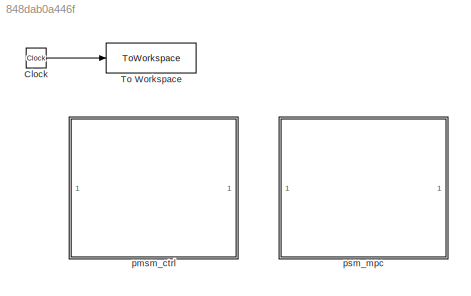
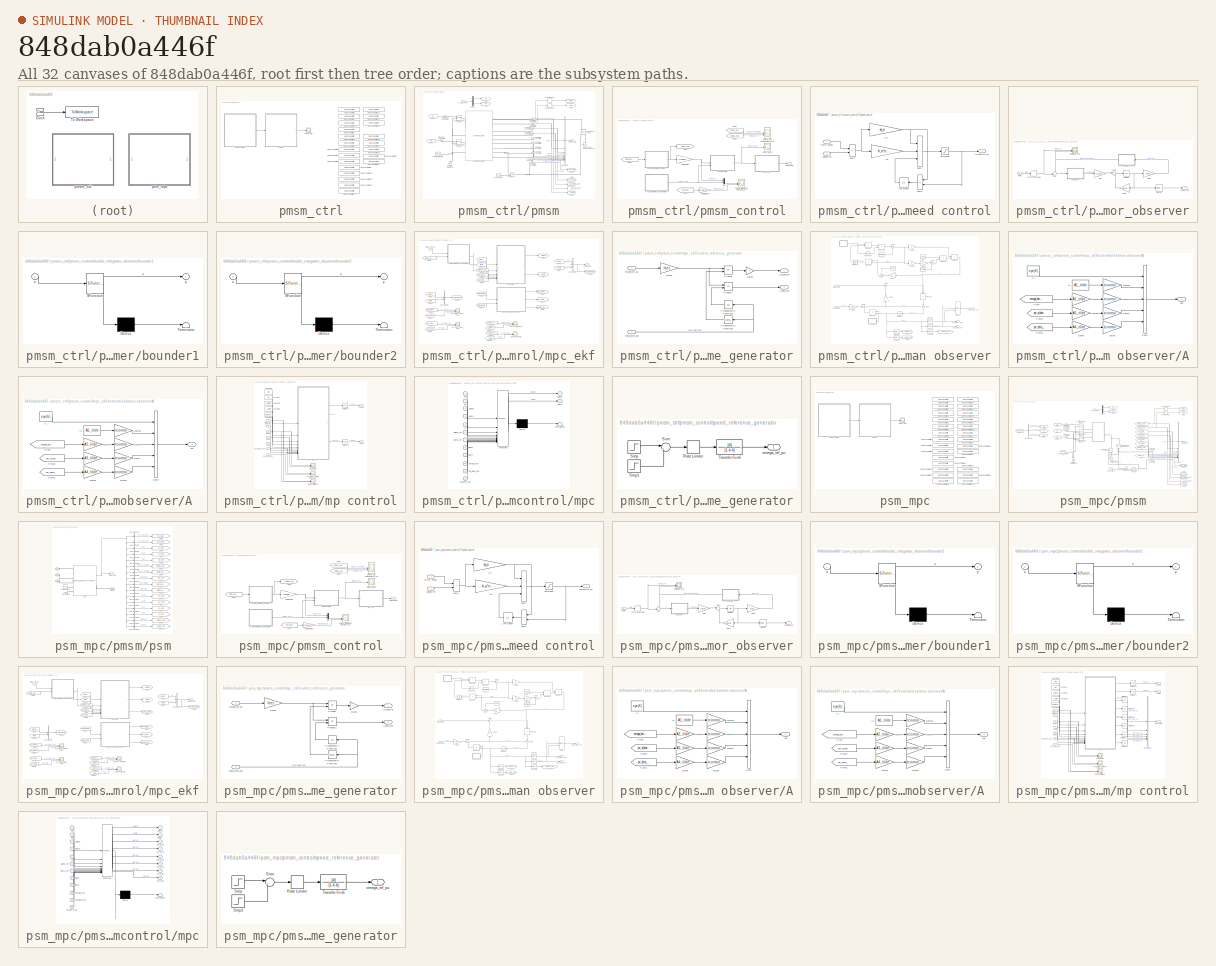
[diagram: thumbnail index - all 32 canvases of the model, root first then tree order]
MODEL slx_848dab0a446f
KIND model
CONFIG AbsTol = auto
CONFIG EnableMultiTasking = off
CONFIG FixedStep = tsample
CONFIG MaxStep = ts
CONFIG MinStep = auto
CONFIG RelTol = auto
CONFIG SampleTimeConstraint = Unconstrained
CONFIG SolverName = ode23tb
CONFIG StartTime = 0.0
CONFIG StopTime = simlength
BLOCK [Clock] Clock
BLOCK [ToWorkspace] To Workspace
  FixptAsFi = on
  MaxDataPoints = Nc
  SampleTime = ts
  VariableName = t
BLOCK [SubSystem] pmsm_ctrl
BLOCK [GotoTagVisibility] pmsm_ctrl/Goto Tag Visibility
  GotoTag = tau_load
BLOCK [GotoTagVisibility] pmsm_ctrl/Goto Tag Visibility1
  GotoTag = psi_alpha
BLOCK [GotoTagVisibility] pmsm_ctrl/Goto Tag Visibility10
  GotoTag = omega_hat
BLOCK [GotoTagVisibility] pmsm_ctrl/Goto Tag Visibility11
  GotoTag = omega_hat_kalman
BLOCK [GotoTagVisibility] pmsm_ctrl/Goto Tag Visibility12
  GotoTag = ualpha
BLOCK [GotoTagVisibility] pmsm_ctrl/Goto Tag Visibility13
  GotoTag = ubeta
BLOCK [GotoTagVisibility] pmsm_ctrl/Goto Tag Visibility14
  GotoTag = psi_alpha_hat
BLOCK [GotoTagVisibility] pmsm_ctrl/Goto Tag Visibility15
  GotoTag = psi_beta_hat
BLOCK [GotoTagVisibility] pmsm_ctrl/Goto Tag Visibility16
  GotoTag = ualphabeta
BLOCK [GotoTagVisibility] pmsm_ctrl/Goto Tag Visibility17
  GotoTag = ua
BLOCK [GotoTagVisibility] pmsm_ctrl/Goto Tag Visibility18
  GotoTag = ub
BLOCK [GotoTagVisibility] pmsm_ctrl/Goto Tag Visibility19
  GotoTag = ialphabeta
BLOCK [GotoTagVisibility] pmsm_ctrl/Goto Tag Visibility2
  GotoTag = i_alpha
BLOCK [GotoTagVisibility] pmsm_ctrl/Goto Tag Visibility24
  GotoTag = i_alpha_hat
BLOCK [GotoTagVisibility] pmsm_ctrl/Goto Tag Visibility25
  GotoTag = i_beta_hat
BLOCK [GotoTagVisibility] pmsm_ctrl/Goto Tag Visibility3
  GotoTag = psi_beta
BLOCK [GotoTagVisibility] pmsm_ctrl/Goto Tag Visibility4
  GotoTag = i_beta
BLOCK [GotoTagVisibility] pmsm_ctrl/Goto Tag Visibility5
  GotoTag = u_a
BLOCK [GotoTagVisibility] pmsm_ctrl/Goto Tag Visibility6
  GotoTag = u_b
BLOCK [GotoTagVisibility] pmsm_ctrl/Goto Tag Visibility7
  GotoTag = ialpha
BLOCK [GotoTagVisibility] pmsm_ctrl/Goto Tag Visibility8
  GotoTag = ibeta
BLOCK [GotoTagVisibility] pmsm_ctrl/Goto Tag Visibility9
  GotoTag = theta_elec_hat
BLOCK [SubSystem] pmsm_ctrl/pmsm
BLOCK [BusCreator] pmsm_ctrl/pmsm/Bus Creator
  DisplayOption = bar
  InheritFromInputs = on
  Inputs = 10
BLOCK [Reference] pmsm_ctrl/pmsm/Controlled Voltage Source  REF=fl_lib/Electrical/Electrical Sources/Controlled Voltage
Source
  SourceBlock = fl_lib/Electrical/Electrical Sources/Controlled Voltage\nSource
  SourceType = Controlled Voltage\nSource
BLOCK [Reference] pmsm_ctrl/pmsm/Controlled Voltage Source1  REF=fl_lib/Electrical/Electrical Sources/Controlled Voltage
Source
  SourceBlock = fl_lib/Electrical/Electrical Sources/Controlled Voltage\nSource
  SourceType = Controlled Voltage\nSource
BLOCK [Demux] pmsm_ctrl/pmsm/Demux
  Outputs = 2
BLOCK [Reference] pmsm_ctrl/pmsm/Electrical Reference  REF=fl_lib/Electrical/Electrical Elements/Electrical Reference
  NameLocation = right
  SourceBlock = fl_lib/Electrical/Electrical Elements/Electrical Reference
  SourceType = Electrical Reference
BLOCK [From] pmsm_ctrl/pmsm/From1
  GotoTag = ub
  TagVisibility = scoped
BLOCK [From] pmsm_ctrl/pmsm/From2
  GotoTag = ua
  TagVisibility = scoped
BLOCK [Goto] pmsm_ctrl/pmsm/Goto
  GotoTag = ub
  TagVisibility = scoped
BLOCK [Goto] pmsm_ctrl/pmsm/Goto1
  GotoTag = ua
  NameLocation = top
  TagVisibility = scoped
BLOCK [Goto] pmsm_ctrl/pmsm/Goto2
  GotoTag = tau_load
  NameLocation = right
  TagVisibility = scoped
BLOCK [Goto] pmsm_ctrl/pmsm/Goto3
  GotoTag = psi_alpha
  NameLocation = right
  TagVisibility = scoped
BLOCK [Goto] pmsm_ctrl/pmsm/Goto4
  GotoTag = psi_beta
  NameLocation = right
  TagVisibility = scoped
BLOCK [Goto] pmsm_ctrl/pmsm/Goto5
  GotoTag = i_alpha
  NameLocation = right
  TagVisibility = scoped
BLOCK [Goto] pmsm_ctrl/pmsm/Goto6
  GotoTag = i_beta
  NameLocation = right
  TagVisibility = scoped
BLOCK [Goto] pmsm_ctrl/pmsm/Goto7
  GotoTag = ialpha
  TagVisibility = scoped
BLOCK [Goto] pmsm_ctrl/pmsm/Goto8
  GotoTag = ibeta
  TagVisibility = scoped
BLOCK [Reference] pmsm_ctrl/pmsm/Ideal Torque Source  REF=fl_lib/Mechanical/Mechanical Sources/Ideal Torque Source
  NameLocation = right
  SourceBlock = fl_lib/Mechanical/Mechanical Sources/Ideal Torque Source
  SourceType = Ideal Torque Source
BLOCK [Reference] pmsm_ctrl/pmsm/Mechanical Rotational Reference2  REF=fl_lib/Mechanical/Rotational Elements/Mechanical
Rotational Reference
  NameLocation = right
  SourceBlock = fl_lib/Mechanical/Rotational Elements/Mechanical\nRotational Reference
  SourceType = Mechanical\nRotational Reference
BLOCK [Reference] pmsm_ctrl/pmsm/PS Constant  REF=fl_lib/Physical Signals/Sources/PS Constant
  SourceBlock = fl_lib/Physical Signals/Sources/PS Constant
  SourceType = PS Constant
BLOCK [Reference] pmsm_ctrl/pmsm/PS Product  REF=fl_lib/Physical Signals/Functions/PS Product
  SourceBlock = fl_lib/Physical Signals/Functions/PS Product
  SourceType = PS Product
BLOCK [Reference] pmsm_ctrl/pmsm/PS-Simulink Converter  REF=nesl_utility/PS-Simulink
Converter
  SourceBlock = nesl_utility/PS-Simulink\nConverter
  SourceType = PS-Simulink\nConverter
BLOCK [Reference] pmsm_ctrl/pmsm/PS-Simulink Converter1  REF=nesl_utility/PS-Simulink
Converter
  SourceBlock = nesl_utility/PS-Simulink\nConverter
  SourceType = PS-Simulink\nConverter
BLOCK [Reference] pmsm_ctrl/pmsm/PS-Simulink Converter2  REF=nesl_utility/PS-Simulink
Converter
  SourceBlock = nesl_utility/PS-Simulink\nConverter
  SourceType = PS-Simulink\nConverter
BLOCK [Reference] pmsm_ctrl/pmsm/PS-Simulink Converter3  REF=nesl_utility/PS-Simulink
Converter
  NameLocation = top
  SourceBlock = nesl_utility/PS-Simulink\nConverter
  SourceType = PS-Simulink\nConverter
BLOCK [Reference] pmsm_ctrl/pmsm/PS-Simulink Converter4  REF=nesl_utility/PS-Simulink
Converter
  NameLocation = top
  SourceBlock = nesl_utility/PS-Simulink\nConverter
  SourceType = PS-Simulink\nConverter
BLOCK [Reference] pmsm_ctrl/pmsm/PS-Simulink Converter5  REF=nesl_utility/PS-Simulink
Converter
  SourceBlock = nesl_utility/PS-Simulink\nConverter
  SourceType = PS-Simulink\nConverter
BLOCK [Reference] pmsm_ctrl/pmsm/PS-Simulink Converter6  REF=nesl_utility/PS-Simulink
Converter
  NameLocation = top
  SourceBlock = nesl_utility/PS-Simulink\nConverter
  SourceType = PS-Simulink\nConverter
BLOCK [Reference] pmsm_ctrl/pmsm/PS-Simulink Converter7  REF=nesl_utility/PS-Simulink
Converter
  NameLocation = top
  SourceBlock = nesl_utility/PS-Simulink\nConverter
  SourceType = PS-Simulink\nConverter
BLOCK [Reference] pmsm_ctrl/pmsm/PS-Simulink Converter8  REF=nesl_utility/PS-Simulink
Converter
  NameLocation = top
  SourceBlock = nesl_utility/PS-Simulink\nConverter
  SourceType = PS-Simulink\nConverter
BLOCK [Reference] pmsm_ctrl/pmsm/PS-Simulink Converter9  REF=nesl_utility/PS-Simulink
Converter
  SourceBlock = nesl_utility/PS-Simulink\nConverter
  SourceType = PS-Simulink\nConverter
BLOCK [Reference] pmsm_ctrl/pmsm/Simulink-PS Converter2  REF=nesl_utility/Simulink-PS
Converter
  SourceBlock = nesl_utility/Simulink-PS\nConverter
  SourceType = Simulink-PS\nConverter
BLOCK [Reference] pmsm_ctrl/pmsm/Simulink-PS Converter3  REF=nesl_utility/Simulink-PS
Converter
  SourceBlock = nesl_utility/Simulink-PS\nConverter
  SourceType = Simulink-PS\nConverter
BLOCK [Reference] pmsm_ctrl/pmsm/Solver Configuration1  REF=nesl_utility/Solver
Configuration
  SourceBlock = nesl_utility/Solver\nConfiguration
  SourceType = Solver\nConfiguration
BLOCK [ZeroOrderHold] pmsm_ctrl/pmsm/Zero-Order Hold
  SampleTime = tcontrol
BLOCK [ZeroOrderHold] pmsm_ctrl/pmsm/Zero-Order Hold1
  SampleTime = tcontrol
BLOCK [Reference] pmsm_ctrl/pmsm/pmsm alpha beta  REF=pmsm_alphabeta_lib/pmsm alpha beta
  SourceBlock = pmsm_alphabeta_lib/pmsm alpha beta
  SourceType = pmsm alpha beta
BLOCK [Outport] pmsm_ctrl/pmsm/pmsm_data
BLOCK [Inport] pmsm_ctrl/pmsm/u_alphabeta
BLOCK [SubSystem] pmsm_ctrl/pmsm_control
BLOCK [From] pmsm_ctrl/pmsm_control/From
  GotoTag = tau_load
  NameLocation = top
  TagVisibility = scoped
BLOCK [From] pmsm_ctrl/pmsm_control/From1
  GotoTag = omega_hat_kalman
  TagVisibility = scoped
BLOCK [From] pmsm_ctrl/pmsm_control/From2
  GotoTag = omega_hat
  TagVisibility = scoped
BLOCK [From] pmsm_ctrl/pmsm_control/From3
  GotoTag = theta_elec_hat
  TagVisibility = scoped
BLOCK [Goto] pmsm_ctrl/pmsm_control/Goto1
  GotoTag = omega_hat
  TagVisibility = scoped
BLOCK [Mux] pmsm_ctrl/pmsm_control/Mux
  DisplayOption = bar
  Inputs = 2
BLOCK [SubSystem] pmsm_ctrl/pmsm_control/Speed control
BLOCK [Gain] pmsm_ctrl/pmsm_control/Speed control/1//Ti
  Gain = kp_w
  OutDataTypeStr = Inherit: Same as input
  ParamDataTypeStr = Inherit: Same as input
  SaturateOnIntegerOverflow = on
BLOCK [Inport] pmsm_ctrl/pmsm_control/Speed control/Rotor speed
BLOCK [Saturate] pmsm_ctrl/pmsm_control/Speed control/Saturation
  LowerLimit = -1.5
  UpperLimit = 1.5
BLOCK [Inport] pmsm_ctrl/pmsm_control/Speed control/Speed ref
  Port = 2
BLOCK [Sum] pmsm_ctrl/pmsm_control/Speed control/Sum1
  IconShape = rectangular
  Inputs = +++
  SaturateOnIntegerOverflow = on
BLOCK [Sum] pmsm_ctrl/pmsm_control/Speed control/Sum2
  IconShape = rectangular
  Inputs = -+
  SaturateOnIntegerOverflow = on
BLOCK [Sum] pmsm_ctrl/pmsm_control/Speed control/Sum3
  IconShape = rectangular
  Inputs = -+
  NameLocation = top
  SaturateOnIntegerOverflow = on
BLOCK [UnitDelay] pmsm_ctrl/pmsm_control/Speed control/Unit Delay4
  HasFrameUpgradeWarning = on
  SampleTime = tcontrol
BLOCK [Gain] pmsm_ctrl/pmsm_control/Speed control/kp
  Gain = ki_w*tcontrol
  OutDataTypeStr = Inherit: Same as input
  ParamDataTypeStr = Inherit: Same as input
  SaturateOnIntegerOverflow = on
BLOCK [Outport] pmsm_ctrl/pmsm_control/Speed control/torque_ref_pu
BLOCK [SubSystem] pmsm_ctrl/pmsm_control/double_integrator_observer
BLOCK [Gain] pmsm_ctrl/pmsm_control/double_integrator_observer/Gain
  Gain = Ldrso
  Multiplication = Matrix(K*u)
BLOCK [Gain] pmsm_ctrl/pmsm_control/double_integrator_observer/Gain1
  Gain = Adrso
  Multiplication = Matrix(K*u)
  NameLocation = top
BLOCK [Gain] pmsm_ctrl/pmsm_control/double_integrator_observer/Gain2
  Gain = Crso
  Multiplication = Matrix(K*u)
BLOCK [Selector] pmsm_ctrl/pmsm_control/double_integrator_observer/Selector
  IndexOptions = Index vector (dialog)
  Indices = 2
  InputPortWidth = 2
  OutputSizes = 1
BLOCK [Sum] pmsm_ctrl/pmsm_control/double_integrator_observer/Sum
  Inputs = -+|
BLOCK [Sum] pmsm_ctrl/pmsm_control/double_integrator_observer/Sum1
  Inputs = |++
BLOCK [UnitDelay] pmsm_ctrl/pmsm_control/double_integrator_observer/Unit Delay
  HasFrameUpgradeWarning = on
  SampleTime = tcontrol
BLOCK [ZeroOrderHold] pmsm_ctrl/pmsm_control/double_integrator_observer/Zero-Order Hold
  SampleTime = tcontrol
BLOCK [SubSystem] pmsm_ctrl/pmsm_control/double_integrator_observer/bounder1
  ErrorFcn = Stateflow.Translate.translate
  PermitHierarchicalResolution = ExplicitOnly
  SFBlockType = MATLAB Function
  SystemSampleTime = tcontrol
  TreatAsAtomicUnit = on
  TreatAsGroupedWhenPropagatingVariantConditions = off
BLOCK [Demux] pmsm_ctrl/pmsm_control/double_integrator_observer/bounder1/ Demux 
  Outputs = 1
BLOCK [S-Function] pmsm_ctrl/pmsm_control/double_integrator_observer/bounder1/ SFunction 
  EnableBusSupport = off
  FunctionName = sf_sfun
  PortCounts = [1 2]
  SFcnIsStateOwnerBlock = off
  SFunctionDeploymentMode = off
  Tag = Stateflow S-Function 1
BLOCK [Terminator] pmsm_ctrl/pmsm_control/double_integrator_observer/bounder1/ Terminator 
BLOCK [Inport] pmsm_ctrl/pmsm_control/double_integrator_observer/bounder1/u
BLOCK [Outport] pmsm_ctrl/pmsm_control/double_integrator_observer/bounder1/y
  VectorParamsAs1DForOutWhenUnconnected = off
BLOCK [SubSystem] pmsm_ctrl/pmsm_control/double_integrator_observer/bounder2
  ErrorFcn = Stateflow.Translate.translate
  PermitHierarchicalResolution = ExplicitOnly
  SFBlockType = MATLAB Function
  SystemSampleTime = tcontrol
  TreatAsAtomicUnit = on
  TreatAsGroupedWhenPropagatingVariantConditions = off
BLOCK [Demux] pmsm_ctrl/pmsm_control/double_integrator_observer/bounder2/ Demux 
  Outputs = 1
BLOCK [S-Function] pmsm_ctrl/pmsm_control/double_integrator_observer/bounder2/ SFunction 
  EnableBusSupport = off
  FunctionName = sf_sfun
  PortCounts = [1 2]
  SFcnIsStateOwnerBlock = off
  SFunctionDeploymentMode = off
  Tag = Stateflow S-Function 3
BLOCK [Terminator] pmsm_ctrl/pmsm_control/double_integrator_observer/bounder2/ Terminator 
BLOCK [Inport] pmsm_ctrl/pmsm_control/double_integrator_observer/bounder2/u
BLOCK [Outport] pmsm_ctrl/pmsm_control/double_integrator_observer/bounder2/y
  VectorParamsAs1DForOutWhenUnconnected = off
BLOCK [Outport] pmsm_ctrl/pmsm_control/double_integrator_observer/omega_hat
BLOCK [Inport] pmsm_ctrl/pmsm_control/double_integrator_observer/theta
BLOCK [Scope] pmsm_ctrl/pmsm_control/double_integrator_observer/theta//theta_hat
  ActiveDisplayYMaximum = 3.92696
  ActiveDisplayYMinimum = -3.92697
  DataLoggingVariableName = ScopeData3
  Floating = off
  GraphicalSettings = {"Style":{"BackgroundColor":[0.12941176470588237,0.12941176470588237,0.12941176470588237],"AxesColor":[0.07058823529411765,0.07058823529411765,0.07058823529411765],"LabelsColor":[0.8509803921568627,0.8509803921568627,0.8509803921568627],"PreserveColors":false,"Visible":[true,true],"LineStyle":["-","-"],"LineWidth":[1.5,1.5],"BarWidth":[0.9,0.9],"LineColor":["auto","auto"],"LineFaceAlpha":[1,1],"Li...<+2074ch>
  MultipleDisplayCache = [{"MaxYLimMag":3.92697,"MaxYLimReal":3.92696,"MinYLimMag":0,"MinYLimReal":-3.92697,"PlotAsMagnitudePhase":false,"ShowGrid":true,"ShowLegend":false,"Title":"%<SignalLabel>","YLabel":""}]
  NumInputPorts = 2
  SampleTime = ts
  ScopeFrameLocation = window
  WasSavedAsWebScope = on
  WindowPosition = [398.000000,408.000000,560.000000,420.000000,]
BLOCK [SubSystem] pmsm_ctrl/pmsm_control/mpc_ekf
BLOCK [BusCreator] pmsm_ctrl/pmsm_control/mpc_ekf/Bus Creator1
  DisplayOption = bar
  InheritFromInputs = on
  Inputs = 2
BLOCK [BusCreator] pmsm_ctrl/pmsm_control/mpc_ekf/Bus Creator2
  DisplayOption = bar
  InheritFromInputs = on
  Inputs = 2
BLOCK [From] pmsm_ctrl/pmsm_control/mpc_ekf/From
  GotoTag = ualpha
  TagVisibility = scoped
BLOCK [From] pmsm_ctrl/pmsm_control/mpc_ekf/From1
  GotoTag = ubeta
  TagVisibility = scoped
BLOCK [From] pmsm_ctrl/pmsm_control/mpc_ekf/From10
  GotoTag = psi_beta_hat
  TagVisibility = scoped
BLOCK [From] pmsm_ctrl/pmsm_control/mpc_ekf/From11
  GotoTag = ialpha
  TagVisibility = scoped
BLOCK [From] pmsm_ctrl/pmsm_control/mpc_ekf/From12
  GotoTag = ibeta
  TagVisibility = scoped
BLOCK [From] pmsm_ctrl/pmsm_control/mpc_ekf/From13
  GotoTag = omega_hat
  TagVisibility = scoped
BLOCK [From] pmsm_ctrl/pmsm_control/mpc_ekf/From14
  GotoTag = i_alpha
  TagVisibility = scoped
BLOCK [From] pmsm_ctrl/pmsm_control/mpc_ekf/From15
  GotoTag = i_beta
  TagVisibility = scoped
BLOCK [From] pmsm_ctrl/pmsm_control/mpc_ekf/From16
  GotoTag = ibeta
  TagVisibility = scoped
BLOCK [From] pmsm_ctrl/pmsm_control/mpc_ekf/From17
  GotoTag = ialphabeta
  TagVisibility = scoped
BLOCK [From] pmsm_ctrl/pmsm_control/mpc_ekf/From18
  GotoTag = i_alpha_hat
  TagVisibility = global
BLOCK [From] pmsm_ctrl/pmsm_control/mpc_ekf/From19
  GotoTag = i_beta_hat
  TagVisibility = global
BLOCK [From] pmsm_ctrl/pmsm_control/mpc_ekf/From2
  GotoTag = ualphabeta
  TagVisibility = scoped
BLOCK [From] pmsm_ctrl/pmsm_control/mpc_ekf/From3
  GotoTag = theta_elec_hat
  TagVisibility = scoped
BLOCK [From] pmsm_ctrl/pmsm_control/mpc_ekf/From4
  GotoTag = ialpha
  TagVisibility = scoped
BLOCK [From] pmsm_ctrl/pmsm_control/mpc_ekf/From5
  GotoTag = psi_alpha_hat
  TagVisibility = scoped
BLOCK [From] pmsm_ctrl/pmsm_control/mpc_ekf/From6
  GotoTag = psi_beta_hat
  TagVisibility = scoped
BLOCK [From] pmsm_ctrl/pmsm_control/mpc_ekf/From7
  GotoTag = psi_alpha_hat
  TagVisibility = scoped
BLOCK [From] pmsm_ctrl/pmsm_control/mpc_ekf/From8
  GotoTag = psi_alpha
  TagVisibility = scoped
BLOCK [From] pmsm_ctrl/pmsm_control/mpc_ekf/From9
  GotoTag = psi_beta
  TagVisibility = scoped
BLOCK [Goto] pmsm_ctrl/pmsm_control/mpc_ekf/Goto
  GotoTag = theta_elec_hat
  TagVisibility = scoped
BLOCK [Goto] pmsm_ctrl/pmsm_control/mpc_ekf/Goto1
  GotoTag = psi_beta_hat
  TagVisibility = scoped
BLOCK [Goto] pmsm_ctrl/pmsm_control/mpc_ekf/Goto10
  GotoTag = ialphabeta
  NameLocation = top
  TagVisibility = scoped
BLOCK [Goto] pmsm_ctrl/pmsm_control/mpc_ekf/Goto2
  GotoTag = ualpha
  NameLocation = top
  TagVisibility = scoped
BLOCK [Goto] pmsm_ctrl/pmsm_control/mpc_ekf/Goto3
  GotoTag = ubeta
  NameLocation = top
  TagVisibility = scoped
BLOCK [Goto] pmsm_ctrl/pmsm_control/mpc_ekf/Goto6
  GotoTag = psi_alpha_hat
  TagVisibility = scoped
BLOCK [Goto] pmsm_ctrl/pmsm_control/mpc_ekf/Goto9
  GotoTag = ualphabeta
  NameLocation = top
  TagVisibility = scoped
BLOCK [SubSystem] pmsm_ctrl/pmsm_control/mpc_ekf/current_reference_generator
BLOCK [Gain] pmsm_ctrl/pmsm_control/mpc_ekf/current_reference_generator/Gain5
  Gain = -1
BLOCK [Gain] pmsm_ctrl/pmsm_control/mpc_ekf/current_reference_generator/Gain6
  Gain = ibez
BLOCK [Product] pmsm_ctrl/pmsm_control/mpc_ekf/current_reference_generator/Product
BLOCK [Product] pmsm_ctrl/pmsm_control/mpc_ekf/current_reference_generator/Product1
BLOCK [Trigonometry] pmsm_ctrl/pmsm_control/mpc_ekf/current_reference_generator/Trigonometric Function1
  NameLocation = top
BLOCK [Trigonometry] pmsm_ctrl/pmsm_control/mpc_ekf/current_reference_generator/Trigonometric Function2
  NameLocation = top
  Operator = cos
BLOCK [Outport] pmsm_ctrl/pmsm_control/mpc_ekf/current_reference_generator/i_alpha_ref
BLOCK [Outport] pmsm_ctrl/pmsm_control/mpc_ekf/current_reference_generator/i_beta_ref
  Port = 2
BLOCK [Inport] pmsm_ctrl/pmsm_control/mpc_ekf/current_reference_generator/theta_elec_hat
  Port = 2
BLOCK [Inport] pmsm_ctrl/pmsm_control/mpc_ekf/current_reference_generator/torque_ref_pu
BLOCK [SubSystem] pmsm_ctrl/pmsm_control/mpc_ekf/extended kalman observer
BLOCK [SubSystem] pmsm_ctrl/pmsm_control/mpc_ekf/extended kalman observer/A
  NameLocation = top
BLOCK [SubSystem] pmsm_ctrl/pmsm_control/mpc_ekf/extended kalman observer/A 
BLOCK [From] pmsm_ctrl/pmsm_control/mpc_ekf/extended kalman observer/A /From
  GotoTag = omega_hat_kalman
  TagVisibility = scoped
BLOCK [From] pmsm_ctrl/pmsm_control/mpc_ekf/extended kalman observer/A /From1
  GotoTag = psi_beta_hat
  TagVisibility = scoped
BLOCK [From] pmsm_ctrl/pmsm_control/mpc_ekf/extended kalman observer/A /From2
  GotoTag = psi_alpha_hat
  TagVisibility = scoped
BLOCK [Gain] pmsm_ctrl/pmsm_control/mpc_ekf/extended kalman observer/A /Gain1
  Gain = A2_tilde
  NameLocation = top
BLOCK [Gain] pmsm_ctrl/pmsm_control/mpc_ekf/extended kalman observer/A /Gain11
  Gain = tcontrol
  NameLocation = top
BLOCK [Gain] pmsm_ctrl/pmsm_control/mpc_ekf/extended kalman observer/A /Gain2
  Gain = tcontrol
  NameLocation = top
BLOCK [Gain] pmsm_ctrl/pmsm_control/mpc_ekf/extended kalman observer/A /Gain3
  Gain = A3_tilde
  NameLocation = top
BLOCK [Gain] pmsm_ctrl/pmsm_control/mpc_ekf/extended kalman observer/A /Gain4
  Gain = tcontrol
  NameLocation = top
BLOCK [Gain] pmsm_ctrl/pmsm_control/mpc_ekf/extended kalman observer/A /Gain5
  Gain = A4_tilde
  NameLocation = top
BLOCK [Gain] pmsm_ctrl/pmsm_control/mpc_ekf/extended kalman observer/A /Gain6
  Gain = tcontrol
  NameLocation = top
BLOCK [Constant] pmsm_ctrl/pmsm_control/mpc_ekf/extended kalman observer/A /I1
  NameLocation = top
  Value = eye(6)
BLOCK [Constant] pmsm_ctrl/pmsm_control/mpc_ekf/extended kalman observer/A /I2
  NameLocation = top
  Value = A1_tilde
BLOCK [Sum] pmsm_ctrl/pmsm_control/mpc_ekf/extended kalman observer/A /Sum7
  IconShape = rectangular
  Inputs = +++++
BLOCK [Outport] pmsm_ctrl/pmsm_control/mpc_ekf/extended kalman observer/A /out
BLOCK [From] pmsm_ctrl/pmsm_control/mpc_ekf/extended kalman observer/A/From
  GotoTag = omega_hat_kalman
  TagVisibility = scoped
BLOCK [From] pmsm_ctrl/pmsm_control/mpc_ekf/extended kalman observer/A/From1
  GotoTag = psi_beta_hat
  TagVisibility = scoped
BLOCK [From] pmsm_ctrl/pmsm_control/mpc_ekf/extended kalman observer/A/From2
  GotoTag = psi_alpha_hat
  TagVisibility = scoped
BLOCK [Gain] pmsm_ctrl/pmsm_control/mpc_ekf/extended kalman observer/A/Gain1
  Gain = A2_tilde
  NameLocation = top
BLOCK [Gain] pmsm_ctrl/pmsm_control/mpc_ekf/extended kalman observer/A/Gain11
  Gain = tcontrol
  NameLocation = top
BLOCK [Gain] pmsm_ctrl/pmsm_control/mpc_ekf/extended kalman observer/A/Gain2
  Gain = tcontrol
  NameLocation = top
BLOCK [Gain] pmsm_ctrl/pmsm_control/mpc_ekf/extended kalman observer/A/Gain3
  Gain = A3_tilde
  NameLocation = top
BLOCK [Gain] pmsm_ctrl/pmsm_control/mpc_ekf/extended kalman observer/A/Gain4
  Gain = tcontrol
  NameLocation = top
BLOCK [Gain] pmsm_ctrl/pmsm_control/mpc_ekf/extended kalman observer/A/Gain5
  Gain = A4_tilde
  NameLocation = top
BLOCK [Gain] pmsm_ctrl/pmsm_control/mpc_ekf/extended kalman observer/A/Gain6
  Gain = tcontrol
  NameLocation = top
BLOCK [Constant] pmsm_ctrl/pmsm_control/mpc_ekf/extended kalman observer/A/I1
  NameLocation = top
  Value = eye(6)
BLOCK [Constant] pmsm_ctrl/pmsm_control/mpc_ekf/extended kalman observer/A/I2
  NameLocation = top
  Value = A1_tilde
BLOCK [Sum] pmsm_ctrl/pmsm_control/mpc_ekf/extended kalman observer/A/Sum7
  IconShape = rectangular
  Inputs = +++++
BLOCK [Outport] pmsm_ctrl/pmsm_control/mpc_ekf/extended kalman observer/A/out
BLOCK [Trigonometry] pmsm_ctrl/pmsm_control/mpc_ekf/extended kalman observer/Atan2
  Operator = atan2
BLOCK [Gain] pmsm_ctrl/pmsm_control/mpc_ekf/extended kalman observer/Gain1
  Gain = C
  Multiplication = Matrix(u*K)
  NameLocation = top
BLOCK [Gain] pmsm_ctrl/pmsm_control/mpc_ekf/extended kalman observer/Gain10
  Gain = C'
  Multiplication = Matrix(u*K)
BLOCK [Gain] pmsm_ctrl/pmsm_control/mpc_ekf/extended kalman observer/Gain5
  Gain = Bd
  Multiplication = Matrix(K*u)
BLOCK [Gain] pmsm_ctrl/pmsm_control/mpc_ekf/extended kalman observer/Gain6
  Gain = C
  Multiplication = Matrix(K*u)
  NameLocation = right
BLOCK [Gain] pmsm_ctrl/pmsm_control/mpc_ekf/extended kalman observer/Gain8
  Gain = C'
  Multiplication = Matrix(u*K)
BLOCK [Gain] pmsm_ctrl/pmsm_control/mpc_ekf/extended kalman observer/Gain9
  Gain = C
  Multiplication = Matrix(K*u)
BLOCK [Goto] pmsm_ctrl/pmsm_control/mpc_ekf/extended kalman observer/Goto
  GotoTag = omega_hat_kalman
  TagVisibility = scoped
BLOCK [Goto] pmsm_ctrl/pmsm_control/mpc_ekf/extended kalman observer/Goto1
  GotoTag = i_beta_hat
  TagVisibility = global
BLOCK [Goto] pmsm_ctrl/pmsm_control/mpc_ekf/extended kalman observer/Goto3
  GotoTag = i_alpha_hat
  TagVisibility = global
BLOCK [Constant] pmsm_ctrl/pmsm_control/mpc_ekf/extended kalman observer/I
  Value = eye(6)
BLOCK [Product] pmsm_ctrl/pmsm_control/mpc_ekf/extended kalman observer/Product
  Multiplication = Matrix(*)
BLOCK [Product] pmsm_ctrl/pmsm_control/mpc_ekf/extended kalman observer/Product1
  Multiplication = Matrix(*)
  NameLocation = left
BLOCK [Product] pmsm_ctrl/pmsm_control/mpc_ekf/extended kalman observer/Product2
  Multiplication = Matrix(*)
  NameLocation = top
BLOCK [Product] pmsm_ctrl/pmsm_control/mpc_ekf/extended kalman observer/Product3
  Inputs = */
  Multiplication = Matrix(*)
BLOCK [Product] pmsm_ctrl/pmsm_control/mpc_ekf/extended kalman observer/Product4
  Multiplication = Matrix(*)
  NameLocation = top
BLOCK [Product] pmsm_ctrl/pmsm_control/mpc_ekf/extended kalman observer/Product5
  Multiplication = Matrix(*)
BLOCK [Product] pmsm_ctrl/pmsm_control/mpc_ekf/extended kalman observer/Product6
  Multiplication = Matrix(*)
BLOCK [Constant] pmsm_ctrl/pmsm_control/mpc_ekf/extended kalman observer/Q
  Value = Qkalman
BLOCK [Constant] pmsm_ctrl/pmsm_control/mpc_ekf/extended kalman observer/R
  Value = Rkalman
BLOCK [Constant] pmsm_ctrl/pmsm_control/mpc_ekf/extended kalman observer/R1
  Value = eye(2)
BLOCK [Selector] pmsm_ctrl/pmsm_control/mpc_ekf/extended kalman observer/Selector
  IndexOptions = Index vector (dialog)
  Indices = 3
  InputPortWidth = 6
  OutputSizes = 1
BLOCK [Selector] pmsm_ctrl/pmsm_control/mpc_ekf/extended kalman observer/Selector1
  IndexOptions = Index vector (dialog)
  Indices = 4
  InputPortWidth = 6
  OutputSizes = 1
BLOCK [Selector] pmsm_ctrl/pmsm_control/mpc_ekf/extended kalman observer/Selector2
  IndexOptions = Index vector (dialog)
  Indices = 6
  InputPortWidth = 6
  OutputSizes = 1
BLOCK [Selector] pmsm_ctrl/pmsm_control/mpc_ekf/extended kalman observer/Selector3
  IndexOptions = Index vector (dialog)
  Indices = 1
  InputPortWidth = 6
  OutputSizes = 1
BLOCK [Selector] pmsm_ctrl/pmsm_control/mpc_ekf/extended kalman observer/Selector4
  IndexOptions = Index vector (dialog)
  Indices = 2
  InputPortWidth = 6
  OutputSizes = 1
BLOCK [Sum] pmsm_ctrl/pmsm_control/mpc_ekf/extended kalman observer/Sum1
  Inputs = |+-
BLOCK [Sum] pmsm_ctrl/pmsm_control/mpc_ekf/extended kalman observer/Sum2
  Inputs = +-|
  NameLocation = top
BLOCK [Sum] pmsm_ctrl/pmsm_control/mpc_ekf/extended kalman observer/Sum3
  Inputs = |++
BLOCK [Sum] pmsm_ctrl/pmsm_control/mpc_ekf/extended kalman observer/Sum4
  Inputs = |++
BLOCK [Sum] pmsm_ctrl/pmsm_control/mpc_ekf/extended kalman observer/Sum5
  Inputs = |++
BLOCK [Sum] pmsm_ctrl/pmsm_control/mpc_ekf/extended kalman observer/Sum6
  Inputs = ++|
  NameLocation = left
BLOCK [Math] pmsm_ctrl/pmsm_control/mpc_ekf/extended kalman observer/Transpose
  Operator = transpose
BLOCK [UnitDelay] pmsm_ctrl/pmsm_control/mpc_ekf/extended kalman observer/Unit Delay1
  HasFrameUpgradeWarning = on
  InitialCondition = [0 0 tcontrol tcontrol 0 0]
  SampleTime = tcontrol
BLOCK [UnitDelay] pmsm_ctrl/pmsm_control/mpc_ekf/extended kalman observer/Unit Delay2
  HasFrameUpgradeWarning = on
  SampleTime = tcontrol
BLOCK [Inport] pmsm_ctrl/pmsm_control/mpc_ekf/extended kalman observer/ialphabeta
  Port = 2
BLOCK [Outport] pmsm_ctrl/pmsm_control/mpc_ekf/extended kalman observer/psi_alpha_hat
BLOCK [Outport] pmsm_ctrl/pmsm_control/mpc_ekf/extended kalman observer/psi_beta_hat
  Port = 2
BLOCK [Outport] pmsm_ctrl/pmsm_control/mpc_ekf/extended kalman observer/theta_elec_hat
  Port = 3
BLOCK [Inport] pmsm_ctrl/pmsm_control/mpc_ekf/extended kalman observer/ualphabeta
BLOCK [Scope] pmsm_ctrl/pmsm_control/mpc_ekf/i_alpha_hat//i_alpha
  ActiveDisplayYMaximum = 1473.77669
  ActiveDisplayYMinimum = -1380.23399
  DataLoggingVariableName = ScopeData4
  Floating = off
  GraphicalSettings = {"AxesScalingProperties":{"AlignXAxis":"Center","AlignYAxis":"Center","AutoScaleXAxisLimits":false,"AxesScaling":"Manual","AxesScalingNumUpdates":10,"ExpandOnly":true,"ScaleAxesLimitsAtStop":false,"XAxisDataRange":100,"YAxisDataRange":80},"DisplayProperties":{"ColorOrder":["auto","auto","auto","auto","auto","auto","auto","auto","auto","auto","auto","auto","auto","auto","auto","auto","auto","auto",...<+2083ch>
  MultipleDisplayCache = [{"MaxYLimMag":1473.77669,"MaxYLimReal":1473.77669,"MinYLimMag":0,"MinYLimReal":-1380.23399,"PlotAsMagnitudePhase":false,"ShowGrid":true,"ShowLegend":false,"Title":"%<SignalLabel>","YLabel":""}]
  NumInputPorts = 2
  SampleTime = ts
  ScopeFrameLocation = window
  WasSavedAsWebScope = on
  WindowPosition = [744.000000,330.000000,560.000000,420.000000,]
BLOCK [Scope] pmsm_ctrl/pmsm_control/mpc_ekf/i_beta_hat//i_beta
  ActiveDisplayYMaximum = 1049.3108922598913
  ActiveDisplayYMinimum = 610.865414775854
  DataLoggingVariableName = ScopeData5
  Floating = off
  GraphicalSettings = {"Style":{"BackgroundColor":[0.12941176470588237,0.12941176470588237,0.12941176470588237],"AxesColor":[0.07058823529411765,0.07058823529411765,0.07058823529411765],"LabelsColor":[0.8509803921568627,0.8509803921568627,0.8509803921568627],"PreserveColors":false,"Visible":[true,true],"LineStyle":["-","-"],"LineWidth":[1.5,1.5],"BarWidth":[0.9,0.9],"LineColor":["auto","auto"],"LineFaceAlpha":[1,1],"Li...<+2114ch>
  MultipleDisplayCache = [{"MaxYLimMag":1284.7723523902077,"MaxYLimReal":1049.3108922598913,"MinYLimMag":0,"MinYLimReal":610.865414775854,"PlotAsMagnitudePhase":false,"ShowGrid":true,"ShowLegend":false,"Title":"%<SignalLabel>","YLabel":""}]
  NumInputPorts = 2
  SampleTime = ts
  ScopeFrameLocation = window
  WasSavedAsWebScope = on
  WindowPosition = [737.000000,253.000000,560.000000,420.000000,]
BLOCK [SubSystem] pmsm_ctrl/pmsm_control/mpc_ekf/mp control
BLOCK [Constant] pmsm_ctrl/pmsm_control/mpc_ekf/mp control/Constant
  Value = Rs
BLOCK [Constant] pmsm_ctrl/pmsm_control/mpc_ekf/mp control/Constant1
  Value = Lalpha
BLOCK [Constant] pmsm_ctrl/pmsm_control/mpc_ekf/mp control/Constant2
  Value = Lbeta
BLOCK [Constant] pmsm_ctrl/pmsm_control/mpc_ekf/mp control/Constant3
  Value = Vdc
BLOCK [Constant] pmsm_ctrl/pmsm_control/mpc_ekf/mp control/Constant4
  Value = tcontrol
BLOCK [UnitDelay] pmsm_ctrl/pmsm_control/mpc_ekf/mp control/Unit Delay1
  HasFrameUpgradeWarning = on
  SampleTime = tcontrol
BLOCK [UnitDelay] pmsm_ctrl/pmsm_control/mpc_ekf/mp control/Unit Delay3
  HasFrameUpgradeWarning = on
  SampleTime = tcontrol
BLOCK [Inport] pmsm_ctrl/pmsm_control/mpc_ekf/mp control/ialpha
  Port = 3
BLOCK [Scope] pmsm_ctrl/pmsm_control/mpc_ekf/mp control/ialpha//ibeta
  ActiveDisplayYMaximum = 1131.79846
  ActiveDisplayYMinimum = -1333.37712
  DataLoggingVariableName = ScopeData1
  Floating = off
  GraphicalSettings = {"GraphicalSettings":{"LegacySettings":true,"Style":{"AxesScalingProperties":{"ScaleAxesLimitsAtStop":false},"Style":{"AxesColor":"[0 0 0]","ChannelNames":[""],"ColorOrder":"[1 1 0.0666666666666667;0.0745098039215686 0.623529411764706 1;1 0.411764705882353 0.16078431372549;0.392156862745098 0.831372549019608 0.0745098039215686;0.717647058823529 0.274509803921569 1;0.0588235294117647 1 1;1 0.074509...<+465ch>
  MultipleDisplayCache = [{"MaxYLimMag":1333.37712,"MaxYLimReal":1131.79846,"MinYLimMag":0,"MinYLimReal":-1333.37712,"PlotAsMagnitudePhase":false,"ShowGrid":true,"ShowLegend":false,"Title":"%<SignalLabel>","YLabel":""}]
  NumInputPorts = 2
  SampleTime = ts
  WasSavedAsWebScope = on
BLOCK [Inport] pmsm_ctrl/pmsm_control/mpc_ekf/mp control/ialpha_ref
BLOCK [Scope] pmsm_ctrl/pmsm_control/mpc_ekf/mp control/ialpha_ref//ialpha
  ActiveDisplayYMaximum = 1306.53939
  ActiveDisplayYMinimum = -1306.22726
  DataLoggingVariableName = ScopeData2
  Floating = off
  GraphicalSettings = {"GraphicalSettings":{"LegacySettings":true,"Style":{"AxesScalingProperties":{"ScaleAxesLimitsAtStop":false},"Style":{"AxesColor":"[0 0 0]","ChannelNames":[""],"ColorOrder":"[1 1 0.0666666666666667;0.0745098039215686 0.623529411764706 1;1 0.411764705882353 0.16078431372549;0.392156862745098 0.831372549019608 0.0745098039215686;0.717647058823529 0.274509803921569 1;0.0588235294117647 1 1;1 0.074509...<+454ch>
  MultipleDisplayCache = [{"MaxYLimMag":1306.53939,"MaxYLimReal":1306.53939,"MinYLimMag":0,"MinYLimReal":-1306.22726,"PlotAsMagnitudePhase":false,"ShowGrid":true,"ShowLegend":false,"Title":"%<SignalLabel>","YLabel":""}]
  NumInputPorts = 2
  SampleTime = ts
  WasSavedAsWebScope = on
  WindowPosition = [2322 534 560 420]
BLOCK [Inport] pmsm_ctrl/pmsm_control/mpc_ekf/mp control/ibeta
  Port = 4
BLOCK [Inport] pmsm_ctrl/pmsm_control/mpc_ekf/mp control/ibeta_ref
  Port = 2
BLOCK [SubSystem] pmsm_ctrl/pmsm_control/mpc_ekf/mp control/mpc
  ErrorFcn = Stateflow.Translate.translate
  PermitHierarchicalResolution = ExplicitOnly
  SFBlockType = MATLAB Function
  SystemSampleTime = tcontrol
  TreatAsAtomicUnit = on
  TreatAsGroupedWhenPropagatingVariantConditions = off
BLOCK [Demux] pmsm_ctrl/pmsm_control/mpc_ekf/mp control/mpc/ Demux 
  Outputs = 1
BLOCK [S-Function] pmsm_ctrl/pmsm_control/mpc_ekf/mp control/mpc/ SFunction 
  EnableBusSupport = off
  FunctionName = sf_sfun
  PortCounts = [12 3]
  SFcnIsStateOwnerBlock = off
  SFunctionDeploymentMode = off
  Tag = Stateflow S-Function 4
BLOCK [Terminator] pmsm_ctrl/pmsm_control/mpc_ekf/mp control/mpc/ Terminator 
BLOCK [Inport] pmsm_ctrl/pmsm_control/mpc_ekf/mp control/mpc/Lalpha
  Port = 3
BLOCK [Inport] pmsm_ctrl/pmsm_control/mpc_ekf/mp control/mpc/Lbeta
  Port = 4
BLOCK [Inport] pmsm_ctrl/pmsm_control/mpc_ekf/mp control/mpc/Rs
  Port = 2
BLOCK [Inport] pmsm_ctrl/pmsm_control/mpc_ekf/mp control/mpc/ialpha
  Port = 8
BLOCK [Inport] pmsm_ctrl/pmsm_control/mpc_ekf/mp control/mpc/ialpha_ref
  Port = 6
BLOCK [Inport] pmsm_ctrl/pmsm_control/mpc_ekf/mp control/mpc/ibeta
  Port = 9
BLOCK [Inport] pmsm_ctrl/pmsm_control/mpc_ekf/mp control/mpc/ibeta_ref
  Port = 7
BLOCK [Inport] pmsm_ctrl/pmsm_control/mpc_ekf/mp control/mpc/omega_hat
  Port = 10
BLOCK [Inport] pmsm_ctrl/pmsm_control/mpc_ekf/mp control/mpc/psi_alpha_hat
  Port = 11
BLOCK [Inport] pmsm_ctrl/pmsm_control/mpc_ekf/mp control/mpc/psi_beta_hat
  Port = 12
BLOCK [Inport] pmsm_ctrl/pmsm_control/mpc_ekf/mp control/mpc/ts
  Port = 5
BLOCK [Outport] pmsm_ctrl/pmsm_control/mpc_ekf/mp control/mpc/ualpha
  VectorParamsAs1DForOutWhenUnconnected = off
BLOCK [Outport] pmsm_ctrl/pmsm_control/mpc_ekf/mp control/mpc/ubeta
  Port = 2
BLOCK [Inport] pmsm_ctrl/pmsm_control/mpc_ekf/mp control/mpc/vdc
BLOCK [Inport] pmsm_ctrl/pmsm_control/mpc_ekf/mp control/omega
  Port = 5
BLOCK [Inport] pmsm_ctrl/pmsm_control/mpc_ekf/mp control/psi_alpha_hat
  Port = 6
BLOCK [Scope] pmsm_ctrl/pmsm_control/mpc_ekf/mp control/psi_alpha_hat//psi_beta_hat
  ActiveDisplayYMaximum = 4.18301
  ActiveDisplayYMinimum = -4.74729
  DataLoggingVariableName = ScopeData1
  Floating = off
  GraphicalSettings = {"GraphicalSettings":{"LegacySettings":true,"Style":{"AxesScalingProperties":{"ScaleAxesLimitsAtStop":false},"Style":{"AxesColor":"[0 0 0]","ChannelNames":[""],"ColorOrder":"[1 1 0.0666666666666667;0.0745098039215686 0.623529411764706 1;1 0.411764705882353 0.16078431372549;0.392156862745098 0.831372549019608 0.0745098039215686;0.717647058823529 0.274509803921569 1;0.0588235294117647 1 1;1 0.074509...<+462ch>
  MultipleDisplayCache = [{"MaxYLimMag":4.74729,"MaxYLimReal":4.18301,"MinYLimMag":0,"MinYLimReal":-4.74729,"PlotAsMagnitudePhase":false,"ShowGrid":true,"ShowLegend":false,"Title":"%<SignalLabel>","YLabel":""}]
  NumInputPorts = 2
  SampleTime = ts
  WasSavedAsWebScope = on
BLOCK [Inport] pmsm_ctrl/pmsm_control/mpc_ekf/mp control/psi_beta_hat
  Port = 7
BLOCK [Outport] pmsm_ctrl/pmsm_control/mpc_ekf/mp control/ualpha
BLOCK [Outport] pmsm_ctrl/pmsm_control/mpc_ekf/mp control/ubeta
  Port = 2
BLOCK [Scope] pmsm_ctrl/pmsm_control/mpc_ekf/psi_alpha_hat//psi_alpha
  ActiveDisplayYMaximum = 2.7502552038903394
  ActiveDisplayYMinimum = -2.7502494573144358
  DataLoggingVariableName = ScopeData2
  Floating = off
  GraphicalSettings = {"AxesScalingProperties":{"AlignXAxis":"Center","AlignYAxis":"Center","AutoScaleXAxisLimits":false,"AxesScaling":"Manual","AxesScalingNumUpdates":10,"ExpandOnly":true,"ScaleAxesLimitsAtStop":false,"XAxisDataRange":100,"YAxisDataRange":80},"DisplayProperties":{"ColorOrder":["auto","auto","auto","auto","auto","auto","auto","auto","auto","auto","auto","auto","auto","auto","auto","auto","auto","auto",...<+2073ch>
  MultipleDisplayCache = [{"MaxYLimMag":2.7502552038903394,"MaxYLimReal":2.7502552038903394,"MinYLimMag":0,"MinYLimReal":-2.7502494573144358,"PlotAsMagnitudePhase":false,"ShowGrid":true,"ShowLegend":false,"Title":"%<SignalLabel>","YLabel":""}]
  NumInputPorts = 2
  SampleTime = ts
  ScopeFrameLocation = window
  WasSavedAsWebScope = on
  WindowPosition = [921.000000,170.000000,560.000000,420.000000,]
BLOCK [Scope] pmsm_ctrl/pmsm_control/mpc_ekf/psi_beta_hat//psi_beta
  ActiveDisplayYMaximum = 2.51194
  ActiveDisplayYMinimum = -2.51196
  DataLoggingVariableName = ScopeData3
  Floating = off
  GraphicalSettings = {"GraphicalSettings":{"LegacySettings":true,"Style":{"AxesScalingProperties":{"ScaleAxesLimitsAtStop":false},"Style":{"AxesColor":"[0 0 0]","ChannelNames":[""],"ColorOrder":"[1 1 0.0666666666666667;0.0745098039215686 0.623529411764706 1;1 0.411764705882353 0.16078431372549;0.392156862745098 0.831372549019608 0.0745098039215686;0.717647058823529 0.274509803921569 1;0.0588235294117647 1 1;1 0.074509...<+486ch>
  MultipleDisplayCache = [{"MaxYLimMag":2.51196,"MaxYLimReal":2.51194,"MinYLimMag":0,"MinYLimReal":-2.51196,"PlotAsMagnitudePhase":false,"ShowGrid":true,"ShowLegend":false,"Title":"%<SignalLabel>","YLabel":""}]
  NumInputPorts = 2
  SampleTime = ts
  WasSavedAsWebScope = on
BLOCK [Inport] pmsm_ctrl/pmsm_control/mpc_ekf/torque_ref_pu
BLOCK [Outport] pmsm_ctrl/pmsm_control/mpc_ekf/ualphabeta
  VectorParamsAs1DForOutWhenUnconnected = off
BLOCK [Gain] pmsm_ctrl/pmsm_control/normalization
  Gain = 1/omega_bez
BLOCK [Gain] pmsm_ctrl/pmsm_control/normalization1
  Gain = 1/tau_bez
BLOCK [Scope] pmsm_ctrl/pmsm_control/omega_hat_kalman//omega_hat
  ActiveDisplayYMaximum = 313.10699
  ActiveDisplayYMinimum = -304.159
  DataLoggingVariableName = ScopeData1
  Floating = off
  GraphicalSettings = {"Style":{"BackgroundColor":[0.12941176470588237,0.12941176470588237,0.12941176470588237],"AxesColor":[0.07058823529411765,0.07058823529411765,0.07058823529411765],"LabelsColor":[0.8509803921568627,0.8509803921568627,0.8509803921568627],"PreserveColors":false,"Visible":[true,true],"LineStyle":["-","-"],"LineWidth":[3,3],"BarWidth":[0.9,0.9],"LineColor":["auto","auto"],"LineFaceAlpha":[1,1],"LineEd...<+2074ch>
  MultipleDisplayCache = [{"MaxYLimMag":313.10699,"MaxYLimReal":313.10699,"MinYLimMag":0,"MinYLimReal":-304.159,"PlotAsMagnitudePhase":false,"ShowGrid":true,"ShowLegend":true,"Title":"%<SignalLabel>","YLabel":""}]
  NumInputPorts = 2
  SampleTime = tcontrol
  ScopeFrameLocation = window
  ShowLegend = on
  WasSavedAsWebScope = on
  WindowPosition = [234.000000,196.000000,854.000000,606.000000,]
BLOCK [Scope] pmsm_ctrl/pmsm_control/omega_ref//omega//torque load_pu
  ActiveDisplayYMaximum = 1.23758
  ActiveDisplayYMinimum = -1.08049
  DataLoggingVariableName = ScopeData3
  Floating = off
  GraphicalSettings = {"Style":{"BackgroundColor":[0.12941176470588237,0.12941176470588237,0.12941176470588237],"AxesColor":[0.07058823529411765,0.07058823529411765,0.07058823529411765],"LabelsColor":[0.8509803921568627,0.8509803921568627,0.8509803921568627],"PreserveColors":false,"Visible":[true,true,true],"LineStyle":["-","-","-"],"LineWidth":[3,3,3],"BarWidth":[0.9,0.9,0.9],"LineColor":["auto","auto","auto"],"LineFa...<+2182ch>
  MultipleDisplayCache = [{"MaxYLimMag":1.23758,"MaxYLimReal":1.23758,"MinYLimMag":0,"MinYLimReal":-1.08049,"PlotAsMagnitudePhase":false,"ShowGrid":true,"ShowLegend":true,"Title":"%<SignalLabel>","YLabel":""}]  <repeated x4 — deduplicated; at blocks: omega_ref/omega/torque load_pu, torque_ref_pu>
  NumInputPorts = 2
  SampleTime = tcontrol
  ScopeFrameLocation = window
  ShowLegend = on
  Visible = on
  WasSavedAsWebScope = on
  WindowPosition = [776.000000,392.000000,854.000000,606.000000,]
BLOCK [SubSystem] pmsm_ctrl/pmsm_control/speed_reference_generator
BLOCK [RateLimiter] pmsm_ctrl/pmsm_control/speed_reference_generator/Rate Limiter
  FallingSlewLimit = -0.25
  RisingSlewLimit = 0.25
  SampleTimeMode = inherited
BLOCK [Step] pmsm_ctrl/pmsm_control/speed_reference_generator/Step
  After = omega_m_sim/omega_m_bez
  SampleTime = 0
  Time = simlength/20
BLOCK [Step] pmsm_ctrl/pmsm_control/speed_reference_generator/Step1
  After = -2*omega_m_sim/omega_m_bez
  SampleTime = 0
  Time = simlength/2
BLOCK [Sum] pmsm_ctrl/pmsm_control/speed_reference_generator/Sum
  Inputs = |++
BLOCK [TransferFcn] pmsm_ctrl/pmsm_control/speed_reference_generator/Transfer Fcn6
  Denominator = [1 4 4]
  Numerator = [4]
BLOCK [Outport] pmsm_ctrl/pmsm_control/speed_reference_generator/omega_ref_pu
BLOCK [Scope] pmsm_ctrl/pmsm_control/torque_ref_pu
  ActiveDisplayYMaximum = 1.23758
  ActiveDisplayYMinimum = -1.08049
  DataLoggingVariableName = ScopeData1
  Floating = off
  GraphicalSettings = {"GraphicalSettings":{"LegacySettings":true,"Style":{"AxesScalingProperties":{"ScaleAxesLimitsAtStop":false},"Style":{"AxesColor":"[0 0 0]","ChannelNames":[""],"ColorOrder":"[1 1 0.0666666666666667;0.0745098039215686 0.623529411764706 1;1 0.411764705882353 0.16078431372549;0.392156862745098 0.831372549019608 0.0745098039215686;0.717647058823529 0.274509803921569 1;0.0588235294117647 1 1;1 0.074509...<+604ch>
  NumInputPorts = 1
  SampleTime = tcontrol
  ShowLegend = on
  WasSavedAsWebScope = on
BLOCK [Outport] pmsm_ctrl/pmsm_control/ualphabeta
  VectorParamsAs1DForOutWhenUnconnected = off
BLOCK [Scope] pmsm_ctrl/pmsm_data
  ActiveDisplayYMaximum = 8430.65022613591
  ActiveDisplayYMinimum = -7553.3407677630657
  Floating = off
  GraphicalSettings = {"Style":{"BackgroundColor":[0.12941176470588237,0.12941176470588237,0.12941176470588237],"AxesColor":[0.07058823529411765,0.07058823529411765,0.07058823529411765],"LabelsColor":[0.8509803921568627,0.8509803921568627,0.8509803921568627],"PreserveColors":false,"Visible":[true,true,false,false,false,false,false,false,false,false],"LineStyle":["-","-","-","-","-","-","-","-","-","-"],"LineWidth":[3,3...<+3193ch>
  LayoutDimensionsString = [1,1]
  MultipleDisplayCache = [{"MaxYLimMag":8430.65022613591,"MaxYLimReal":8430.65022613591,"MinYLimMag":0,"MinYLimReal":-7553.3407677630657,"PlotAsMagnitudePhase":false,"ShowGrid":true,"ShowLegend":true,"Title":"%<SignalLabel>","YLabel":""}]
  NumInputPorts = 1
  ScopeFrameLocation = window
  ShowLegend = on
  WasSavedAsWebScope = on
  WindowPosition = [1141.000000,426.000000,765.000000,561.000000,]
BLOCK [SubSystem] psm_mpc
BLOCK [GotoTagVisibility] psm_mpc/Goto Tag Visibility
  GotoTag = tau_load
BLOCK [GotoTagVisibility] psm_mpc/Goto Tag Visibility1
  GotoTag = psi_alpha
BLOCK [GotoTagVisibility] psm_mpc/Goto Tag Visibility10
  GotoTag = omega_hat
BLOCK [GotoTagVisibility] psm_mpc/Goto Tag Visibility11
  GotoTag = omega_hat_kalman
BLOCK [GotoTagVisibility] psm_mpc/Goto Tag Visibility12
  GotoTag = ualpha
BLOCK [GotoTagVisibility] psm_mpc/Goto Tag Visibility13
  GotoTag = ubeta
BLOCK [GotoTagVisibility] psm_mpc/Goto Tag Visibility14
  GotoTag = psi_alpha_hat
BLOCK [GotoTagVisibility] psm_mpc/Goto Tag Visibility15
  GotoTag = psi_beta_hat
BLOCK [GotoTagVisibility] psm_mpc/Goto Tag Visibility16
  GotoTag = ualphabeta
BLOCK [GotoTagVisibility] psm_mpc/Goto Tag Visibility17
  GotoTag = ua
BLOCK [GotoTagVisibility] psm_mpc/Goto Tag Visibility18
  GotoTag = ub
BLOCK [GotoTagVisibility] psm_mpc/Goto Tag Visibility19
  GotoTag = ialphabeta
BLOCK [GotoTagVisibility] psm_mpc/Goto Tag Visibility2
  GotoTag = i_alpha
BLOCK [GotoTagVisibility] psm_mpc/Goto Tag Visibility20
  GotoTag = cmd_gates
BLOCK [GotoTagVisibility] psm_mpc/Goto Tag Visibility21
  GotoTag = uu
BLOCK [GotoTagVisibility] psm_mpc/Goto Tag Visibility22
  GotoTag = uv
BLOCK [GotoTagVisibility] psm_mpc/Goto Tag Visibility23
  GotoTag = uw
BLOCK [GotoTagVisibility] psm_mpc/Goto Tag Visibility24
  GotoTag = i_alpha_hat
BLOCK [GotoTagVisibility] psm_mpc/Goto Tag Visibility25
  GotoTag = i_beta_hat
BLOCK [GotoTagVisibility] psm_mpc/Goto Tag Visibility3
  GotoTag = psi_beta
BLOCK [GotoTagVisibility] psm_mpc/Goto Tag Visibility4
  GotoTag = i_beta
BLOCK [GotoTagVisibility] psm_mpc/Goto Tag Visibility5
  GotoTag = u_a
BLOCK [GotoTagVisibility] psm_mpc/Goto Tag Visibility6
  GotoTag = u_b
BLOCK [GotoTagVisibility] psm_mpc/Goto Tag Visibility7
  GotoTag = ialpha
BLOCK [GotoTagVisibility] psm_mpc/Goto Tag Visibility8
  GotoTag = ibeta
BLOCK [GotoTagVisibility] psm_mpc/Goto Tag Visibility9
  GotoTag = theta_elec_hat
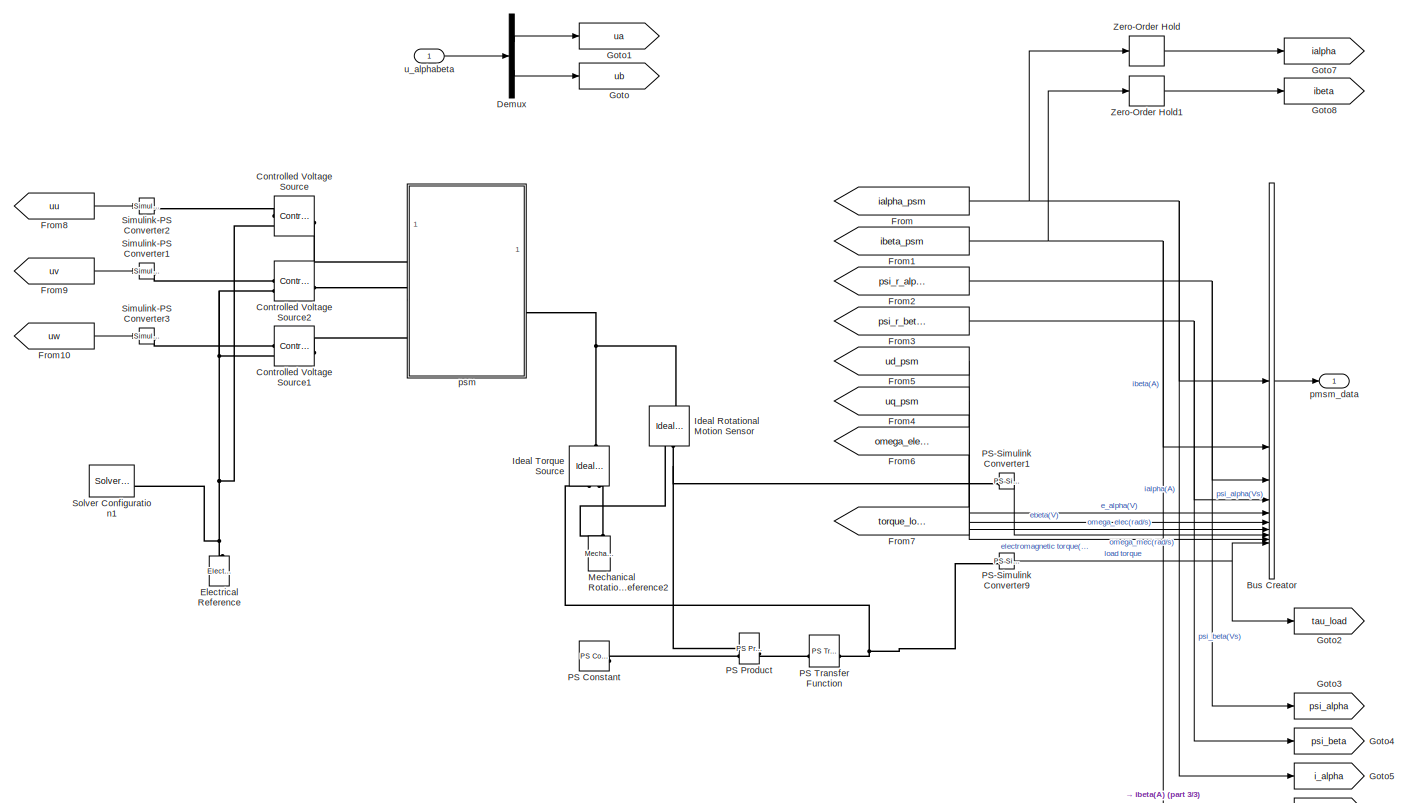
[diagram: psm_mpc/pmsm - part 1/3, most of the canvas]
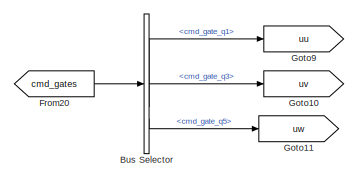
[diagram: psm_mpc/pmsm - part 2/3, middle left region]
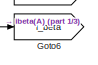
[diagram: psm_mpc/pmsm - part 3/3, bottom right region]
BLOCK [SubSystem] psm_mpc/pmsm
BLOCK [BusCreator] psm_mpc/pmsm/Bus Creator
  DisplayOption = bar
  InheritFromInputs = on
  Inputs = 10
BLOCK [BusSelector] psm_mpc/pmsm/Bus Selector
  OutputSignals = cmd_gate_q1,cmd_gate_q3,cmd_gate_q5
BLOCK [Reference] psm_mpc/pmsm/Controlled Voltage Source  REF=fl_lib/Electrical/Electrical Sources/Controlled Voltage
Source
  SourceBlock = fl_lib/Electrical/Electrical Sources/Controlled Voltage\nSource
  SourceType = Controlled Voltage\nSource
BLOCK [Reference] psm_mpc/pmsm/Controlled Voltage Source1  REF=fl_lib/Electrical/Electrical Sources/Controlled Voltage
Source
  SourceBlock = fl_lib/Electrical/Electrical Sources/Controlled Voltage\nSource
  SourceType = Controlled Voltage\nSource
BLOCK [Reference] psm_mpc/pmsm/Controlled Voltage Source2  REF=fl_lib/Electrical/Electrical Sources/Controlled Voltage
Source
  SourceBlock = fl_lib/Electrical/Electrical Sources/Controlled Voltage\nSource
  SourceType = Controlled Voltage\nSource
BLOCK [Demux] psm_mpc/pmsm/Demux
  Outputs = 2
BLOCK [Reference] psm_mpc/pmsm/Electrical Reference  REF=fl_lib/Electrical/Electrical Elements/Electrical Reference
  NameLocation = right
  SourceBlock = fl_lib/Electrical/Electrical Elements/Electrical Reference
  SourceType = Electrical Reference
BLOCK [From] psm_mpc/pmsm/From
  GotoTag = ialpha_psm
  TagVisibility = global
BLOCK [From] psm_mpc/pmsm/From1
  GotoTag = ibeta_psm
  TagVisibility = global
BLOCK [From] psm_mpc/pmsm/From10
  GotoTag = uw
  TagVisibility = scoped
BLOCK [From] psm_mpc/pmsm/From2
  GotoTag = psi_r_alpha_psm
  TagVisibility = global
BLOCK [From] psm_mpc/pmsm/From20
  GotoTag = cmd_gates
  TagVisibility = scoped
BLOCK [From] psm_mpc/pmsm/From3
  GotoTag = psi_r_beta_psm
  TagVisibility = global
BLOCK [From] psm_mpc/pmsm/From4
  GotoTag = uq_psm
  TagVisibility = global
BLOCK [From] psm_mpc/pmsm/From5
  GotoTag = ud_psm
  TagVisibility = global
BLOCK [From] psm_mpc/pmsm/From6
  GotoTag = omega_elec_psm
  TagVisibility = global
BLOCK [From] psm_mpc/pmsm/From7
  GotoTag = torque_load_psm
  TagVisibility = global
BLOCK [From] psm_mpc/pmsm/From8
  GotoTag = uu
  TagVisibility = scoped
BLOCK [From] psm_mpc/pmsm/From9
  GotoTag = uv
  TagVisibility = scoped
BLOCK [Goto] psm_mpc/pmsm/Goto
  GotoTag = ub
  TagVisibility = scoped
BLOCK [Goto] psm_mpc/pmsm/Goto1
  GotoTag = ua
  NameLocation = top
  TagVisibility = scoped
BLOCK [Goto] psm_mpc/pmsm/Goto10
  GotoTag = uv
  NameLocation = top
  TagVisibility = scoped
BLOCK [Goto] psm_mpc/pmsm/Goto11
  GotoTag = uw
  NameLocation = top
  TagVisibility = scoped
BLOCK [Goto] psm_mpc/pmsm/Goto2
  GotoTag = tau_load
  NameLocation = right
  TagVisibility = scoped
BLOCK [Goto] psm_mpc/pmsm/Goto3
  GotoTag = psi_alpha
  NameLocation = right
  TagVisibility = scoped
BLOCK [Goto] psm_mpc/pmsm/Goto4
  GotoTag = psi_beta
  NameLocation = right
  TagVisibility = scoped
BLOCK [Goto] psm_mpc/pmsm/Goto5
  GotoTag = i_alpha
  NameLocation = right
  TagVisibility = scoped
BLOCK [Goto] psm_mpc/pmsm/Goto6
  GotoTag = i_beta
  NameLocation = right
  TagVisibility = scoped
BLOCK [Goto] psm_mpc/pmsm/Goto7
  GotoTag = ialpha
  TagVisibility = scoped
BLOCK [Goto] psm_mpc/pmsm/Goto8
  GotoTag = ibeta
  TagVisibility = scoped
BLOCK [Goto] psm_mpc/pmsm/Goto9
  GotoTag = uu
  NameLocation = top
  TagVisibility = scoped
BLOCK [Reference] psm_mpc/pmsm/Ideal Rotational Motion Sensor  REF=fl_lib/Mechanical/Mechanical Sensors/Ideal Rotational
Motion Sensor
  NameLocation = left
  SourceBlock = fl_lib/Mechanical/Mechanical Sensors/Ideal Rotational\nMotion Sensor
  SourceType = Ideal Rotational\nMotion Sensor
BLOCK [Reference] psm_mpc/pmsm/Ideal Torque Source  REF=fl_lib/Mechanical/Mechanical Sources/Ideal Torque Source
  NameLocation = right
  SourceBlock = fl_lib/Mechanical/Mechanical Sources/Ideal Torque Source
  SourceType = Ideal Torque Source
BLOCK [Reference] psm_mpc/pmsm/Mechanical Rotational Reference2  REF=fl_lib/Mechanical/Rotational Elements/Mechanical
Rotational Reference
  NameLocation = right
  SourceBlock = fl_lib/Mechanical/Rotational Elements/Mechanical\nRotational Reference
  SourceType = Mechanical\nRotational Reference
BLOCK [Reference] psm_mpc/pmsm/PS Constant  REF=fl_lib/Physical Signals/Sources/PS Constant
  SourceBlock = fl_lib/Physical Signals/Sources/PS Constant
  SourceType = PS Constant
BLOCK [Reference] psm_mpc/pmsm/PS Product  REF=fl_lib/Physical Signals/Functions/PS Product
  SourceBlock = fl_lib/Physical Signals/Functions/PS Product
  SourceType = PS Product
BLOCK [Reference] psm_mpc/pmsm/PS Transfer Function  REF=fl_lib/Physical Signals/Linear Operators/PS Transfer Function
  SourceBlock = fl_lib/Physical Signals/Linear Operators/PS Transfer Function
  SourceType = PS Transfer Function
BLOCK [Reference] psm_mpc/pmsm/PS-Simulink Converter1  REF=nesl_utility/PS-Simulink
Converter
  SourceBlock = nesl_utility/PS-Simulink\nConverter
  SourceType = PS-Simulink\nConverter
BLOCK [Reference] psm_mpc/pmsm/PS-Simulink Converter9  REF=nesl_utility/PS-Simulink
Converter
  SourceBlock = nesl_utility/PS-Simulink\nConverter
  SourceType = PS-Simulink\nConverter
BLOCK [Reference] psm_mpc/pmsm/Simulink-PS Converter1  REF=nesl_utility/Simulink-PS
Converter
  SourceBlock = nesl_utility/Simulink-PS\nConverter
  SourceType = Simulink-PS\nConverter
BLOCK [Reference] psm_mpc/pmsm/Simulink-PS Converter2  REF=nesl_utility/Simulink-PS
Converter
  SourceBlock = nesl_utility/Simulink-PS\nConverter
  SourceType = Simulink-PS\nConverter
BLOCK [Reference] psm_mpc/pmsm/Simulink-PS Converter3  REF=nesl_utility/Simulink-PS
Converter
  SourceBlock = nesl_utility/Simulink-PS\nConverter
  SourceType = Simulink-PS\nConverter
BLOCK [Reference] psm_mpc/pmsm/Solver Configuration1  REF=nesl_utility/Solver
Configuration
  SourceBlock = nesl_utility/Solver\nConfiguration
  SourceType = Solver\nConfiguration
BLOCK [ZeroOrderHold] psm_mpc/pmsm/Zero-Order Hold
  SampleTime = tcontrol
BLOCK [ZeroOrderHold] psm_mpc/pmsm/Zero-Order Hold1
  SampleTime = tcontrol
BLOCK [Outport] psm_mpc/pmsm/pmsm_data
BLOCK [SubSystem] psm_mpc/pmsm/psm
BLOCK [BusSelector] psm_mpc/pmsm/psm/Bus Selector
  OutputSignals = psi_r_alpha (Vs)
BLOCK [BusSelector] psm_mpc/pmsm/psm/Bus Selector1
  OutputSignals = psi_r_alpha (Vs)
BLOCK [BusSelector] psm_mpc/pmsm/psm/Bus Selector10
  OutputSignals = uq (V)
BLOCK [BusSelector] psm_mpc/pmsm/psm/Bus Selector11
  OutputSignals = ud (V)
BLOCK [BusSelector] psm_mpc/pmsm/psm/Bus Selector12
  OutputSignals = iq (A)
BLOCK [BusSelector] psm_mpc/pmsm/psm/Bus Selector13
  OutputSignals = id (A)
BLOCK [BusSelector] psm_mpc/pmsm/psm/Bus Selector14
  OutputSignals = ialpha (A)
BLOCK [BusSelector] psm_mpc/pmsm/psm/Bus Selector15
  OutputSignals = ibeta (A)
BLOCK [BusSelector] psm_mpc/pmsm/psm/Bus Selector2
  OutputSignals = iu (A)
BLOCK [BusSelector] psm_mpc/pmsm/psm/Bus Selector3
  OutputSignals = iv (A)
BLOCK [BusSelector] psm_mpc/pmsm/psm/Bus Selector4
  OutputSignals = iw (A)
BLOCK [BusSelector] psm_mpc/pmsm/psm/Bus Selector5
  OutputSignals = omega_elec (rad/s)
BLOCK [BusSelector] psm_mpc/pmsm/psm/Bus Selector6
  OutputSignals = phase_elec (rad)
BLOCK [BusSelector] psm_mpc/pmsm/psm/Bus Selector7
  OutputSignals = pwr_in (kW)
BLOCK [BusSelector] psm_mpc/pmsm/psm/Bus Selector8
  OutputSignals = pwr_out (kW)
BLOCK [BusSelector] psm_mpc/pmsm/psm/Bus Selector9
  OutputSignals = torque (Nm)
BLOCK [Goto] psm_mpc/pmsm/psm/Goto1
  GotoTag = omega_elec_psm
  TagVisibility = global
BLOCK [Goto] psm_mpc/pmsm/psm/Goto10
  GotoTag = torque_load_psm
  TagVisibility = global
BLOCK [Goto] psm_mpc/pmsm/psm/Goto11
  GotoTag = ud_psm
  TagVisibility = global
BLOCK [Goto] psm_mpc/pmsm/psm/Goto12
  GotoTag = uq_psm
  TagVisibility = global
BLOCK [Goto] psm_mpc/pmsm/psm/Goto13
  GotoTag = ibeta_psm
  TagVisibility = global
BLOCK [Goto] psm_mpc/pmsm/psm/Goto14
  GotoTag = ialpha_psm
  TagVisibility = global
BLOCK [Goto] psm_mpc/pmsm/psm/Goto16
  GotoTag = pin_psm
  TagVisibility = global
BLOCK [Goto] psm_mpc/pmsm/psm/Goto17
  GotoTag = pwr_out_psm
  TagVisibility = global
BLOCK [Goto] psm_mpc/pmsm/psm/Goto2
  GotoTag = theta_elec_psm
  TagVisibility = global
BLOCK [Goto] psm_mpc/pmsm/psm/Goto3
  GotoTag = id_psm
  TagVisibility = global
BLOCK [Goto] psm_mpc/pmsm/psm/Goto4
  GotoTag = iq_psm
  TagVisibility = global
BLOCK [Goto] psm_mpc/pmsm/psm/Goto5
  GotoTag = psi_r_alpha_psm
  TagVisibility = global
BLOCK [Goto] psm_mpc/pmsm/psm/Goto6
  GotoTag = iu_psm
  TagVisibility = global
BLOCK [Goto] psm_mpc/pmsm/psm/Goto7
  GotoTag = iv_psm
  TagVisibility = global
BLOCK [Goto] psm_mpc/pmsm/psm/Goto8
  GotoTag = iw_psm
  TagVisibility = global
BLOCK [Goto] psm_mpc/pmsm/psm/Goto9
  GotoTag = psi_r_beta_psm
  TagVisibility = global
BLOCK [Reference] psm_mpc/pmsm/psm/Open Circuit  REF=fl_lib/Electrical/Electrical Elements/Open Circuit
  SourceBlock = fl_lib/Electrical/Electrical Elements/Open Circuit
  SourceType = Open Circuit
BLOCK [Reference] psm_mpc/pmsm/psm/PS Constant  REF=fl_lib/Physical Signals/Sources/PS Constant
  SourceBlock = fl_lib/Physical Signals/Sources/PS Constant
  SourceType = PS Constant
BLOCK [Outport] psm_mpc/pmsm/psm/motor_data
BLOCK [Reference] psm_mpc/pmsm/psm/psm  REF=permanent_magnet_synchronous_machine/permanent_magnet_synchronous_machine  (lib defined in slx_d9222de9c5b1)
  SourceBlock = permanent_magnet_synchronous_machine/permanent_magnet_synchronous_machine
BLOCK [PMIOPort] psm_mpc/pmsm/psm/shaft
  Side = Right
BLOCK [PMIOPort] psm_mpc/pmsm/psm/u
  Port = 2
  Side = Left
BLOCK [PMIOPort] psm_mpc/pmsm/psm/v
  Port = 3
  Side = Left
BLOCK [PMIOPort] psm_mpc/pmsm/psm/w
  Port = 4
  Side = Left
BLOCK [Inport] psm_mpc/pmsm/u_alphabeta
BLOCK [SubSystem] psm_mpc/pmsm_control
BLOCK [From] psm_mpc/pmsm_control/From
  GotoTag = tau_load
  NameLocation = top
  TagVisibility = scoped
BLOCK [From] psm_mpc/pmsm_control/From1
  GotoTag = omega_hat_kalman
  TagVisibility = scoped
BLOCK [From] psm_mpc/pmsm_control/From2
  GotoTag = omega_hat
  TagVisibility = scoped
BLOCK [From] psm_mpc/pmsm_control/From3
  GotoTag = theta_elec_hat
  TagVisibility = scoped
BLOCK [Goto] psm_mpc/pmsm_control/Goto1
  GotoTag = omega_hat
  TagVisibility = scoped
BLOCK [Mux] psm_mpc/pmsm_control/Mux
  DisplayOption = bar
  Inputs = 2
BLOCK [SubSystem] psm_mpc/pmsm_control/Speed control
BLOCK [Gain] psm_mpc/pmsm_control/Speed control/1//Ti
  Gain = kp_w
  OutDataTypeStr = Inherit: Same as input
  ParamDataTypeStr = Inherit: Same as input
  SaturateOnIntegerOverflow = on
BLOCK [Inport] psm_mpc/pmsm_control/Speed control/Rotor speed
BLOCK [Saturate] psm_mpc/pmsm_control/Speed control/Saturation
  LowerLimit = -1.5
  UpperLimit = 1.5
BLOCK [Inport] psm_mpc/pmsm_control/Speed control/Speed ref
  Port = 2
BLOCK [Sum] psm_mpc/pmsm_control/Speed control/Sum1
  IconShape = rectangular
  Inputs = +++
  SaturateOnIntegerOverflow = on
BLOCK [Sum] psm_mpc/pmsm_control/Speed control/Sum2
  IconShape = rectangular
  Inputs = -+
  SaturateOnIntegerOverflow = on
BLOCK [Sum] psm_mpc/pmsm_control/Speed control/Sum3
  IconShape = rectangular
  Inputs = -+
  NameLocation = top
  SaturateOnIntegerOverflow = on
BLOCK [UnitDelay] psm_mpc/pmsm_control/Speed control/Unit Delay4
  HasFrameUpgradeWarning = on
  SampleTime = tcontrol
BLOCK [Gain] psm_mpc/pmsm_control/Speed control/kp
  Gain = ki_w*tcontrol
  OutDataTypeStr = Inherit: Same as input
  ParamDataTypeStr = Inherit: Same as input
  SaturateOnIntegerOverflow = on
BLOCK [Outport] psm_mpc/pmsm_control/Speed control/torque_ref_pu
BLOCK [SubSystem] psm_mpc/pmsm_control/double_integrator_observer
BLOCK [Gain] psm_mpc/pmsm_control/double_integrator_observer/Gain
  Gain = Ldrso
  Multiplication = Matrix(K*u)
BLOCK [Gain] psm_mpc/pmsm_control/double_integrator_observer/Gain1
  Gain = Adrso
  Multiplication = Matrix(K*u)
  NameLocation = top
BLOCK [Gain] psm_mpc/pmsm_control/double_integrator_observer/Gain2
  Gain = Crso
  Multiplication = Matrix(K*u)
BLOCK [Selector] psm_mpc/pmsm_control/double_integrator_observer/Selector
  IndexOptions = Index vector (dialog)
  Indices = 2
  InputPortWidth = 2
  OutputSizes = 1
BLOCK [Sum] psm_mpc/pmsm_control/double_integrator_observer/Sum
  Inputs = -+|
BLOCK [Sum] psm_mpc/pmsm_control/double_integrator_observer/Sum1
  Inputs = |++
BLOCK [UnitDelay] psm_mpc/pmsm_control/double_integrator_observer/Unit Delay
  HasFrameUpgradeWarning = on
  SampleTime = tcontrol
BLOCK [ZeroOrderHold] psm_mpc/pmsm_control/double_integrator_observer/Zero-Order Hold
  SampleTime = tcontrol
BLOCK [SubSystem] psm_mpc/pmsm_control/double_integrator_observer/bounder1
  ErrorFcn = Stateflow.Translate.translate
  PermitHierarchicalResolution = ExplicitOnly
  SFBlockType = MATLAB Function
  SystemSampleTime = tcontrol
  TreatAsAtomicUnit = on
  TreatAsGroupedWhenPropagatingVariantConditions = off
BLOCK [Demux] psm_mpc/pmsm_control/double_integrator_observer/bounder1/ Demux 
  Outputs = 1
BLOCK [S-Function] psm_mpc/pmsm_control/double_integrator_observer/bounder1/ SFunction 
  EnableBusSupport = off
  FunctionName = sf_sfun
  PortCounts = [1 2]
  SFcnIsStateOwnerBlock = off
  SFunctionDeploymentMode = off
  Tag = Stateflow S-Function 2
BLOCK [Terminator] psm_mpc/pmsm_control/double_integrator_observer/bounder1/ Terminator 
BLOCK [Inport] psm_mpc/pmsm_control/double_integrator_observer/bounder1/u
BLOCK [Outport] psm_mpc/pmsm_control/double_integrator_observer/bounder1/y
  VectorParamsAs1DForOutWhenUnconnected = off
BLOCK [SubSystem] psm_mpc/pmsm_control/double_integrator_observer/bounder2
  ErrorFcn = Stateflow.Translate.translate
  PermitHierarchicalResolution = ExplicitOnly
  SFBlockType = MATLAB Function
  SystemSampleTime = tcontrol
  TreatAsAtomicUnit = on
  TreatAsGroupedWhenPropagatingVariantConditions = off
BLOCK [Demux] psm_mpc/pmsm_control/double_integrator_observer/bounder2/ Demux 
  Outputs = 1
BLOCK [S-Function] psm_mpc/pmsm_control/double_integrator_observer/bounder2/ SFunction 
  EnableBusSupport = off
  FunctionName = sf_sfun
  PortCounts = [1 2]
  SFcnIsStateOwnerBlock = off
  SFunctionDeploymentMode = off
  Tag = Stateflow S-Function 5
BLOCK [Terminator] psm_mpc/pmsm_control/double_integrator_observer/bounder2/ Terminator 
BLOCK [Inport] psm_mpc/pmsm_control/double_integrator_observer/bounder2/u
BLOCK [Outport] psm_mpc/pmsm_control/double_integrator_observer/bounder2/y
  VectorParamsAs1DForOutWhenUnconnected = off
BLOCK [Outport] psm_mpc/pmsm_control/double_integrator_observer/omega_hat
BLOCK [Inport] psm_mpc/pmsm_control/double_integrator_observer/theta
BLOCK [Scope] psm_mpc/pmsm_control/double_integrator_observer/theta//theta_hat
  ActiveDisplayYMaximum = 3.92696
  ActiveDisplayYMinimum = -3.92697
  DataLoggingVariableName = ScopeData3
  Floating = off
  GraphicalSettings = {"Style":{"BackgroundColor":[0.12941176470588237,0.12941176470588237,0.12941176470588237],"AxesColor":[0.07058823529411765,0.07058823529411765,0.07058823529411765],"LabelsColor":[0.8509803921568627,0.8509803921568627,0.8509803921568627],"PreserveColors":false,"Visible":[true,true],"LineStyle":["-","-"],"LineWidth":[1.5,1.5],"BarWidth":[0.9,0.9],"LineColor":["auto","auto"],"LineFaceAlpha":[1,1],"Li...<+2074ch>
  MultipleDisplayCache = [{"MaxYLimMag":3.92697,"MaxYLimReal":3.92696,"MinYLimMag":0,"MinYLimReal":-3.92697,"PlotAsMagnitudePhase":false,"ShowGrid":true,"ShowLegend":false,"Title":"%<SignalLabel>","YLabel":""}]
  NumInputPorts = 2
  SampleTime = ts
  ScopeFrameLocation = window
  WasSavedAsWebScope = on
  WindowPosition = [398.000000,408.000000,560.000000,420.000000,]
BLOCK [SubSystem] psm_mpc/pmsm_control/mpc_ekf
BLOCK [BusCreator] psm_mpc/pmsm_control/mpc_ekf/Bus Creator1
  DisplayOption = bar
  InheritFromInputs = on
  Inputs = 2
BLOCK [BusCreator] psm_mpc/pmsm_control/mpc_ekf/Bus Creator2
  DisplayOption = bar
  InheritFromInputs = on
  Inputs = 2
BLOCK [From] psm_mpc/pmsm_control/mpc_ekf/From
  GotoTag = ualpha
  TagVisibility = scoped
BLOCK [From] psm_mpc/pmsm_control/mpc_ekf/From1
  GotoTag = ubeta
  TagVisibility = scoped
BLOCK [From] psm_mpc/pmsm_control/mpc_ekf/From10
  GotoTag = psi_beta_hat
  TagVisibility = scoped
BLOCK [From] psm_mpc/pmsm_control/mpc_ekf/From11
  GotoTag = ialpha
  TagVisibility = scoped
BLOCK [From] psm_mpc/pmsm_control/mpc_ekf/From12
  GotoTag = ibeta
  TagVisibility = scoped
BLOCK [From] psm_mpc/pmsm_control/mpc_ekf/From13
  GotoTag = omega_hat
  TagVisibility = scoped
BLOCK [From] psm_mpc/pmsm_control/mpc_ekf/From14
  GotoTag = i_alpha
  TagVisibility = scoped
BLOCK [From] psm_mpc/pmsm_control/mpc_ekf/From15
  GotoTag = i_beta
  TagVisibility = scoped
BLOCK [From] psm_mpc/pmsm_control/mpc_ekf/From16
  GotoTag = ibeta
  TagVisibility = scoped
BLOCK [From] psm_mpc/pmsm_control/mpc_ekf/From17
  GotoTag = ialphabeta
  TagVisibility = scoped
BLOCK [From] psm_mpc/pmsm_control/mpc_ekf/From18
  GotoTag = i_alpha_hat
  TagVisibility = scoped
BLOCK [From] psm_mpc/pmsm_control/mpc_ekf/From19
  GotoTag = i_beta_hat
  TagVisibility = scoped
BLOCK [From] psm_mpc/pmsm_control/mpc_ekf/From2
  GotoTag = ualphabeta
  TagVisibility = scoped
BLOCK [From] psm_mpc/pmsm_control/mpc_ekf/From3
  GotoTag = theta_elec_hat
  TagVisibility = scoped
BLOCK [From] psm_mpc/pmsm_control/mpc_ekf/From4
  GotoTag = ialpha
  TagVisibility = scoped
BLOCK [From] psm_mpc/pmsm_control/mpc_ekf/From5
  GotoTag = psi_alpha_hat
  TagVisibility = scoped
BLOCK [From] psm_mpc/pmsm_control/mpc_ekf/From6
  GotoTag = psi_beta_hat
  TagVisibility = scoped
BLOCK [From] psm_mpc/pmsm_control/mpc_ekf/From7
  GotoTag = psi_alpha_hat
  TagVisibility = scoped
BLOCK [From] psm_mpc/pmsm_control/mpc_ekf/From8
  GotoTag = psi_alpha
  TagVisibility = scoped
BLOCK [From] psm_mpc/pmsm_control/mpc_ekf/From9
  GotoTag = psi_beta
  TagVisibility = scoped
BLOCK [Goto] psm_mpc/pmsm_control/mpc_ekf/Goto
  GotoTag = theta_elec_hat
  TagVisibility = scoped
BLOCK [Goto] psm_mpc/pmsm_control/mpc_ekf/Goto1
  GotoTag = psi_beta_hat
  TagVisibility = scoped
BLOCK [Goto] psm_mpc/pmsm_control/mpc_ekf/Goto10
  GotoTag = ialphabeta
  NameLocation = top
  TagVisibility = scoped
BLOCK [Goto] psm_mpc/pmsm_control/mpc_ekf/Goto2
  GotoTag = ualpha
  NameLocation = top
  TagVisibility = scoped
BLOCK [Goto] psm_mpc/pmsm_control/mpc_ekf/Goto3
  GotoTag = ubeta
  NameLocation = top
  TagVisibility = scoped
BLOCK [Goto] psm_mpc/pmsm_control/mpc_ekf/Goto4
  GotoTag = cmd_gates
  NameLocation = top
  TagVisibility = scoped
BLOCK [Goto] psm_mpc/pmsm_control/mpc_ekf/Goto6
  GotoTag = psi_alpha_hat
  TagVisibility = scoped
BLOCK [Goto] psm_mpc/pmsm_control/mpc_ekf/Goto9
  GotoTag = ualphabeta
  NameLocation = top
  TagVisibility = scoped
BLOCK [SubSystem] psm_mpc/pmsm_control/mpc_ekf/current_reference_generator
BLOCK [Gain] psm_mpc/pmsm_control/mpc_ekf/current_reference_generator/Gain5
  Gain = -1
BLOCK [Gain] psm_mpc/pmsm_control/mpc_ekf/current_reference_generator/Gain6
  Gain = ibez
BLOCK [Product] psm_mpc/pmsm_control/mpc_ekf/current_reference_generator/Product
BLOCK [Product] psm_mpc/pmsm_control/mpc_ekf/current_reference_generator/Product1
BLOCK [Trigonometry] psm_mpc/pmsm_control/mpc_ekf/current_reference_generator/Trigonometric Function1
  NameLocation = top
BLOCK [Trigonometry] psm_mpc/pmsm_control/mpc_ekf/current_reference_generator/Trigonometric Function2
  NameLocation = top
  Operator = cos
BLOCK [Outport] psm_mpc/pmsm_control/mpc_ekf/current_reference_generator/i_alpha_ref
BLOCK [Outport] psm_mpc/pmsm_control/mpc_ekf/current_reference_generator/i_beta_ref
  Port = 2
BLOCK [Inport] psm_mpc/pmsm_control/mpc_ekf/current_reference_generator/theta_elec_hat
  Port = 2
BLOCK [Inport] psm_mpc/pmsm_control/mpc_ekf/current_reference_generator/torque_ref_pu
BLOCK [SubSystem] psm_mpc/pmsm_control/mpc_ekf/extended kalman observer
BLOCK [SubSystem] psm_mpc/pmsm_control/mpc_ekf/extended kalman observer/A
  NameLocation = top
BLOCK [SubSystem] psm_mpc/pmsm_control/mpc_ekf/extended kalman observer/A 
BLOCK [From] psm_mpc/pmsm_control/mpc_ekf/extended kalman observer/A /From
  GotoTag = omega_hat_kalman
  TagVisibility = scoped
BLOCK [From] psm_mpc/pmsm_control/mpc_ekf/extended kalman observer/A /From1
  GotoTag = psi_beta_hat
  TagVisibility = scoped
BLOCK [From] psm_mpc/pmsm_control/mpc_ekf/extended kalman observer/A /From2
  GotoTag = psi_alpha_hat
  TagVisibility = scoped
BLOCK [Gain] psm_mpc/pmsm_control/mpc_ekf/extended kalman observer/A /Gain1
  Gain = A2_tilde
  NameLocation = top
BLOCK [Gain] psm_mpc/pmsm_control/mpc_ekf/extended kalman observer/A /Gain11
  Gain = tcontrol
  NameLocation = top
BLOCK [Gain] psm_mpc/pmsm_control/mpc_ekf/extended kalman observer/A /Gain2
  Gain = tcontrol
  NameLocation = top
BLOCK [Gain] psm_mpc/pmsm_control/mpc_ekf/extended kalman observer/A /Gain3
  Gain = A3_tilde
  NameLocation = top
BLOCK [Gain] psm_mpc/pmsm_control/mpc_ekf/extended kalman observer/A /Gain4
  Gain = tcontrol
  NameLocation = top
BLOCK [Gain] psm_mpc/pmsm_control/mpc_ekf/extended kalman observer/A /Gain5
  Gain = A4_tilde
  NameLocation = top
BLOCK [Gain] psm_mpc/pmsm_control/mpc_ekf/extended kalman observer/A /Gain6
  Gain = tcontrol
  NameLocation = top
BLOCK [Constant] psm_mpc/pmsm_control/mpc_ekf/extended kalman observer/A /I1
  NameLocation = top
  Value = eye(6)
BLOCK [Constant] psm_mpc/pmsm_control/mpc_ekf/extended kalman observer/A /I2
  NameLocation = top
  Value = A1_tilde
BLOCK [Sum] psm_mpc/pmsm_control/mpc_ekf/extended kalman observer/A /Sum7
  IconShape = rectangular
  Inputs = +++++
BLOCK [Outport] psm_mpc/pmsm_control/mpc_ekf/extended kalman observer/A /out
BLOCK [From] psm_mpc/pmsm_control/mpc_ekf/extended kalman observer/A/From
  GotoTag = omega_hat_kalman
  TagVisibility = scoped
BLOCK [From] psm_mpc/pmsm_control/mpc_ekf/extended kalman observer/A/From1
  GotoTag = psi_beta_hat
  TagVisibility = scoped
BLOCK [From] psm_mpc/pmsm_control/mpc_ekf/extended kalman observer/A/From2
  GotoTag = psi_alpha_hat
  TagVisibility = scoped
BLOCK [Gain] psm_mpc/pmsm_control/mpc_ekf/extended kalman observer/A/Gain1
  Gain = A2_tilde
  NameLocation = top
BLOCK [Gain] psm_mpc/pmsm_control/mpc_ekf/extended kalman observer/A/Gain11
  Gain = tcontrol
  NameLocation = top
BLOCK [Gain] psm_mpc/pmsm_control/mpc_ekf/extended kalman observer/A/Gain2
  Gain = tcontrol
  NameLocation = top
BLOCK [Gain] psm_mpc/pmsm_control/mpc_ekf/extended kalman observer/A/Gain3
  Gain = A3_tilde
  NameLocation = top
BLOCK [Gain] psm_mpc/pmsm_control/mpc_ekf/extended kalman observer/A/Gain4
  Gain = tcontrol
  NameLocation = top
BLOCK [Gain] psm_mpc/pmsm_control/mpc_ekf/extended kalman observer/A/Gain5
  Gain = A4_tilde
  NameLocation = top
BLOCK [Gain] psm_mpc/pmsm_control/mpc_ekf/extended kalman observer/A/Gain6
  Gain = tcontrol
  NameLocation = top
BLOCK [Constant] psm_mpc/pmsm_control/mpc_ekf/extended kalman observer/A/I1
  NameLocation = top
  Value = eye(6)
BLOCK [Constant] psm_mpc/pmsm_control/mpc_ekf/extended kalman observer/A/I2
  NameLocation = top
  Value = A1_tilde
BLOCK [Sum] psm_mpc/pmsm_control/mpc_ekf/extended kalman observer/A/Sum7
  IconShape = rectangular
  Inputs = +++++
BLOCK [Outport] psm_mpc/pmsm_control/mpc_ekf/extended kalman observer/A/out
BLOCK [Trigonometry] psm_mpc/pmsm_control/mpc_ekf/extended kalman observer/Atan2
  Operator = atan2
BLOCK [Gain] psm_mpc/pmsm_control/mpc_ekf/extended kalman observer/Gain1
  Gain = C
  Multiplication = Matrix(u*K)
  NameLocation = top
BLOCK [Gain] psm_mpc/pmsm_control/mpc_ekf/extended kalman observer/Gain10
  Gain = C'
  Multiplication = Matrix(u*K)
BLOCK [Gain] psm_mpc/pmsm_control/mpc_ekf/extended kalman observer/Gain5
  Gain = Bd
  Multiplication = Matrix(K*u)
BLOCK [Gain] psm_mpc/pmsm_control/mpc_ekf/extended kalman observer/Gain6
  Gain = C
  Multiplication = Matrix(K*u)
  NameLocation = right
BLOCK [Gain] psm_mpc/pmsm_control/mpc_ekf/extended kalman observer/Gain8
  Gain = C'
  Multiplication = Matrix(u*K)
BLOCK [Gain] psm_mpc/pmsm_control/mpc_ekf/extended kalman observer/Gain9
  Gain = C
  Multiplication = Matrix(K*u)
BLOCK [Goto] psm_mpc/pmsm_control/mpc_ekf/extended kalman observer/Goto
  GotoTag = omega_hat_kalman
  TagVisibility = scoped
BLOCK [Goto] psm_mpc/pmsm_control/mpc_ekf/extended kalman observer/Goto1
  GotoTag = i_beta_hat
  TagVisibility = scoped
BLOCK [Goto] psm_mpc/pmsm_control/mpc_ekf/extended kalman observer/Goto3
  GotoTag = i_alpha_hat
  TagVisibility = scoped
BLOCK [Constant] psm_mpc/pmsm_control/mpc_ekf/extended kalman observer/I
  Value = eye(6)
BLOCK [Product] psm_mpc/pmsm_control/mpc_ekf/extended kalman observer/Product
  Multiplication = Matrix(*)
BLOCK [Product] psm_mpc/pmsm_control/mpc_ekf/extended kalman observer/Product1
  Multiplication = Matrix(*)
  NameLocation = left
BLOCK [Product] psm_mpc/pmsm_control/mpc_ekf/extended kalman observer/Product2
  Multiplication = Matrix(*)
  NameLocation = top
BLOCK [Product] psm_mpc/pmsm_control/mpc_ekf/extended kalman observer/Product3
  Inputs = */
  Multiplication = Matrix(*)
BLOCK [Product] psm_mpc/pmsm_control/mpc_ekf/extended kalman observer/Product4
  Multiplication = Matrix(*)
  NameLocation = top
BLOCK [Product] psm_mpc/pmsm_control/mpc_ekf/extended kalman observer/Product5
  Multiplication = Matrix(*)
BLOCK [Product] psm_mpc/pmsm_control/mpc_ekf/extended kalman observer/Product6
  Multiplication = Matrix(*)
BLOCK [Constant] psm_mpc/pmsm_control/mpc_ekf/extended kalman observer/Q
  Value = Qkalman
BLOCK [Constant] psm_mpc/pmsm_control/mpc_ekf/extended kalman observer/R
  Value = Rkalman
BLOCK [Constant] psm_mpc/pmsm_control/mpc_ekf/extended kalman observer/R1
  Value = eye(2)
BLOCK [Selector] psm_mpc/pmsm_control/mpc_ekf/extended kalman observer/Selector
  IndexOptions = Index vector (dialog)
  Indices = 3
  InputPortWidth = 6
  OutputSizes = 1
BLOCK [Selector] psm_mpc/pmsm_control/mpc_ekf/extended kalman observer/Selector1
  IndexOptions = Index vector (dialog)
  Indices = 4
  InputPortWidth = 6
  OutputSizes = 1
BLOCK [Selector] psm_mpc/pmsm_control/mpc_ekf/extended kalman observer/Selector2
  IndexOptions = Index vector (dialog)
  Indices = 6
  InputPortWidth = 6
  OutputSizes = 1
BLOCK [Selector] psm_mpc/pmsm_control/mpc_ekf/extended kalman observer/Selector3
  IndexOptions = Index vector (dialog)
  Indices = 1
  InputPortWidth = 6
  OutputSizes = 1
BLOCK [Selector] psm_mpc/pmsm_control/mpc_ekf/extended kalman observer/Selector4
  IndexOptions = Index vector (dialog)
  Indices = 2
  InputPortWidth = 6
  OutputSizes = 1
BLOCK [Sum] psm_mpc/pmsm_control/mpc_ekf/extended kalman observer/Sum1
  Inputs = |+-
BLOCK [Sum] psm_mpc/pmsm_control/mpc_ekf/extended kalman observer/Sum2
  Inputs = +-|
  NameLocation = top
BLOCK [Sum] psm_mpc/pmsm_control/mpc_ekf/extended kalman observer/Sum3
  Inputs = |++
BLOCK [Sum] psm_mpc/pmsm_control/mpc_ekf/extended kalman observer/Sum4
  Inputs = |++
BLOCK [Sum] psm_mpc/pmsm_control/mpc_ekf/extended kalman observer/Sum5
  Inputs = |++
BLOCK [Sum] psm_mpc/pmsm_control/mpc_ekf/extended kalman observer/Sum6
  Inputs = ++|
  NameLocation = left
BLOCK [Math] psm_mpc/pmsm_control/mpc_ekf/extended kalman observer/Transpose
  Operator = transpose
BLOCK [UnitDelay] psm_mpc/pmsm_control/mpc_ekf/extended kalman observer/Unit Delay1
  HasFrameUpgradeWarning = on
  InitialCondition = [0 0 tcontrol tcontrol 0 0]
  SampleTime = tcontrol
BLOCK [UnitDelay] psm_mpc/pmsm_control/mpc_ekf/extended kalman observer/Unit Delay2
  HasFrameUpgradeWarning = on
  SampleTime = tcontrol
BLOCK [Inport] psm_mpc/pmsm_control/mpc_ekf/extended kalman observer/ialphabeta
  Port = 2
BLOCK [Outport] psm_mpc/pmsm_control/mpc_ekf/extended kalman observer/psi_alpha_hat
BLOCK [Outport] psm_mpc/pmsm_control/mpc_ekf/extended kalman observer/psi_beta_hat
  Port = 2
BLOCK [Outport] psm_mpc/pmsm_control/mpc_ekf/extended kalman observer/theta_elec_hat
  Port = 3
BLOCK [Inport] psm_mpc/pmsm_control/mpc_ekf/extended kalman observer/ualphabeta
BLOCK [Scope] psm_mpc/pmsm_control/mpc_ekf/i_alpha_hat//i_alpha
  ActiveDisplayYMaximum = 1473.77669
  ActiveDisplayYMinimum = -1380.23399
  DataLoggingVariableName = ScopeData4
  Floating = off
  GraphicalSettings = {"AxesScalingProperties":{"AlignXAxis":"Center","AlignYAxis":"Center","AutoScaleXAxisLimits":false,"AxesScaling":"Manual","AxesScalingNumUpdates":10,"ExpandOnly":true,"ScaleAxesLimitsAtStop":false,"XAxisDataRange":100,"YAxisDataRange":80},"DisplayProperties":{"ColorOrder":["auto","auto","auto","auto","auto","auto","auto","auto","auto","auto","auto","auto","auto","auto","auto","auto","auto","auto",...<+2083ch>
  MultipleDisplayCache = [{"MaxYLimMag":1473.77669,"MaxYLimReal":1473.77669,"MinYLimMag":0,"MinYLimReal":-1380.23399,"PlotAsMagnitudePhase":false,"ShowGrid":true,"ShowLegend":false,"Title":"%<SignalLabel>","YLabel":""}]
  NumInputPorts = 2
  SampleTime = ts
  ScopeFrameLocation = window
  WasSavedAsWebScope = on
  WindowPosition = [744.000000,330.000000,560.000000,420.000000,]
BLOCK [Scope] psm_mpc/pmsm_control/mpc_ekf/i_beta_hat//i_beta
  ActiveDisplayYMaximum = 1049.3108922598913
  ActiveDisplayYMinimum = 610.865414775854
  DataLoggingVariableName = ScopeData5
  Floating = off
  GraphicalSettings = {"AxesScalingProperties":{"AlignXAxis":"Center","AlignYAxis":"Center","AutoScaleXAxisLimits":false,"AxesScaling":"Manual","AxesScalingNumUpdates":10,"ExpandOnly":true,"ScaleAxesLimitsAtStop":false,"XAxisDataRange":100,"YAxisDataRange":80},"DisplayProperties":{"ColorOrder":["auto","auto","auto","auto","auto","auto","auto","auto","auto","auto","auto","auto","auto","auto","auto","auto","auto","auto",...<+2079ch>
  MultipleDisplayCache = [{"MaxYLimMag":1284.7723523902077,"MaxYLimReal":1049.3108922598913,"MinYLimMag":0,"MinYLimReal":610.865414775854,"PlotAsMagnitudePhase":false,"ShowGrid":true,"ShowLegend":false,"Title":"%<SignalLabel>","YLabel":""}]
  NumInputPorts = 2
  SampleTime = ts
  ScopeFrameLocation = window
  WasSavedAsWebScope = on
  WindowPosition = [737 253 560 420]
BLOCK [SubSystem] psm_mpc/pmsm_control/mpc_ekf/mp control
BLOCK [BusCreator] psm_mpc/pmsm_control/mpc_ekf/mp control/Bus Creator
  DisplayOption = bar
  InheritFromInputs = on
  Inputs = 6
BLOCK [Constant] psm_mpc/pmsm_control/mpc_ekf/mp control/Constant
  Value = Rs
BLOCK [Constant] psm_mpc/pmsm_control/mpc_ekf/mp control/Constant1
  Value = Lalpha
BLOCK [Constant] psm_mpc/pmsm_control/mpc_ekf/mp control/Constant2
  Value = Lbeta
BLOCK [Constant] psm_mpc/pmsm_control/mpc_ekf/mp control/Constant3
  Value = Vdc
BLOCK [Constant] psm_mpc/pmsm_control/mpc_ekf/mp control/Constant4
  Value = tcontrol
BLOCK [UnitDelay] psm_mpc/pmsm_control/mpc_ekf/mp control/Unit Delay1
  HasFrameUpgradeWarning = on
  SampleTime = tcontrol
BLOCK [UnitDelay] psm_mpc/pmsm_control/mpc_ekf/mp control/Unit Delay2
  HasFrameUpgradeWarning = on
  SampleTime = tcontrol
BLOCK [UnitDelay] psm_mpc/pmsm_control/mpc_ekf/mp control/Unit Delay3
  HasFrameUpgradeWarning = on
  SampleTime = tcontrol
BLOCK [UnitDelay] psm_mpc/pmsm_control/mpc_ekf/mp control/Unit Delay4
  HasFrameUpgradeWarning = on
  SampleTime = tcontrol
BLOCK [UnitDelay] psm_mpc/pmsm_control/mpc_ekf/mp control/Unit Delay5
  HasFrameUpgradeWarning = on
  SampleTime = tcontrol
BLOCK [UnitDelay] psm_mpc/pmsm_control/mpc_ekf/mp control/Unit Delay6
  HasFrameUpgradeWarning = on
  SampleTime = tcontrol
BLOCK [UnitDelay] psm_mpc/pmsm_control/mpc_ekf/mp control/Unit Delay7
  HasFrameUpgradeWarning = on
  SampleTime = tcontrol
BLOCK [UnitDelay] psm_mpc/pmsm_control/mpc_ekf/mp control/Unit Delay8
  HasFrameUpgradeWarning = on
  SampleTime = tcontrol
BLOCK [Outport] psm_mpc/pmsm_control/mpc_ekf/mp control/cmd_gates
  Port = 3
BLOCK [Inport] psm_mpc/pmsm_control/mpc_ekf/mp control/ialpha
  Port = 3
BLOCK [Scope] psm_mpc/pmsm_control/mpc_ekf/mp control/ialpha//ibeta
  ActiveDisplayYMaximum = 1131.79846
  ActiveDisplayYMinimum = -1333.37712
  DataLoggingVariableName = ScopeData1
  Floating = off
  GraphicalSettings = {"GraphicalSettings":{"LegacySettings":true,"Style":{"AxesScalingProperties":{"ScaleAxesLimitsAtStop":false},"Style":{"AxesColor":"[0 0 0]","ChannelNames":[""],"ColorOrder":"[1 1 0.0666666666666667;0.0745098039215686 0.623529411764706 1;1 0.411764705882353 0.16078431372549;0.392156862745098 0.831372549019608 0.0745098039215686;0.717647058823529 0.274509803921569 1;0.0588235294117647 1 1;1 0.074509...<+465ch>
  MultipleDisplayCache = [{"MaxYLimMag":1333.37712,"MaxYLimReal":1131.79846,"MinYLimMag":0,"MinYLimReal":-1333.37712,"PlotAsMagnitudePhase":false,"ShowGrid":true,"ShowLegend":false,"Title":"%<SignalLabel>","YLabel":""}]
  NumInputPorts = 2
  SampleTime = ts
  WasSavedAsWebScope = on
BLOCK [Inport] psm_mpc/pmsm_control/mpc_ekf/mp control/ialpha_ref
BLOCK [Scope] psm_mpc/pmsm_control/mpc_ekf/mp control/ialpha_ref//ialpha
  ActiveDisplayYMaximum = 1306.53939
  ActiveDisplayYMinimum = -1306.22726
  DataLoggingVariableName = ScopeData2
  Floating = off
  GraphicalSettings = {"GraphicalSettings":{"LegacySettings":true,"Style":{"AxesScalingProperties":{"ScaleAxesLimitsAtStop":false},"Style":{"AxesColor":"[0 0 0]","ChannelNames":[""],"ColorOrder":"[1 1 0.0666666666666667;0.0745098039215686 0.623529411764706 1;1 0.411764705882353 0.16078431372549;0.392156862745098 0.831372549019608 0.0745098039215686;0.717647058823529 0.274509803921569 1;0.0588235294117647 1 1;1 0.074509...<+454ch>
  MultipleDisplayCache = [{"MaxYLimMag":1306.53939,"MaxYLimReal":1306.53939,"MinYLimMag":0,"MinYLimReal":-1306.22726,"PlotAsMagnitudePhase":false,"ShowGrid":true,"ShowLegend":false,"Title":"%<SignalLabel>","YLabel":""}]
  NumInputPorts = 2
  SampleTime = ts
  WasSavedAsWebScope = on
  WindowPosition = [2322 534 560 420]
BLOCK [Inport] psm_mpc/pmsm_control/mpc_ekf/mp control/ibeta
  Port = 4
BLOCK [Inport] psm_mpc/pmsm_control/mpc_ekf/mp control/ibeta_ref
  Port = 2
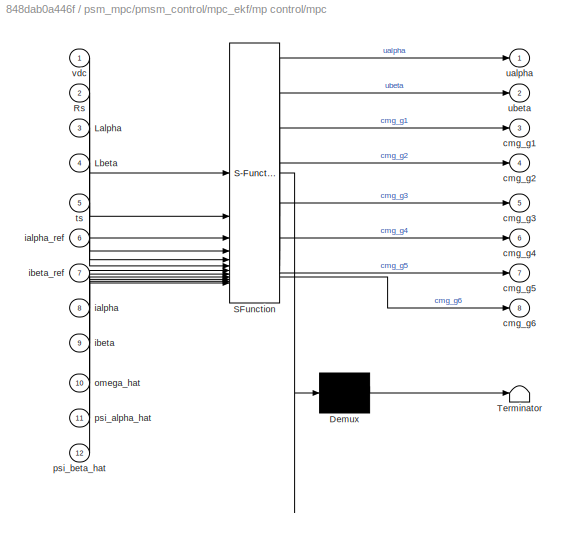
BLOCK [SubSystem] psm_mpc/pmsm_control/mpc_ekf/mp control/mpc
  ErrorFcn = Stateflow.Translate.translate
  PermitHierarchicalResolution = ExplicitOnly
  SFBlockType = MATLAB Function
  SystemSampleTime = tcontrol
  TreatAsAtomicUnit = on
  TreatAsGroupedWhenPropagatingVariantConditions = off
BLOCK [Demux] psm_mpc/pmsm_control/mpc_ekf/mp control/mpc/ Demux 
  Outputs = 1
BLOCK [S-Function] psm_mpc/pmsm_control/mpc_ekf/mp control/mpc/ SFunction 
  EnableBusSupport = off
  FunctionName = sf_sfun
  PortCounts = [12 9]
  SFcnIsStateOwnerBlock = off
  SFunctionDeploymentMode = off
  Tag = Stateflow S-Function 6
BLOCK [Terminator] psm_mpc/pmsm_control/mpc_ekf/mp control/mpc/ Terminator 
BLOCK [Inport] psm_mpc/pmsm_control/mpc_ekf/mp control/mpc/Lalpha
  Port = 3
BLOCK [Inport] psm_mpc/pmsm_control/mpc_ekf/mp control/mpc/Lbeta
  Port = 4
BLOCK [Inport] psm_mpc/pmsm_control/mpc_ekf/mp control/mpc/Rs
  Port = 2
BLOCK [Outport] psm_mpc/pmsm_control/mpc_ekf/mp control/mpc/cmg_g1
  Port = 3
BLOCK [Outport] psm_mpc/pmsm_control/mpc_ekf/mp control/mpc/cmg_g2
  Port = 4
BLOCK [Outport] psm_mpc/pmsm_control/mpc_ekf/mp control/mpc/cmg_g3
  Port = 5
BLOCK [Outport] psm_mpc/pmsm_control/mpc_ekf/mp control/mpc/cmg_g4
  Port = 6
BLOCK [Outport] psm_mpc/pmsm_control/mpc_ekf/mp control/mpc/cmg_g5
  Port = 7
BLOCK [Outport] psm_mpc/pmsm_control/mpc_ekf/mp control/mpc/cmg_g6
  Port = 8
BLOCK [Inport] psm_mpc/pmsm_control/mpc_ekf/mp control/mpc/ialpha
  Port = 8
BLOCK [Inport] psm_mpc/pmsm_control/mpc_ekf/mp control/mpc/ialpha_ref
  Port = 6
BLOCK [Inport] psm_mpc/pmsm_control/mpc_ekf/mp control/mpc/ibeta
  Port = 9
BLOCK [Inport] psm_mpc/pmsm_control/mpc_ekf/mp control/mpc/ibeta_ref
  Port = 7
BLOCK [Inport] psm_mpc/pmsm_control/mpc_ekf/mp control/mpc/omega_hat
  Port = 10
BLOCK [Inport] psm_mpc/pmsm_control/mpc_ekf/mp control/mpc/psi_alpha_hat
  Port = 11
BLOCK [Inport] psm_mpc/pmsm_control/mpc_ekf/mp control/mpc/psi_beta_hat
  Port = 12
BLOCK [Inport] psm_mpc/pmsm_control/mpc_ekf/mp control/mpc/ts
  Port = 5
BLOCK [Outport] psm_mpc/pmsm_control/mpc_ekf/mp control/mpc/ualpha
  VectorParamsAs1DForOutWhenUnconnected = off
BLOCK [Outport] psm_mpc/pmsm_control/mpc_ekf/mp control/mpc/ubeta
  Port = 2
BLOCK [Inport] psm_mpc/pmsm_control/mpc_ekf/mp control/mpc/vdc
BLOCK [Inport] psm_mpc/pmsm_control/mpc_ekf/mp control/omega
  Port = 5
BLOCK [Inport] psm_mpc/pmsm_control/mpc_ekf/mp control/psi_alpha_hat
  Port = 6
BLOCK [Scope] psm_mpc/pmsm_control/mpc_ekf/mp control/psi_alpha_hat//psi_beta_hat
  ActiveDisplayYMaximum = 4.18301
  ActiveDisplayYMinimum = -4.74729
  DataLoggingVariableName = ScopeData1
  Floating = off
  GraphicalSettings = {"GraphicalSettings":{"LegacySettings":true,"Style":{"AxesScalingProperties":{"ScaleAxesLimitsAtStop":false},"Style":{"AxesColor":"[0 0 0]","ChannelNames":[""],"ColorOrder":"[1 1 0.0666666666666667;0.0745098039215686 0.623529411764706 1;1 0.411764705882353 0.16078431372549;0.392156862745098 0.831372549019608 0.0745098039215686;0.717647058823529 0.274509803921569 1;0.0588235294117647 1 1;1 0.074509...<+462ch>
  MultipleDisplayCache = [{"MaxYLimMag":4.74729,"MaxYLimReal":4.18301,"MinYLimMag":0,"MinYLimReal":-4.74729,"PlotAsMagnitudePhase":false,"ShowGrid":true,"ShowLegend":false,"Title":"%<SignalLabel>","YLabel":""}]
  NumInputPorts = 2
  SampleTime = ts
  WasSavedAsWebScope = on
BLOCK [Inport] psm_mpc/pmsm_control/mpc_ekf/mp control/psi_beta_hat
  Port = 7
BLOCK [Outport] psm_mpc/pmsm_control/mpc_ekf/mp control/ualpha
BLOCK [Outport] psm_mpc/pmsm_control/mpc_ekf/mp control/ubeta
  Port = 2
BLOCK [Scope] psm_mpc/pmsm_control/mpc_ekf/psi_alpha_hat//psi_alpha
  ActiveDisplayYMaximum = 2.7502552038903394
  ActiveDisplayYMinimum = -2.7502494573144358
  DataLoggingVariableName = ScopeData2
  Floating = off
  GraphicalSettings = {"AxesScalingProperties":{"AlignXAxis":"Center","AlignYAxis":"Center","AutoScaleXAxisLimits":false,"AxesScaling":"Manual","AxesScalingNumUpdates":10,"ExpandOnly":true,"ScaleAxesLimitsAtStop":false,"XAxisDataRange":100,"YAxisDataRange":80},"DisplayProperties":{"ColorOrder":["auto","auto","auto","auto","auto","auto","auto","auto","auto","auto","auto","auto","auto","auto","auto","auto","auto","auto",...<+2073ch>
  MultipleDisplayCache = [{"MaxYLimMag":2.7502552038903394,"MaxYLimReal":2.7502552038903394,"MinYLimMag":0,"MinYLimReal":-2.7502494573144358,"PlotAsMagnitudePhase":false,"ShowGrid":true,"ShowLegend":false,"Title":"%<SignalLabel>","YLabel":""}]
  NumInputPorts = 2
  SampleTime = ts
  ScopeFrameLocation = window
  WasSavedAsWebScope = on
  WindowPosition = [921 170 560 420]
BLOCK [Scope] psm_mpc/pmsm_control/mpc_ekf/psi_beta_hat//psi_beta
  ActiveDisplayYMaximum = 2.51194
  ActiveDisplayYMinimum = -2.51196
  DataLoggingVariableName = ScopeData3
  Floating = off
  GraphicalSettings = {"GraphicalSettings":{"LegacySettings":true,"Style":{"AxesScalingProperties":{"ScaleAxesLimitsAtStop":false},"Style":{"AxesColor":"[0 0 0]","ChannelNames":[""],"ColorOrder":"[1 1 0.0666666666666667;0.0745098039215686 0.623529411764706 1;1 0.411764705882353 0.16078431372549;0.392156862745098 0.831372549019608 0.0745098039215686;0.717647058823529 0.274509803921569 1;0.0588235294117647 1 1;1 0.074509...<+486ch>
  MultipleDisplayCache = [{"MaxYLimMag":2.51196,"MaxYLimReal":2.51194,"MinYLimMag":0,"MinYLimReal":-2.51196,"PlotAsMagnitudePhase":false,"ShowGrid":true,"ShowLegend":false,"Title":"%<SignalLabel>","YLabel":""}]
  NumInputPorts = 2
  SampleTime = ts
  WasSavedAsWebScope = on
BLOCK [Inport] psm_mpc/pmsm_control/mpc_ekf/torque_ref_pu
BLOCK [Outport] psm_mpc/pmsm_control/mpc_ekf/ualphabeta
  VectorParamsAs1DForOutWhenUnconnected = off
BLOCK [Gain] psm_mpc/pmsm_control/normalization
  Gain = 1/omega_bez
BLOCK [Gain] psm_mpc/pmsm_control/normalization1
  Gain = 1/tau_bez
BLOCK [Scope] psm_mpc/pmsm_control/omega_hat_kalman//omega_hat
  ActiveDisplayYMaximum = 313.10699
  ActiveDisplayYMinimum = -304.159
  DataLoggingVariableName = ScopeData1
  Floating = off
  GraphicalSettings = {"Style":{"BackgroundColor":[0.12941176470588237,0.12941176470588237,0.12941176470588237],"AxesColor":[0.07058823529411765,0.07058823529411765,0.07058823529411765],"LabelsColor":[0.8509803921568627,0.8509803921568627,0.8509803921568627],"PreserveColors":false,"Visible":[true,true],"LineStyle":["-","-"],"LineWidth":[3,3],"BarWidth":[0.9,0.9],"LineColor":["auto","auto"],"LineFaceAlpha":[1,1],"LineEd...<+2074ch>
  MultipleDisplayCache = [{"MaxYLimMag":313.10699,"MaxYLimReal":313.10699,"MinYLimMag":0,"MinYLimReal":-304.159,"PlotAsMagnitudePhase":false,"ShowGrid":true,"ShowLegend":true,"Title":"%<SignalLabel>","YLabel":""}]
  NumInputPorts = 2
  SampleTime = tcontrol
  ScopeFrameLocation = window
  ShowLegend = on
  WasSavedAsWebScope = on
  WindowPosition = [234.000000,196.000000,854.000000,606.000000,]
BLOCK [Scope] psm_mpc/pmsm_control/omega_ref//omega//torque load_pu
  ActiveDisplayYMaximum = 1.23758
  ActiveDisplayYMinimum = -1.08049
  DataLoggingVariableName = ScopeData3
  Floating = off
  GraphicalSettings = {"Style":{"BackgroundColor":[0.12941176470588237,0.12941176470588237,0.12941176470588237],"AxesColor":[0.07058823529411765,0.07058823529411765,0.07058823529411765],"LabelsColor":[0.8509803921568627,0.8509803921568627,0.8509803921568627],"PreserveColors":false,"Visible":[true,true,true],"LineStyle":["-","-","-"],"LineWidth":[3,3,3],"BarWidth":[0.9,0.9,0.9],"LineColor":["auto","auto","auto"],"LineFa...<+2182ch>
  NumInputPorts = 2
  SampleTime = tcontrol
  ScopeFrameLocation = window
  ShowLegend = on
  Visible = on
  WasSavedAsWebScope = on
  WindowPosition = [776.000000,392.000000,854.000000,606.000000,]
BLOCK [SubSystem] psm_mpc/pmsm_control/speed_reference_generator
BLOCK [RateLimiter] psm_mpc/pmsm_control/speed_reference_generator/Rate Limiter
  FallingSlewLimit = -0.25
  RisingSlewLimit = 0.25
  SampleTimeMode = inherited
BLOCK [Step] psm_mpc/pmsm_control/speed_reference_generator/Step
  After = omega_m_sim/omega_m_bez
  SampleTime = 0
  Time = simlength/20
BLOCK [Step] psm_mpc/pmsm_control/speed_reference_generator/Step1
  After = -2*omega_m_sim/omega_m_bez
  SampleTime = 0
  Time = simlength/2
BLOCK [Sum] psm_mpc/pmsm_control/speed_reference_generator/Sum
  Inputs = |++
BLOCK [TransferFcn] psm_mpc/pmsm_control/speed_reference_generator/Transfer Fcn6
  Denominator = [1 4 4]
  Numerator = [4]
BLOCK [Outport] psm_mpc/pmsm_control/speed_reference_generator/omega_ref_pu
BLOCK [Scope] psm_mpc/pmsm_control/torque_ref_pu
  ActiveDisplayYMaximum = 1.23758
  ActiveDisplayYMinimum = -1.08049
  DataLoggingVariableName = ScopeData1
  Floating = off
  GraphicalSettings = {"GraphicalSettings":{"LegacySettings":true,"Style":{"AxesScalingProperties":{"ScaleAxesLimitsAtStop":false},"Style":{"AxesColor":"[0 0 0]","ChannelNames":[""],"ColorOrder":"[1 1 0.0666666666666667;0.0745098039215686 0.623529411764706 1;1 0.411764705882353 0.16078431372549;0.392156862745098 0.831372549019608 0.0745098039215686;0.717647058823529 0.274509803921569 1;0.0588235294117647 1 1;1 0.074509...<+604ch>
  NumInputPorts = 1
  SampleTime = tcontrol
  ShowLegend = on
  WasSavedAsWebScope = on
BLOCK [Outport] psm_mpc/pmsm_control/ualphabeta
  VectorParamsAs1DForOutWhenUnconnected = off
BLOCK [Scope] psm_mpc/pmsm_data
  ActiveDisplayYMaximum = 8430.65022613591
  ActiveDisplayYMinimum = -7553.3407677630657
  Floating = off
  GraphicalSettings = {"Style":{"BackgroundColor":[0.12941176470588237,0.12941176470588237,0.12941176470588237],"AxesColor":[0.07058823529411765,0.07058823529411765,0.07058823529411765],"LabelsColor":[0.8509803921568627,0.8509803921568627,0.8509803921568627],"PreserveColors":false,"Visible":[true,true,false,false,false,false,false,false,false,false],"LineStyle":["-","-","-","-","-","-","-","-","-","-"],"LineWidth":[3,3...<+3195ch>
  LayoutDimensionsString = [1,1]
  MultipleDisplayCache = [{"MaxYLimMag":8430.65022613591,"MaxYLimReal":8430.65022613591,"MinYLimMag":0,"MinYLimReal":-7553.3407677630657,"PlotAsMagnitudePhase":false,"ShowGrid":true,"ShowLegend":true,"Title":"%<SignalLabel>","YLabel":""}]
  NumInputPorts = 1
  ScopeFrameLocation = window
  ShowLegend = on
  WasSavedAsWebScope = on
  WindowPosition = [1141.000000,426.000000,765.000000,561.000000,]
LINE Clock:1 -> To Workspace:1
LINE pmsm_ctrl/pmsm/Bus Creator:1 -> pmsm_ctrl/pmsm/pmsm_data:1
LINE pmsm_ctrl/pmsm/Demux:1 -> pmsm_ctrl/pmsm/Goto1:1
LINE pmsm_ctrl/pmsm/Demux:2 -> pmsm_ctrl/pmsm/Goto:1
LINE pmsm_ctrl/pmsm/From1:1 -> pmsm_ctrl/pmsm/Simulink-PS Converter3:1
LINE pmsm_ctrl/pmsm/From2:1 -> pmsm_ctrl/pmsm/Simulink-PS Converter2:1
NET pmsm_ctrl/pmsm/PS-Simulink Converter1:1 -> pmsm_ctrl/pmsm/Bus Creator:3, pmsm_ctrl/pmsm/Goto3:1
NET pmsm_ctrl/pmsm/PS-Simulink Converter2:1 -> pmsm_ctrl/pmsm/Bus Creator:1, pmsm_ctrl/pmsm/Goto5:1, pmsm_ctrl/pmsm/Zero-Order Hold:1
NET pmsm_ctrl/pmsm/PS-Simulink Converter3:1 -> pmsm_ctrl/pmsm/Bus Creator:2, pmsm_ctrl/pmsm/Goto6:1, pmsm_ctrl/pmsm/Zero-Order Hold1:1
NET pmsm_ctrl/pmsm/PS-Simulink Converter4:1 -> pmsm_ctrl/pmsm/Bus Creator:4, pmsm_ctrl/pmsm/Goto4:1
LINE pmsm_ctrl/pmsm/PS-Simulink Converter5:1 -> pmsm_ctrl/pmsm/Bus Creator:5
LINE pmsm_ctrl/pmsm/PS-Simulink Converter6:1 -> pmsm_ctrl/pmsm/Bus Creator:6
LINE pmsm_ctrl/pmsm/PS-Simulink Converter7:1 -> pmsm_ctrl/pmsm/Bus Creator:7
LINE pmsm_ctrl/pmsm/PS-Simulink Converter8:1 -> pmsm_ctrl/pmsm/Bus Creator:8
NET pmsm_ctrl/pmsm/PS-Simulink Converter9:1 -> pmsm_ctrl/pmsm/Bus Creator:10, pmsm_ctrl/pmsm/Goto2:1
LINE pmsm_ctrl/pmsm/PS-Simulink Converter:1 -> pmsm_ctrl/pmsm/Bus Creator:9
LINE pmsm_ctrl/pmsm/Zero-Order Hold1:1 -> pmsm_ctrl/pmsm/Goto8:1
LINE pmsm_ctrl/pmsm/Zero-Order Hold:1 -> pmsm_ctrl/pmsm/Goto7:1
LINE pmsm_ctrl/pmsm/u_alphabeta:1 -> pmsm_ctrl/pmsm/Demux:1
LINE pmsm_ctrl/pmsm:1 -> pmsm_ctrl/pmsm_data:1
LINE pmsm_ctrl/pmsm_control/From1:1 -> pmsm_ctrl/pmsm_control/omega_hat_kalman//omega_hat:1
LINE pmsm_ctrl/pmsm_control/From2:1 -> pmsm_ctrl/pmsm_control/omega_hat_kalman//omega_hat:2
LINE pmsm_ctrl/pmsm_control/From3:1 -> pmsm_ctrl/pmsm_control/double_integrator_observer:1
LINE pmsm_ctrl/pmsm_control/From:1 -> pmsm_ctrl/pmsm_control/normalization1:1
LINE pmsm_ctrl/pmsm_control/Mux:1 -> pmsm_ctrl/pmsm_control/omega_ref//omega//torque load_pu:1
NET pmsm_ctrl/pmsm_control/Speed control/1//Ti:1 -> pmsm_ctrl/pmsm_control/Speed control/Sum1:1, pmsm_ctrl/pmsm_control/Speed control/Sum3:1
LINE pmsm_ctrl/pmsm_control/Speed control/Rotor speed:1 -> pmsm_ctrl/pmsm_control/Speed control/Sum2:1
NET pmsm_ctrl/pmsm_control/Speed control/Saturation:1 -> pmsm_ctrl/pmsm_control/Speed control/Sum3:2, pmsm_ctrl/pmsm_control/Speed control/torque_ref_pu:1
LINE pmsm_ctrl/pmsm_control/Speed control/Speed ref:1 -> pmsm_ctrl/pmsm_control/Speed control/Sum2:2
LINE pmsm_ctrl/pmsm_control/Speed control/Sum1:1 -> pmsm_ctrl/pmsm_control/Speed control/Saturation:1
NET pmsm_ctrl/pmsm_control/Speed control/Sum2:1 -> pmsm_ctrl/pmsm_control/Speed control/1//Ti:1, pmsm_ctrl/pmsm_control/Speed control/kp:1
LINE pmsm_ctrl/pmsm_control/Speed control/Sum3:1 -> pmsm_ctrl/pmsm_control/Speed control/Unit Delay4:1
LINE pmsm_ctrl/pmsm_control/Speed control/Unit Delay4:1 -> pmsm_ctrl/pmsm_control/Speed control/Sum1:3
LINE pmsm_ctrl/pmsm_control/Speed control/kp:1 -> pmsm_ctrl/pmsm_control/Speed control/Sum1:2
NET pmsm_ctrl/pmsm_control/Speed control:1 -> pmsm_ctrl/pmsm_control/mpc_ekf:1, pmsm_ctrl/pmsm_control/torque_ref_pu:1
LINE pmsm_ctrl/pmsm_control/double_integrator_observer/Gain1:1 -> pmsm_ctrl/pmsm_control/double_integrator_observer/Sum1:2
LINE pmsm_ctrl/pmsm_control/double_integrator_observer/Gain2:1 -> pmsm_ctrl/pmsm_control/double_integrator_observer/bounder2:1
LINE pmsm_ctrl/pmsm_control/double_integrator_observer/Gain:1 -> pmsm_ctrl/pmsm_control/double_integrator_observer/Sum1:1
LINE pmsm_ctrl/pmsm_control/double_integrator_observer/Selector:1 -> pmsm_ctrl/pmsm_control/double_integrator_observer/omega_hat:1
LINE pmsm_ctrl/pmsm_control/double_integrator_observer/Sum1:1 -> pmsm_ctrl/pmsm_control/double_integrator_observer/Unit Delay:1
LINE pmsm_ctrl/pmsm_control/double_integrator_observer/Sum:1 -> pmsm_ctrl/pmsm_control/double_integrator_observer/bounder1:1
NET pmsm_ctrl/pmsm_control/double_integrator_observer/Unit Delay:1 -> pmsm_ctrl/pmsm_control/double_integrator_observer/Gain1:1, pmsm_ctrl/pmsm_control/double_integrator_observer/Gain2:1, pmsm_ctrl/pmsm_control/double_integrator_observer/Selector:1
NET pmsm_ctrl/pmsm_control/double_integrator_observer/Zero-Order Hold:1 -> pmsm_ctrl/pmsm_control/double_integrator_observer/Sum:2, pmsm_ctrl/pmsm_control/double_integrator_observer/theta//theta_hat:1
LINE pmsm_ctrl/pmsm_control/double_integrator_observer/bounder1:1 -> pmsm_ctrl/pmsm_control/double_integrator_observer/Gain:1
NET pmsm_ctrl/pmsm_control/double_integrator_observer/bounder2:1 -> pmsm_ctrl/pmsm_control/double_integrator_observer/Sum:1, pmsm_ctrl/pmsm_control/double_integrator_observer/theta//theta_hat:2
LINE pmsm_ctrl/pmsm_control/double_integrator_observer/theta:1 -> pmsm_ctrl/pmsm_control/double_integrator_observer/Zero-Order Hold:1
NET pmsm_ctrl/pmsm_control/double_integrator_observer:1 -> pmsm_ctrl/pmsm_control/Goto1:1, pmsm_ctrl/pmsm_control/normalization:1
NET pmsm_ctrl/pmsm_control/mpc_ekf/Bus Creator1:1 -> pmsm_ctrl/pmsm_control/mpc_ekf/Goto9:1, pmsm_ctrl/pmsm_control/mpc_ekf/ualphabeta:1
LINE pmsm_ctrl/pmsm_control/mpc_ekf/Bus Creator2:1 -> pmsm_ctrl/pmsm_control/mpc_ekf/Goto10:1
LINE pmsm_ctrl/pmsm_control/mpc_ekf/From10:1 -> pmsm_ctrl/pmsm_control/mpc_ekf/psi_beta_hat//psi_beta:1
LINE pmsm_ctrl/pmsm_control/mpc_ekf/From11:1 -> pmsm_ctrl/pmsm_control/mpc_ekf/mp control:3
LINE pmsm_ctrl/pmsm_control/mpc_ekf/From12:1 -> pmsm_ctrl/pmsm_control/mpc_ekf/mp control:4
LINE pmsm_ctrl/pmsm_control/mpc_ekf/From13:1 -> pmsm_ctrl/pmsm_control/mpc_ekf/mp control:5
LINE pmsm_ctrl/pmsm_control/mpc_ekf/From14:1 -> pmsm_ctrl/pmsm_control/mpc_ekf/i_alpha_hat//i_alpha:2
LINE pmsm_ctrl/pmsm_control/mpc_ekf/From15:1 -> pmsm_ctrl/pmsm_control/mpc_ekf/i_beta_hat//i_beta:2
LINE pmsm_ctrl/pmsm_control/mpc_ekf/From16:1 -> pmsm_ctrl/pmsm_control/mpc_ekf/Bus Creator2:2
LINE pmsm_ctrl/pmsm_control/mpc_ekf/From17:1 -> pmsm_ctrl/pmsm_control/mpc_ekf/extended kalman observer:2
LINE pmsm_ctrl/pmsm_control/mpc_ekf/From18:1 -> pmsm_ctrl/pmsm_control/mpc_ekf/i_alpha_hat//i_alpha:1
LINE pmsm_ctrl/pmsm_control/mpc_ekf/From19:1 -> pmsm_ctrl/pmsm_control/mpc_ekf/i_beta_hat//i_beta:1
LINE pmsm_ctrl/pmsm_control/mpc_ekf/From1:1 -> pmsm_ctrl/pmsm_control/mpc_ekf/Bus Creator1:2
LINE pmsm_ctrl/pmsm_control/mpc_ekf/From2:1 -> pmsm_ctrl/pmsm_control/mpc_ekf/extended kalman observer:1
LINE pmsm_ctrl/pmsm_control/mpc_ekf/From3:1 -> pmsm_ctrl/pmsm_control/mpc_ekf/current_reference_generator:2
LINE pmsm_ctrl/pmsm_control/mpc_ekf/From4:1 -> pmsm_ctrl/pmsm_control/mpc_ekf/Bus Creator2:1
LINE pmsm_ctrl/pmsm_control/mpc_ekf/From5:1 -> pmsm_ctrl/pmsm_control/mpc_ekf/mp control:6
LINE pmsm_ctrl/pmsm_control/mpc_ekf/From6:1 -> pmsm_ctrl/pmsm_control/mpc_ekf/mp control:7
LINE pmsm_ctrl/pmsm_control/mpc_ekf/From7:1 -> pmsm_ctrl/pmsm_control/mpc_ekf/psi_alpha_hat//psi_alpha:1
LINE pmsm_ctrl/pmsm_control/mpc_ekf/From8:1 -> pmsm_ctrl/pmsm_control/mpc_ekf/psi_alpha_hat//psi_alpha:2
LINE pmsm_ctrl/pmsm_control/mpc_ekf/From9:1 -> pmsm_ctrl/pmsm_control/mpc_ekf/psi_beta_hat//psi_beta:2
LINE pmsm_ctrl/pmsm_control/mpc_ekf/From:1 -> pmsm_ctrl/pmsm_control/mpc_ekf/Bus Creator1:1
LINE pmsm_ctrl/pmsm_control/mpc_ekf/current_reference_generator/Gain5:1 -> pmsm_ctrl/pmsm_control/mpc_ekf/current_reference_generator/i_alpha_ref:1
NET pmsm_ctrl/pmsm_control/mpc_ekf/current_reference_generator/Gain6:1 -> pmsm_ctrl/pmsm_control/mpc_ekf/current_reference_generator/Product1:1, pmsm_ctrl/pmsm_control/mpc_ekf/current_reference_generator/Product:1
LINE pmsm_ctrl/pmsm_control/mpc_ekf/current_reference_generator/Product1:1 -> pmsm_ctrl/pmsm_control/mpc_ekf/current_reference_generator/i_beta_ref:1
LINE pmsm_ctrl/pmsm_control/mpc_ekf/current_reference_generator/Product:1 -> pmsm_ctrl/pmsm_control/mpc_ekf/current_reference_generator/Gain5:1
LINE pmsm_ctrl/pmsm_control/mpc_ekf/current_reference_generator/Trigonometric Function1:1 -> pmsm_ctrl/pmsm_control/mpc_ekf/current_reference_generator/Product:2
LINE pmsm_ctrl/pmsm_control/mpc_ekf/current_reference_generator/Trigonometric Function2:1 -> pmsm_ctrl/pmsm_control/mpc_ekf/current_reference_generator/Product1:2
NET pmsm_ctrl/pmsm_control/mpc_ekf/current_reference_generator/theta_elec_hat:1 -> pmsm_ctrl/pmsm_control/mpc_ekf/current_reference_generator/Trigonometric Function1:1, pmsm_ctrl/pmsm_control/mpc_ekf/current_reference_generator/Trigonometric Function2:1
LINE pmsm_ctrl/pmsm_control/mpc_ekf/current_reference_generator/torque_ref_pu:1 -> pmsm_ctrl/pmsm_control/mpc_ekf/current_reference_generator/Gain6:1
LINE pmsm_ctrl/pmsm_control/mpc_ekf/current_reference_generator:1 -> pmsm_ctrl/pmsm_control/mpc_ekf/mp control:1
LINE pmsm_ctrl/pmsm_control/mpc_ekf/current_reference_generator:2 -> pmsm_ctrl/pmsm_control/mpc_ekf/mp control:2
LINE pmsm_ctrl/pmsm_control/mpc_ekf/extended kalman observer/A /From1:1 -> pmsm_ctrl/pmsm_control/mpc_ekf/extended kalman observer/A /Gain5:1
LINE pmsm_ctrl/pmsm_control/mpc_ekf/extended kalman observer/A /From2:1 -> pmsm_ctrl/pmsm_control/mpc_ekf/extended kalman observer/A /Gain3:1
LINE pmsm_ctrl/pmsm_control/mpc_ekf/extended kalman observer/A /From:1 -> pmsm_ctrl/pmsm_control/mpc_ekf/extended kalman observer/A /Gain1:1
LINE pmsm_ctrl/pmsm_control/mpc_ekf/extended kalman observer/A /Gain11:1 -> pmsm_ctrl/pmsm_control/mpc_ekf/extended kalman observer/A /Sum7:2
LINE pmsm_ctrl/pmsm_control/mpc_ekf/extended kalman observer/A /Gain1:1 -> pmsm_ctrl/pmsm_control/mpc_ekf/extended kalman observer/A /Gain2:1
LINE pmsm_ctrl/pmsm_control/mpc_ekf/extended kalman observer/A /Gain2:1 -> pmsm_ctrl/pmsm_control/mpc_ekf/extended kalman observer/A /Sum7:3
LINE pmsm_ctrl/pmsm_control/mpc_ekf/extended kalman observer/A /Gain3:1 -> pmsm_ctrl/pmsm_control/mpc_ekf/extended kalman observer/A /Gain4:1
LINE pmsm_ctrl/pmsm_control/mpc_ekf/extended kalman observer/A /Gain4:1 -> pmsm_ctrl/pmsm_control/mpc_ekf/extended kalman observer/A /Sum7:4
LINE pmsm_ctrl/pmsm_control/mpc_ekf/extended kalman observer/A /Gain5:1 -> pmsm_ctrl/pmsm_control/mpc_ekf/extended kalman observer/A /Gain6:1
LINE pmsm_ctrl/pmsm_control/mpc_ekf/extended kalman observer/A /Gain6:1 -> pmsm_ctrl/pmsm_control/mpc_ekf/extended kalman observer/A /Sum7:5
LINE pmsm_ctrl/pmsm_control/mpc_ekf/extended kalman observer/A /I1:1 -> pmsm_ctrl/pmsm_control/mpc_ekf/extended kalman observer/A /Sum7:1
LINE pmsm_ctrl/pmsm_control/mpc_ekf/extended kalman observer/A /I2:1 -> pmsm_ctrl/pmsm_control/mpc_ekf/extended kalman observer/A /Gain11:1
LINE pmsm_ctrl/pmsm_control/mpc_ekf/extended kalman observer/A /Sum7:1 -> pmsm_ctrl/pmsm_control/mpc_ekf/extended kalman observer/A /out:1
NET pmsm_ctrl/pmsm_control/mpc_ekf/extended kalman observer/A :1 -> pmsm_ctrl/pmsm_control/mpc_ekf/extended kalman observer/Product5:1, pmsm_ctrl/pmsm_control/mpc_ekf/extended kalman observer/Transpose:1
LINE pmsm_ctrl/pmsm_control/mpc_ekf/extended kalman observer/A/From1:1 -> pmsm_ctrl/pmsm_control/mpc_ekf/extended kalman observer/A/Gain5:1
LINE pmsm_ctrl/pmsm_control/mpc_ekf/extended kalman observer/A/From2:1 -> pmsm_ctrl/pmsm_control/mpc_ekf/extended kalman observer/A/Gain3:1
LINE pmsm_ctrl/pmsm_control/mpc_ekf/extended kalman observer/A/From:1 -> pmsm_ctrl/pmsm_control/mpc_ekf/extended kalman observer/A/Gain1:1
LINE pmsm_ctrl/pmsm_control/mpc_ekf/extended kalman observer/A/Gain11:1 -> pmsm_ctrl/pmsm_control/mpc_ekf/extended kalman observer/A/Sum7:2
LINE pmsm_ctrl/pmsm_control/mpc_ekf/extended kalman observer/A/Gain1:1 -> pmsm_ctrl/pmsm_control/mpc_ekf/extended kalman observer/A/Gain2:1
LINE pmsm_ctrl/pmsm_control/mpc_ekf/extended kalman observer/A/Gain2:1 -> pmsm_ctrl/pmsm_control/mpc_ekf/extended kalman observer/A/Sum7:3
LINE pmsm_ctrl/pmsm_control/mpc_ekf/extended kalman observer/A/Gain3:1 -> pmsm_ctrl/pmsm_control/mpc_ekf/extended kalman observer/A/Gain4:1
LINE pmsm_ctrl/pmsm_control/mpc_ekf/extended kalman observer/A/Gain4:1 -> pmsm_ctrl/pmsm_control/mpc_ekf/extended kalman observer/A/Sum7:4
LINE pmsm_ctrl/pmsm_control/mpc_ekf/extended kalman observer/A/Gain5:1 -> pmsm_ctrl/pmsm_control/mpc_ekf/extended kalman observer/A/Gain6:1
LINE pmsm_ctrl/pmsm_control/mpc_ekf/extended kalman observer/A/Gain6:1 -> pmsm_ctrl/pmsm_control/mpc_ekf/extended kalman observer/A/Sum7:5
LINE pmsm_ctrl/pmsm_control/mpc_ekf/extended kalman observer/A/I1:1 -> pmsm_ctrl/pmsm_control/mpc_ekf/extended kalman observer/A/Sum7:1
LINE pmsm_ctrl/pmsm_control/mpc_ekf/extended kalman observer/A/I2:1 -> pmsm_ctrl/pmsm_control/mpc_ekf/extended kalman observer/A/Gain11:1
LINE pmsm_ctrl/pmsm_control/mpc_ekf/extended kalman observer/A/Sum7:1 -> pmsm_ctrl/pmsm_control/mpc_ekf/extended kalman observer/A/out:1
LINE pmsm_ctrl/pmsm_control/mpc_ekf/extended kalman observer/A:1 -> pmsm_ctrl/pmsm_control/mpc_ekf/extended kalman observer/Product4:1
LINE pmsm_ctrl/pmsm_control/mpc_ekf/extended kalman observer/Atan2:1 -> pmsm_ctrl/pmsm_control/mpc_ekf/extended kalman observer/theta_elec_hat:1
LINE pmsm_ctrl/pmsm_control/mpc_ekf/extended kalman observer/Gain10:1 -> pmsm_ctrl/pmsm_control/mpc_ekf/extended kalman observer/Sum4:1
LINE pmsm_ctrl/pmsm_control/mpc_ekf/extended kalman observer/Gain1:1 -> pmsm_ctrl/pmsm_control/mpc_ekf/extended kalman observer/Sum2:2
LINE pmsm_ctrl/pmsm_control/mpc_ekf/extended kalman observer/Gain5:1 -> pmsm_ctrl/pmsm_control/mpc_ekf/extended kalman observer/Sum3:1
LINE pmsm_ctrl/pmsm_control/mpc_ekf/extended kalman observer/Gain6:1 -> pmsm_ctrl/pmsm_control/mpc_ekf/extended kalman observer/Sum1:2
LINE pmsm_ctrl/pmsm_control/mpc_ekf/extended kalman observer/Gain8:1 -> pmsm_ctrl/pmsm_control/mpc_ekf/extended kalman observer/Product:1
LINE pmsm_ctrl/pmsm_control/mpc_ekf/extended kalman observer/Gain9:1 -> pmsm_ctrl/pmsm_control/mpc_ekf/extended kalman observer/Gain10:1
LINE pmsm_ctrl/pmsm_control/mpc_ekf/extended kalman observer/I:1 -> pmsm_ctrl/pmsm_control/mpc_ekf/extended kalman observer/Sum2:1
LINE pmsm_ctrl/pmsm_control/mpc_ekf/extended kalman observer/Product1:1 -> pmsm_ctrl/pmsm_control/mpc_ekf/extended kalman observer/Sum6:2
LINE pmsm_ctrl/pmsm_control/mpc_ekf/extended kalman observer/Product2:1 -> pmsm_ctrl/pmsm_control/mpc_ekf/extended kalman observer/Unit Delay2:1
LINE pmsm_ctrl/pmsm_control/mpc_ekf/extended kalman observer/Product3:1 -> pmsm_ctrl/pmsm_control/mpc_ekf/extended kalman observer/Product:2
LINE pmsm_ctrl/pmsm_control/mpc_ekf/extended kalman observer/Product4:1 -> pmsm_ctrl/pmsm_control/mpc_ekf/extended kalman observer/Sum3:2
LINE pmsm_ctrl/pmsm_control/mpc_ekf/extended kalman observer/Product5:1 -> pmsm_ctrl/pmsm_control/mpc_ekf/extended kalman observer/Product6:1
LINE pmsm_ctrl/pmsm_control/mpc_ekf/extended kalman observer/Product6:1 -> pmsm_ctrl/pmsm_control/mpc_ekf/extended kalman observer/Sum5:1
NET pmsm_ctrl/pmsm_control/mpc_ekf/extended kalman observer/Product:1 -> pmsm_ctrl/pmsm_control/mpc_ekf/extended kalman observer/Gain1:1, pmsm_ctrl/pmsm_control/mpc_ekf/extended kalman observer/Product1:1
LINE pmsm_ctrl/pmsm_control/mpc_ekf/extended kalman observer/Q:1 -> pmsm_ctrl/pmsm_control/mpc_ekf/extended kalman observer/Sum5:2
LINE pmsm_ctrl/pmsm_control/mpc_ekf/extended kalman observer/R1:1 -> pmsm_ctrl/pmsm_control/mpc_ekf/extended kalman observer/Product3:1
LINE pmsm_ctrl/pmsm_control/mpc_ekf/extended kalman observer/R:1 -> pmsm_ctrl/pmsm_control/mpc_ekf/extended kalman observer/Sum4:2
NET pmsm_ctrl/pmsm_control/mpc_ekf/extended kalman observer/Selector1:1 -> pmsm_ctrl/pmsm_control/mpc_ekf/extended kalman observer/Atan2:1, pmsm_ctrl/pmsm_control/mpc_ekf/extended kalman observer/psi_beta_hat:1
LINE pmsm_ctrl/pmsm_control/mpc_ekf/extended kalman observer/Selector2:1 -> pmsm_ctrl/pmsm_control/mpc_ekf/extended kalman observer/Goto:1
LINE pmsm_ctrl/pmsm_control/mpc_ekf/extended kalman observer/Selector3:1 -> pmsm_ctrl/pmsm_control/mpc_ekf/extended kalman observer/Goto3:1
LINE pmsm_ctrl/pmsm_control/mpc_ekf/extended kalman observer/Selector4:1 -> pmsm_ctrl/pmsm_control/mpc_ekf/extended kalman observer/Goto1:1
NET pmsm_ctrl/pmsm_control/mpc_ekf/extended kalman observer/Selector:1 -> pmsm_ctrl/pmsm_control/mpc_ekf/extended kalman observer/Atan2:2, pmsm_ctrl/pmsm_control/mpc_ekf/extended kalman observer/psi_alpha_hat:1
LINE pmsm_ctrl/pmsm_control/mpc_ekf/extended kalman observer/Sum1:1 -> pmsm_ctrl/pmsm_control/mpc_ekf/extended kalman observer/Product1:2
LINE pmsm_ctrl/pmsm_control/mpc_ekf/extended kalman observer/Sum2:1 -> pmsm_ctrl/pmsm_control/mpc_ekf/extended kalman observer/Product2:1
NET pmsm_ctrl/pmsm_control/mpc_ekf/extended kalman observer/Sum3:1 -> pmsm_ctrl/pmsm_control/mpc_ekf/extended kalman observer/Gain6:1, pmsm_ctrl/pmsm_control/mpc_ekf/extended kalman observer/Sum6:1
LINE pmsm_ctrl/pmsm_control/mpc_ekf/extended kalman observer/Sum4:1 -> pmsm_ctrl/pmsm_control/mpc_ekf/extended kalman observer/Product3:2
NET pmsm_ctrl/pmsm_control/mpc_ekf/extended kalman observer/Sum5:1 -> pmsm_ctrl/pmsm_control/mpc_ekf/extended kalman observer/Gain8:1, pmsm_ctrl/pmsm_control/mpc_ekf/extended kalman observer/Gain9:1, pmsm_ctrl/pmsm_control/mpc_ekf/extended kalman observer/Product2:2
LINE pmsm_ctrl/pmsm_control/mpc_ekf/extended kalman observer/Sum6:1 -> pmsm_ctrl/pmsm_control/mpc_ekf/extended kalman observer/Unit Delay1:1
LINE pmsm_ctrl/pmsm_control/mpc_ekf/extended kalman observer/Transpose:1 -> pmsm_ctrl/pmsm_control/mpc_ekf/extended kalman observer/Product6:2
NET pmsm_ctrl/pmsm_control/mpc_ekf/extended kalman observer/Unit Delay1:1 -> pmsm_ctrl/pmsm_control/mpc_ekf/extended kalman observer/Product4:2, pmsm_ctrl/pmsm_control/mpc_ekf/extended kalman observer/Selector1:1, pmsm_ctrl/pmsm_control/mpc_ekf/extended kalman observer/Selector2:1, pmsm_ctrl/pmsm_control/mpc_ekf/extended kalman observer/Selector3:1, pmsm_ctrl/pmsm_control/mpc_ekf/extended kalman observer/Selector4:1, pmsm_ctrl/pmsm_control/mpc_ekf/extended kalman observer/Selector:1
LINE pmsm_ctrl/pmsm_control/mpc_ekf/extended kalman observer/Unit Delay2:1 -> pmsm_ctrl/pmsm_control/mpc_ekf/extended kalman observer/Product5:2
LINE pmsm_ctrl/pmsm_control/mpc_ekf/extended kalman observer/ialphabeta:1 -> pmsm_ctrl/pmsm_control/mpc_ekf/extended kalman observer/Sum1:1
LINE pmsm_ctrl/pmsm_control/mpc_ekf/extended kalman observer/ualphabeta:1 -> pmsm_ctrl/pmsm_control/mpc_ekf/extended kalman observer/Gain5:1
LINE pmsm_ctrl/pmsm_control/mpc_ekf/extended kalman observer:1 -> pmsm_ctrl/pmsm_control/mpc_ekf/Goto6:1
LINE pmsm_ctrl/pmsm_control/mpc_ekf/extended kalman observer:2 -> pmsm_ctrl/pmsm_control/mpc_ekf/Goto1:1
LINE pmsm_ctrl/pmsm_control/mpc_ekf/extended kalman observer:3 -> pmsm_ctrl/pmsm_control/mpc_ekf/Goto:1
LINE pmsm_ctrl/pmsm_control/mpc_ekf/mp control/Constant1:1 -> pmsm_ctrl/pmsm_control/mpc_ekf/mp control/mpc:3
LINE pmsm_ctrl/pmsm_control/mpc_ekf/mp control/Constant2:1 -> pmsm_ctrl/pmsm_control/mpc_ekf/mp control/mpc:4
LINE pmsm_ctrl/pmsm_control/mpc_ekf/mp control/Constant3:1 -> pmsm_ctrl/pmsm_control/mpc_ekf/mp control/mpc:1
LINE pmsm_ctrl/pmsm_control/mpc_ekf/mp control/Constant4:1 -> pmsm_ctrl/pmsm_control/mpc_ekf/mp control/mpc:5
LINE pmsm_ctrl/pmsm_control/mpc_ekf/mp control/Constant:1 -> pmsm_ctrl/pmsm_control/mpc_ekf/mp control/mpc:2
LINE pmsm_ctrl/pmsm_control/mpc_ekf/mp control/Unit Delay1:1 -> pmsm_ctrl/pmsm_control/mpc_ekf/mp control/ubeta:1
LINE pmsm_ctrl/pmsm_control/mpc_ekf/mp control/Unit Delay3:1 -> pmsm_ctrl/pmsm_control/mpc_ekf/mp control/ualpha:1
NET pmsm_ctrl/pmsm_control/mpc_ekf/mp control/ialpha:1 -> pmsm_ctrl/pmsm_control/mpc_ekf/mp control/ialpha//ibeta:1, pmsm_ctrl/pmsm_control/mpc_ekf/mp control/ialpha_ref//ialpha:2, pmsm_ctrl/pmsm_control/mpc_ekf/mp control/mpc:8
NET pmsm_ctrl/pmsm_control/mpc_ekf/mp control/ialpha_ref:1 -> pmsm_ctrl/pmsm_control/mpc_ekf/mp control/ialpha_ref//ialpha:1, pmsm_ctrl/pmsm_control/mpc_ekf/mp control/mpc:6
NET pmsm_ctrl/pmsm_control/mpc_ekf/mp control/ibeta:1 -> pmsm_ctrl/pmsm_control/mpc_ekf/mp control/ialpha//ibeta:2, pmsm_ctrl/pmsm_control/mpc_ekf/mp control/mpc:9
LINE pmsm_ctrl/pmsm_control/mpc_ekf/mp control/ibeta_ref:1 -> pmsm_ctrl/pmsm_control/mpc_ekf/mp control/mpc:7
LINE pmsm_ctrl/pmsm_control/mpc_ekf/mp control/mpc:1 -> pmsm_ctrl/pmsm_control/mpc_ekf/mp control/Unit Delay3:1
LINE pmsm_ctrl/pmsm_control/mpc_ekf/mp control/mpc:2 -> pmsm_ctrl/pmsm_control/mpc_ekf/mp control/Unit Delay1:1
LINE pmsm_ctrl/pmsm_control/mpc_ekf/mp control/omega:1 -> pmsm_ctrl/pmsm_control/mpc_ekf/mp control/mpc:10
NET pmsm_ctrl/pmsm_control/mpc_ekf/mp control/psi_alpha_hat:1 -> pmsm_ctrl/pmsm_control/mpc_ekf/mp control/mpc:11, pmsm_ctrl/pmsm_control/mpc_ekf/mp control/psi_alpha_hat//psi_beta_hat:1
NET pmsm_ctrl/pmsm_control/mpc_ekf/mp control/psi_beta_hat:1 -> pmsm_ctrl/pmsm_control/mpc_ekf/mp control/mpc:12, pmsm_ctrl/pmsm_control/mpc_ekf/mp control/psi_alpha_hat//psi_beta_hat:2
LINE pmsm_ctrl/pmsm_control/mpc_ekf/mp control:1 -> pmsm_ctrl/pmsm_control/mpc_ekf/Goto2:1
LINE pmsm_ctrl/pmsm_control/mpc_ekf/mp control:2 -> pmsm_ctrl/pmsm_control/mpc_ekf/Goto3:1
LINE pmsm_ctrl/pmsm_control/mpc_ekf/torque_ref_pu:1 -> pmsm_ctrl/pmsm_control/mpc_ekf/current_reference_generator:1
LINE pmsm_ctrl/pmsm_control/mpc_ekf:1 -> pmsm_ctrl/pmsm_control/ualphabeta:1
LINE pmsm_ctrl/pmsm_control/normalization1:1 -> pmsm_ctrl/pmsm_control/omega_ref//omega//torque load_pu:2
NET pmsm_ctrl/pmsm_control/normalization:1 -> pmsm_ctrl/pmsm_control/Mux:1, pmsm_ctrl/pmsm_control/Speed control:1
LINE pmsm_ctrl/pmsm_control/speed_reference_generator/Rate Limiter:1 -> pmsm_ctrl/pmsm_control/speed_reference_generator/Transfer Fcn6:1
LINE pmsm_ctrl/pmsm_control/speed_reference_generator/Step1:1 -> pmsm_ctrl/pmsm_control/speed_reference_generator/Sum:2
LINE pmsm_ctrl/pmsm_control/speed_reference_generator/Step:1 -> pmsm_ctrl/pmsm_control/speed_reference_generator/Sum:1
LINE pmsm_ctrl/pmsm_control/speed_reference_generator/Sum:1 -> pmsm_ctrl/pmsm_control/speed_reference_generator/Rate Limiter:1
LINE pmsm_ctrl/pmsm_control/speed_reference_generator/Transfer Fcn6:1 -> pmsm_ctrl/pmsm_control/speed_reference_generator/omega_ref_pu:1
NET pmsm_ctrl/pmsm_control/speed_reference_generator:1 -> pmsm_ctrl/pmsm_control/Mux:2, pmsm_ctrl/pmsm_control/Speed control:2
LINE pmsm_ctrl/pmsm_control:1 -> pmsm_ctrl/pmsm:1
LINE psm_mpc/pmsm/Bus Creator:1 -> psm_mpc/pmsm/pmsm_data:1
LINE psm_mpc/pmsm/Bus Selector:1 -> psm_mpc/pmsm/Goto9:1
LINE psm_mpc/pmsm/Bus Selector:2 -> psm_mpc/pmsm/Goto10:1
LINE psm_mpc/pmsm/Bus Selector:3 -> psm_mpc/pmsm/Goto11:1
LINE psm_mpc/pmsm/Demux:1 -> psm_mpc/pmsm/Goto1:1
LINE psm_mpc/pmsm/Demux:2 -> psm_mpc/pmsm/Goto:1
LINE psm_mpc/pmsm/From10:1 -> psm_mpc/pmsm/Simulink-PS Converter3:1
NET psm_mpc/pmsm/From1:1 -> psm_mpc/pmsm/Bus Creator:2, psm_mpc/pmsm/Goto6:1, psm_mpc/pmsm/Zero-Order Hold1:1
LINE psm_mpc/pmsm/From20:1 -> psm_mpc/pmsm/Bus Selector:1
NET psm_mpc/pmsm/From2:1 -> psm_mpc/pmsm/Bus Creator:3, psm_mpc/pmsm/Goto3:1
NET psm_mpc/pmsm/From3:1 -> psm_mpc/pmsm/Bus Creator:4, psm_mpc/pmsm/Goto4:1
LINE psm_mpc/pmsm/From4:1 -> psm_mpc/pmsm/Bus Creator:6
LINE psm_mpc/pmsm/From5:1 -> psm_mpc/pmsm/Bus Creator:5
LINE psm_mpc/pmsm/From6:1 -> psm_mpc/pmsm/Bus Creator:7
LINE psm_mpc/pmsm/From7:1 -> psm_mpc/pmsm/Bus Creator:9
LINE psm_mpc/pmsm/From8:1 -> psm_mpc/pmsm/Simulink-PS Converter2:1
LINE psm_mpc/pmsm/From9:1 -> psm_mpc/pmsm/Simulink-PS Converter1:1
NET psm_mpc/pmsm/From:1 -> psm_mpc/pmsm/Bus Creator:1, psm_mpc/pmsm/Goto5:1, psm_mpc/pmsm/Zero-Order Hold:1
LINE psm_mpc/pmsm/PS-Simulink Converter1:1 -> psm_mpc/pmsm/Bus Creator:8
NET psm_mpc/pmsm/PS-Simulink Converter9:1 -> psm_mpc/pmsm/Bus Creator:10, psm_mpc/pmsm/Goto2:1
LINE psm_mpc/pmsm/Zero-Order Hold1:1 -> psm_mpc/pmsm/Goto8:1
LINE psm_mpc/pmsm/Zero-Order Hold:1 -> psm_mpc/pmsm/Goto7:1
LINE psm_mpc/pmsm/psm/Bus Selector10:1 -> psm_mpc/pmsm/psm/Goto12:1
LINE psm_mpc/pmsm/psm/Bus Selector11:1 -> psm_mpc/pmsm/psm/Goto11:1
LINE psm_mpc/pmsm/psm/Bus Selector12:1 -> psm_mpc/pmsm/psm/Goto4:1
LINE psm_mpc/pmsm/psm/Bus Selector13:1 -> psm_mpc/pmsm/psm/Goto3:1
LINE psm_mpc/pmsm/psm/Bus Selector14:1 -> psm_mpc/pmsm/psm/Goto14:1
LINE psm_mpc/pmsm/psm/Bus Selector15:1 -> psm_mpc/pmsm/psm/Goto13:1
LINE psm_mpc/pmsm/psm/Bus Selector1:1 -> psm_mpc/pmsm/psm/Goto9:1
LINE psm_mpc/pmsm/psm/Bus Selector2:1 -> psm_mpc/pmsm/psm/Goto6:1
LINE psm_mpc/pmsm/psm/Bus Selector3:1 -> psm_mpc/pmsm/psm/Goto7:1
LINE psm_mpc/pmsm/psm/Bus Selector4:1 -> psm_mpc/pmsm/psm/Goto8:1
LINE psm_mpc/pmsm/psm/Bus Selector5:1 -> psm_mpc/pmsm/psm/Goto1:1
LINE psm_mpc/pmsm/psm/Bus Selector6:1 -> psm_mpc/pmsm/psm/Goto2:1
LINE psm_mpc/pmsm/psm/Bus Selector7:1 -> psm_mpc/pmsm/psm/Goto16:1
LINE psm_mpc/pmsm/psm/Bus Selector8:1 -> psm_mpc/pmsm/psm/Goto17:1
LINE psm_mpc/pmsm/psm/Bus Selector9:1 -> psm_mpc/pmsm/psm/Goto10:1
LINE psm_mpc/pmsm/psm/Bus Selector:1 -> psm_mpc/pmsm/psm/Goto5:1
NET psm_mpc/pmsm/psm/psm:1 -> psm_mpc/pmsm/psm/Bus Selector10:1, psm_mpc/pmsm/psm/Bus Selector11:1, psm_mpc/pmsm/psm/Bus Selector12:1, psm_mpc/pmsm/psm/Bus Selector13:1, psm_mpc/pmsm/psm/Bus Selector14:1, psm_mpc/pmsm/psm/Bus Selector15:1, psm_mpc/pmsm/psm/Bus Selector1:1, psm_mpc/pmsm/psm/Bus Selector2:1, psm_mpc/pmsm/psm/Bus Selector3:1, psm_mpc/pmsm/psm/Bus Selector4:1, psm_mpc/pmsm/psm/Bus Selector5:1, psm_mpc/pmsm/psm/Bus Selector6:1, psm_mpc/pmsm/psm/Bus Selector7:1, psm_mpc/pmsm/psm/Bus Selector8:1, psm_mpc/pmsm/psm/Bus Selector9:1, psm_mpc/pmsm/psm/Bus Selector:1, psm_mpc/pmsm/psm/motor_data:1
LINE psm_mpc/pmsm/u_alphabeta:1 -> psm_mpc/pmsm/Demux:1
LINE psm_mpc/pmsm:1 -> psm_mpc/pmsm_data:1
LINE psm_mpc/pmsm_control/From1:1 -> psm_mpc/pmsm_control/omega_hat_kalman//omega_hat:1
LINE psm_mpc/pmsm_control/From2:1 -> psm_mpc/pmsm_control/omega_hat_kalman//omega_hat:2
LINE psm_mpc/pmsm_control/From3:1 -> psm_mpc/pmsm_control/double_integrator_observer:1
LINE psm_mpc/pmsm_control/From:1 -> psm_mpc/pmsm_control/normalization1:1
LINE psm_mpc/pmsm_control/Mux:1 -> psm_mpc/pmsm_control/omega_ref//omega//torque load_pu:1
NET psm_mpc/pmsm_control/Speed control/1//Ti:1 -> psm_mpc/pmsm_control/Speed control/Sum1:1, psm_mpc/pmsm_control/Speed control/Sum3:1
LINE psm_mpc/pmsm_control/Speed control/Rotor speed:1 -> psm_mpc/pmsm_control/Speed control/Sum2:1
NET psm_mpc/pmsm_control/Speed control/Saturation:1 -> psm_mpc/pmsm_control/Speed control/Sum3:2, psm_mpc/pmsm_control/Speed control/torque_ref_pu:1
LINE psm_mpc/pmsm_control/Speed control/Speed ref:1 -> psm_mpc/pmsm_control/Speed control/Sum2:2
LINE psm_mpc/pmsm_control/Speed control/Sum1:1 -> psm_mpc/pmsm_control/Speed control/Saturation:1
NET psm_mpc/pmsm_control/Speed control/Sum2:1 -> psm_mpc/pmsm_control/Speed control/1//Ti:1, psm_mpc/pmsm_control/Speed control/kp:1
LINE psm_mpc/pmsm_control/Speed control/Sum3:1 -> psm_mpc/pmsm_control/Speed control/Unit Delay4:1
LINE psm_mpc/pmsm_control/Speed control/Unit Delay4:1 -> psm_mpc/pmsm_control/Speed control/Sum1:3
LINE psm_mpc/pmsm_control/Speed control/kp:1 -> psm_mpc/pmsm_control/Speed control/Sum1:2
NET psm_mpc/pmsm_control/Speed control:1 -> psm_mpc/pmsm_control/mpc_ekf:1, psm_mpc/pmsm_control/torque_ref_pu:1
LINE psm_mpc/pmsm_control/double_integrator_observer/Gain1:1 -> psm_mpc/pmsm_control/double_integrator_observer/Sum1:2
LINE psm_mpc/pmsm_control/double_integrator_observer/Gain2:1 -> psm_mpc/pmsm_control/double_integrator_observer/bounder2:1
LINE psm_mpc/pmsm_control/double_integrator_observer/Gain:1 -> psm_mpc/pmsm_control/double_integrator_observer/Sum1:1
LINE psm_mpc/pmsm_control/double_integrator_observer/Selector:1 -> psm_mpc/pmsm_control/double_integrator_observer/omega_hat:1
LINE psm_mpc/pmsm_control/double_integrator_observer/Sum1:1 -> psm_mpc/pmsm_control/double_integrator_observer/Unit Delay:1
LINE psm_mpc/pmsm_control/double_integrator_observer/Sum:1 -> psm_mpc/pmsm_control/double_integrator_observer/bounder1:1
NET psm_mpc/pmsm_control/double_integrator_observer/Unit Delay:1 -> psm_mpc/pmsm_control/double_integrator_observer/Gain1:1, psm_mpc/pmsm_control/double_integrator_observer/Gain2:1, psm_mpc/pmsm_control/double_integrator_observer/Selector:1
NET psm_mpc/pmsm_control/double_integrator_observer/Zero-Order Hold:1 -> psm_mpc/pmsm_control/double_integrator_observer/Sum:2, psm_mpc/pmsm_control/double_integrator_observer/theta//theta_hat:1
LINE psm_mpc/pmsm_control/double_integrator_observer/bounder1:1 -> psm_mpc/pmsm_control/double_integrator_observer/Gain:1
NET psm_mpc/pmsm_control/double_integrator_observer/bounder2:1 -> psm_mpc/pmsm_control/double_integrator_observer/Sum:1, psm_mpc/pmsm_control/double_integrator_observer/theta//theta_hat:2
LINE psm_mpc/pmsm_control/double_integrator_observer/theta:1 -> psm_mpc/pmsm_control/double_integrator_observer/Zero-Order Hold:1
NET psm_mpc/pmsm_control/double_integrator_observer:1 -> psm_mpc/pmsm_control/Goto1:1, psm_mpc/pmsm_control/normalization:1
NET psm_mpc/pmsm_control/mpc_ekf/Bus Creator1:1 -> psm_mpc/pmsm_control/mpc_ekf/Goto9:1, psm_mpc/pmsm_control/mpc_ekf/ualphabeta:1
LINE psm_mpc/pmsm_control/mpc_ekf/Bus Creator2:1 -> psm_mpc/pmsm_control/mpc_ekf/Goto10:1
LINE psm_mpc/pmsm_control/mpc_ekf/From10:1 -> psm_mpc/pmsm_control/mpc_ekf/psi_beta_hat//psi_beta:1
LINE psm_mpc/pmsm_control/mpc_ekf/From11:1 -> psm_mpc/pmsm_control/mpc_ekf/mp control:3
LINE psm_mpc/pmsm_control/mpc_ekf/From12:1 -> psm_mpc/pmsm_control/mpc_ekf/mp control:4
LINE psm_mpc/pmsm_control/mpc_ekf/From13:1 -> psm_mpc/pmsm_control/mpc_ekf/mp control:5
LINE psm_mpc/pmsm_control/mpc_ekf/From14:1 -> psm_mpc/pmsm_control/mpc_ekf/i_alpha_hat//i_alpha:2
LINE psm_mpc/pmsm_control/mpc_ekf/From15:1 -> psm_mpc/pmsm_control/mpc_ekf/i_beta_hat//i_beta:2
LINE psm_mpc/pmsm_control/mpc_ekf/From16:1 -> psm_mpc/pmsm_control/mpc_ekf/Bus Creator2:2
LINE psm_mpc/pmsm_control/mpc_ekf/From17:1 -> psm_mpc/pmsm_control/mpc_ekf/extended kalman observer:2
LINE psm_mpc/pmsm_control/mpc_ekf/From18:1 -> psm_mpc/pmsm_control/mpc_ekf/i_alpha_hat//i_alpha:1
LINE psm_mpc/pmsm_control/mpc_ekf/From19:1 -> psm_mpc/pmsm_control/mpc_ekf/i_beta_hat//i_beta:1
LINE psm_mpc/pmsm_control/mpc_ekf/From1:1 -> psm_mpc/pmsm_control/mpc_ekf/Bus Creator1:2
LINE psm_mpc/pmsm_control/mpc_ekf/From2:1 -> psm_mpc/pmsm_control/mpc_ekf/extended kalman observer:1
LINE psm_mpc/pmsm_control/mpc_ekf/From3:1 -> psm_mpc/pmsm_control/mpc_ekf/current_reference_generator:2
LINE psm_mpc/pmsm_control/mpc_ekf/From4:1 -> psm_mpc/pmsm_control/mpc_ekf/Bus Creator2:1
LINE psm_mpc/pmsm_control/mpc_ekf/From5:1 -> psm_mpc/pmsm_control/mpc_ekf/mp control:6
LINE psm_mpc/pmsm_control/mpc_ekf/From6:1 -> psm_mpc/pmsm_control/mpc_ekf/mp control:7
LINE psm_mpc/pmsm_control/mpc_ekf/From7:1 -> psm_mpc/pmsm_control/mpc_ekf/psi_alpha_hat//psi_alpha:1
LINE psm_mpc/pmsm_control/mpc_ekf/From8:1 -> psm_mpc/pmsm_control/mpc_ekf/psi_alpha_hat//psi_alpha:2
LINE psm_mpc/pmsm_control/mpc_ekf/From9:1 -> psm_mpc/pmsm_control/mpc_ekf/psi_beta_hat//psi_beta:2
LINE psm_mpc/pmsm_control/mpc_ekf/From:1 -> psm_mpc/pmsm_control/mpc_ekf/Bus Creator1:1
LINE psm_mpc/pmsm_control/mpc_ekf/current_reference_generator/Gain5:1 -> psm_mpc/pmsm_control/mpc_ekf/current_reference_generator/i_alpha_ref:1
NET psm_mpc/pmsm_control/mpc_ekf/current_reference_generator/Gain6:1 -> psm_mpc/pmsm_control/mpc_ekf/current_reference_generator/Product1:1, psm_mpc/pmsm_control/mpc_ekf/current_reference_generator/Product:1
LINE psm_mpc/pmsm_control/mpc_ekf/current_reference_generator/Product1:1 -> psm_mpc/pmsm_control/mpc_ekf/current_reference_generator/i_beta_ref:1
LINE psm_mpc/pmsm_control/mpc_ekf/current_reference_generator/Product:1 -> psm_mpc/pmsm_control/mpc_ekf/current_reference_generator/Gain5:1
LINE psm_mpc/pmsm_control/mpc_ekf/current_reference_generator/Trigonometric Function1:1 -> psm_mpc/pmsm_control/mpc_ekf/current_reference_generator/Product:2
LINE psm_mpc/pmsm_control/mpc_ekf/current_reference_generator/Trigonometric Function2:1 -> psm_mpc/pmsm_control/mpc_ekf/current_reference_generator/Product1:2
NET psm_mpc/pmsm_control/mpc_ekf/current_reference_generator/theta_elec_hat:1 -> psm_mpc/pmsm_control/mpc_ekf/current_reference_generator/Trigonometric Function1:1, psm_mpc/pmsm_control/mpc_ekf/current_reference_generator/Trigonometric Function2:1
LINE psm_mpc/pmsm_control/mpc_ekf/current_reference_generator/torque_ref_pu:1 -> psm_mpc/pmsm_control/mpc_ekf/current_reference_generator/Gain6:1
LINE psm_mpc/pmsm_control/mpc_ekf/current_reference_generator:1 -> psm_mpc/pmsm_control/mpc_ekf/mp control:1
LINE psm_mpc/pmsm_control/mpc_ekf/current_reference_generator:2 -> psm_mpc/pmsm_control/mpc_ekf/mp control:2
LINE psm_mpc/pmsm_control/mpc_ekf/extended kalman observer/A /From1:1 -> psm_mpc/pmsm_control/mpc_ekf/extended kalman observer/A /Gain5:1
LINE psm_mpc/pmsm_control/mpc_ekf/extended kalman observer/A /From2:1 -> psm_mpc/pmsm_control/mpc_ekf/extended kalman observer/A /Gain3:1
LINE psm_mpc/pmsm_control/mpc_ekf/extended kalman observer/A /From:1 -> psm_mpc/pmsm_control/mpc_ekf/extended kalman observer/A /Gain1:1
LINE psm_mpc/pmsm_control/mpc_ekf/extended kalman observer/A /Gain11:1 -> psm_mpc/pmsm_control/mpc_ekf/extended kalman observer/A /Sum7:2
LINE psm_mpc/pmsm_control/mpc_ekf/extended kalman observer/A /Gain1:1 -> psm_mpc/pmsm_control/mpc_ekf/extended kalman observer/A /Gain2:1
LINE psm_mpc/pmsm_control/mpc_ekf/extended kalman observer/A /Gain2:1 -> psm_mpc/pmsm_control/mpc_ekf/extended kalman observer/A /Sum7:3
LINE psm_mpc/pmsm_control/mpc_ekf/extended kalman observer/A /Gain3:1 -> psm_mpc/pmsm_control/mpc_ekf/extended kalman observer/A /Gain4:1
LINE psm_mpc/pmsm_control/mpc_ekf/extended kalman observer/A /Gain4:1 -> psm_mpc/pmsm_control/mpc_ekf/extended kalman observer/A /Sum7:4
LINE psm_mpc/pmsm_control/mpc_ekf/extended kalman observer/A /Gain5:1 -> psm_mpc/pmsm_control/mpc_ekf/extended kalman observer/A /Gain6:1
LINE psm_mpc/pmsm_control/mpc_ekf/extended kalman observer/A /Gain6:1 -> psm_mpc/pmsm_control/mpc_ekf/extended kalman observer/A /Sum7:5
LINE psm_mpc/pmsm_control/mpc_ekf/extended kalman observer/A /I1:1 -> psm_mpc/pmsm_control/mpc_ekf/extended kalman observer/A /Sum7:1
LINE psm_mpc/pmsm_control/mpc_ekf/extended kalman observer/A /I2:1 -> psm_mpc/pmsm_control/mpc_ekf/extended kalman observer/A /Gain11:1
LINE psm_mpc/pmsm_control/mpc_ekf/extended kalman observer/A /Sum7:1 -> psm_mpc/pmsm_control/mpc_ekf/extended kalman observer/A /out:1
NET psm_mpc/pmsm_control/mpc_ekf/extended kalman observer/A :1 -> psm_mpc/pmsm_control/mpc_ekf/extended kalman observer/Product5:1, psm_mpc/pmsm_control/mpc_ekf/extended kalman observer/Transpose:1
LINE psm_mpc/pmsm_control/mpc_ekf/extended kalman observer/A/From1:1 -> psm_mpc/pmsm_control/mpc_ekf/extended kalman observer/A/Gain5:1
LINE psm_mpc/pmsm_control/mpc_ekf/extended kalman observer/A/From2:1 -> psm_mpc/pmsm_control/mpc_ekf/extended kalman observer/A/Gain3:1
LINE psm_mpc/pmsm_control/mpc_ekf/extended kalman observer/A/From:1 -> psm_mpc/pmsm_control/mpc_ekf/extended kalman observer/A/Gain1:1
LINE psm_mpc/pmsm_control/mpc_ekf/extended kalman observer/A/Gain11:1 -> psm_mpc/pmsm_control/mpc_ekf/extended kalman observer/A/Sum7:2
LINE psm_mpc/pmsm_control/mpc_ekf/extended kalman observer/A/Gain1:1 -> psm_mpc/pmsm_control/mpc_ekf/extended kalman observer/A/Gain2:1
LINE psm_mpc/pmsm_control/mpc_ekf/extended kalman observer/A/Gain2:1 -> psm_mpc/pmsm_control/mpc_ekf/extended kalman observer/A/Sum7:3
LINE psm_mpc/pmsm_control/mpc_ekf/extended kalman observer/A/Gain3:1 -> psm_mpc/pmsm_control/mpc_ekf/extended kalman observer/A/Gain4:1
LINE psm_mpc/pmsm_control/mpc_ekf/extended kalman observer/A/Gain4:1 -> psm_mpc/pmsm_control/mpc_ekf/extended kalman observer/A/Sum7:4
LINE psm_mpc/pmsm_control/mpc_ekf/extended kalman observer/A/Gain5:1 -> psm_mpc/pmsm_control/mpc_ekf/extended kalman observer/A/Gain6:1
LINE psm_mpc/pmsm_control/mpc_ekf/extended kalman observer/A/Gain6:1 -> psm_mpc/pmsm_control/mpc_ekf/extended kalman observer/A/Sum7:5
LINE psm_mpc/pmsm_control/mpc_ekf/extended kalman observer/A/I1:1 -> psm_mpc/pmsm_control/mpc_ekf/extended kalman observer/A/Sum7:1
LINE psm_mpc/pmsm_control/mpc_ekf/extended kalman observer/A/I2:1 -> psm_mpc/pmsm_control/mpc_ekf/extended kalman observer/A/Gain11:1
LINE psm_mpc/pmsm_control/mpc_ekf/extended kalman observer/A/Sum7:1 -> psm_mpc/pmsm_control/mpc_ekf/extended kalman observer/A/out:1
LINE psm_mpc/pmsm_control/mpc_ekf/extended kalman observer/A:1 -> psm_mpc/pmsm_control/mpc_ekf/extended kalman observer/Product4:1
LINE psm_mpc/pmsm_control/mpc_ekf/extended kalman observer/Atan2:1 -> psm_mpc/pmsm_control/mpc_ekf/extended kalman observer/theta_elec_hat:1
LINE psm_mpc/pmsm_control/mpc_ekf/extended kalman observer/Gain10:1 -> psm_mpc/pmsm_control/mpc_ekf/extended kalman observer/Sum4:1
LINE psm_mpc/pmsm_control/mpc_ekf/extended kalman observer/Gain1:1 -> psm_mpc/pmsm_control/mpc_ekf/extended kalman observer/Sum2:2
LINE psm_mpc/pmsm_control/mpc_ekf/extended kalman observer/Gain5:1 -> psm_mpc/pmsm_control/mpc_ekf/extended kalman observer/Sum3:1
LINE psm_mpc/pmsm_control/mpc_ekf/extended kalman observer/Gain6:1 -> psm_mpc/pmsm_control/mpc_ekf/extended kalman observer/Sum1:2
LINE psm_mpc/pmsm_control/mpc_ekf/extended kalman observer/Gain8:1 -> psm_mpc/pmsm_control/mpc_ekf/extended kalman observer/Product:1
LINE psm_mpc/pmsm_control/mpc_ekf/extended kalman observer/Gain9:1 -> psm_mpc/pmsm_control/mpc_ekf/extended kalman observer/Gain10:1
LINE psm_mpc/pmsm_control/mpc_ekf/extended kalman observer/I:1 -> psm_mpc/pmsm_control/mpc_ekf/extended kalman observer/Sum2:1
LINE psm_mpc/pmsm_control/mpc_ekf/extended kalman observer/Product1:1 -> psm_mpc/pmsm_control/mpc_ekf/extended kalman observer/Sum6:2
LINE psm_mpc/pmsm_control/mpc_ekf/extended kalman observer/Product2:1 -> psm_mpc/pmsm_control/mpc_ekf/extended kalman observer/Unit Delay2:1
LINE psm_mpc/pmsm_control/mpc_ekf/extended kalman observer/Product3:1 -> psm_mpc/pmsm_control/mpc_ekf/extended kalman observer/Product:2
LINE psm_mpc/pmsm_control/mpc_ekf/extended kalman observer/Product4:1 -> psm_mpc/pmsm_control/mpc_ekf/extended kalman observer/Sum3:2
LINE psm_mpc/pmsm_control/mpc_ekf/extended kalman observer/Product5:1 -> psm_mpc/pmsm_control/mpc_ekf/extended kalman observer/Product6:1
LINE psm_mpc/pmsm_control/mpc_ekf/extended kalman observer/Product6:1 -> psm_mpc/pmsm_control/mpc_ekf/extended kalman observer/Sum5:1
NET psm_mpc/pmsm_control/mpc_ekf/extended kalman observer/Product:1 -> psm_mpc/pmsm_control/mpc_ekf/extended kalman observer/Gain1:1, psm_mpc/pmsm_control/mpc_ekf/extended kalman observer/Product1:1
LINE psm_mpc/pmsm_control/mpc_ekf/extended kalman observer/Q:1 -> psm_mpc/pmsm_control/mpc_ekf/extended kalman observer/Sum5:2
LINE psm_mpc/pmsm_control/mpc_ekf/extended kalman observer/R1:1 -> psm_mpc/pmsm_control/mpc_ekf/extended kalman observer/Product3:1
LINE psm_mpc/pmsm_control/mpc_ekf/extended kalman observer/R:1 -> psm_mpc/pmsm_control/mpc_ekf/extended kalman observer/Sum4:2
NET psm_mpc/pmsm_control/mpc_ekf/extended kalman observer/Selector1:1 -> psm_mpc/pmsm_control/mpc_ekf/extended kalman observer/Atan2:1, psm_mpc/pmsm_control/mpc_ekf/extended kalman observer/psi_beta_hat:1
LINE psm_mpc/pmsm_control/mpc_ekf/extended kalman observer/Selector2:1 -> psm_mpc/pmsm_control/mpc_ekf/extended kalman observer/Goto:1
LINE psm_mpc/pmsm_control/mpc_ekf/extended kalman observer/Selector3:1 -> psm_mpc/pmsm_control/mpc_ekf/extended kalman observer/Goto3:1
LINE psm_mpc/pmsm_control/mpc_ekf/extended kalman observer/Selector4:1 -> psm_mpc/pmsm_control/mpc_ekf/extended kalman observer/Goto1:1
NET psm_mpc/pmsm_control/mpc_ekf/extended kalman observer/Selector:1 -> psm_mpc/pmsm_control/mpc_ekf/extended kalman observer/Atan2:2, psm_mpc/pmsm_control/mpc_ekf/extended kalman observer/psi_alpha_hat:1
LINE psm_mpc/pmsm_control/mpc_ekf/extended kalman observer/Sum1:1 -> psm_mpc/pmsm_control/mpc_ekf/extended kalman observer/Product1:2
LINE psm_mpc/pmsm_control/mpc_ekf/extended kalman observer/Sum2:1 -> psm_mpc/pmsm_control/mpc_ekf/extended kalman observer/Product2:1
NET psm_mpc/pmsm_control/mpc_ekf/extended kalman observer/Sum3:1 -> psm_mpc/pmsm_control/mpc_ekf/extended kalman observer/Gain6:1, psm_mpc/pmsm_control/mpc_ekf/extended kalman observer/Sum6:1
LINE psm_mpc/pmsm_control/mpc_ekf/extended kalman observer/Sum4:1 -> psm_mpc/pmsm_control/mpc_ekf/extended kalman observer/Product3:2
NET psm_mpc/pmsm_control/mpc_ekf/extended kalman observer/Sum5:1 -> psm_mpc/pmsm_control/mpc_ekf/extended kalman observer/Gain8:1, psm_mpc/pmsm_control/mpc_ekf/extended kalman observer/Gain9:1, psm_mpc/pmsm_control/mpc_ekf/extended kalman observer/Product2:2
LINE psm_mpc/pmsm_control/mpc_ekf/extended kalman observer/Sum6:1 -> psm_mpc/pmsm_control/mpc_ekf/extended kalman observer/Unit Delay1:1
LINE psm_mpc/pmsm_control/mpc_ekf/extended kalman observer/Transpose:1 -> psm_mpc/pmsm_control/mpc_ekf/extended kalman observer/Product6:2
NET psm_mpc/pmsm_control/mpc_ekf/extended kalman observer/Unit Delay1:1 -> psm_mpc/pmsm_control/mpc_ekf/extended kalman observer/Product4:2, psm_mpc/pmsm_control/mpc_ekf/extended kalman observer/Selector1:1, psm_mpc/pmsm_control/mpc_ekf/extended kalman observer/Selector2:1, psm_mpc/pmsm_control/mpc_ekf/extended kalman observer/Selector3:1, psm_mpc/pmsm_control/mpc_ekf/extended kalman observer/Selector4:1, psm_mpc/pmsm_control/mpc_ekf/extended kalman observer/Selector:1
LINE psm_mpc/pmsm_control/mpc_ekf/extended kalman observer/Unit Delay2:1 -> psm_mpc/pmsm_control/mpc_ekf/extended kalman observer/Product5:2
LINE psm_mpc/pmsm_control/mpc_ekf/extended kalman observer/ialphabeta:1 -> psm_mpc/pmsm_control/mpc_ekf/extended kalman observer/Sum1:1
LINE psm_mpc/pmsm_control/mpc_ekf/extended kalman observer/ualphabeta:1 -> psm_mpc/pmsm_control/mpc_ekf/extended kalman observer/Gain5:1
LINE psm_mpc/pmsm_control/mpc_ekf/extended kalman observer:1 -> psm_mpc/pmsm_control/mpc_ekf/Goto6:1
LINE psm_mpc/pmsm_control/mpc_ekf/extended kalman observer:2 -> psm_mpc/pmsm_control/mpc_ekf/Goto1:1
LINE psm_mpc/pmsm_control/mpc_ekf/extended kalman observer:3 -> psm_mpc/pmsm_control/mpc_ekf/Goto:1
LINE psm_mpc/pmsm_control/mpc_ekf/mp control/Bus Creator:1 -> psm_mpc/pmsm_control/mpc_ekf/mp control/cmd_gates:1
LINE psm_mpc/pmsm_control/mpc_ekf/mp control/Constant1:1 -> psm_mpc/pmsm_control/mpc_ekf/mp control/mpc:3
LINE psm_mpc/pmsm_control/mpc_ekf/mp control/Constant2:1 -> psm_mpc/pmsm_control/mpc_ekf/mp control/mpc:4
LINE psm_mpc/pmsm_control/mpc_ekf/mp control/Constant3:1 -> psm_mpc/pmsm_control/mpc_ekf/mp control/mpc:1
LINE psm_mpc/pmsm_control/mpc_ekf/mp control/Constant4:1 -> psm_mpc/pmsm_control/mpc_ekf/mp control/mpc:5
LINE psm_mpc/pmsm_control/mpc_ekf/mp control/Constant:1 -> psm_mpc/pmsm_control/mpc_ekf/mp control/mpc:2
LINE psm_mpc/pmsm_control/mpc_ekf/mp control/Unit Delay1:1 -> psm_mpc/pmsm_control/mpc_ekf/mp control/ubeta:1
LINE psm_mpc/pmsm_control/mpc_ekf/mp control/Unit Delay2:1 -> psm_mpc/pmsm_control/mpc_ekf/mp control/Bus Creator:1
LINE psm_mpc/pmsm_control/mpc_ekf/mp control/Unit Delay3:1 -> psm_mpc/pmsm_control/mpc_ekf/mp control/ualpha:1
LINE psm_mpc/pmsm_control/mpc_ekf/mp control/Unit Delay4:1 -> psm_mpc/pmsm_control/mpc_ekf/mp control/Bus Creator:2
LINE psm_mpc/pmsm_control/mpc_ekf/mp control/Unit Delay5:1 -> psm_mpc/pmsm_control/mpc_ekf/mp control/Bus Creator:3
LINE psm_mpc/pmsm_control/mpc_ekf/mp control/Unit Delay6:1 -> psm_mpc/pmsm_control/mpc_ekf/mp control/Bus Creator:4
LINE psm_mpc/pmsm_control/mpc_ekf/mp control/Unit Delay7:1 -> psm_mpc/pmsm_control/mpc_ekf/mp control/Bus Creator:5
LINE psm_mpc/pmsm_control/mpc_ekf/mp control/Unit Delay8:1 -> psm_mpc/pmsm_control/mpc_ekf/mp control/Bus Creator:6
NET psm_mpc/pmsm_control/mpc_ekf/mp control/ialpha:1 -> psm_mpc/pmsm_control/mpc_ekf/mp control/ialpha//ibeta:1, psm_mpc/pmsm_control/mpc_ekf/mp control/ialpha_ref//ialpha:2, psm_mpc/pmsm_control/mpc_ekf/mp control/mpc:8
NET psm_mpc/pmsm_control/mpc_ekf/mp control/ialpha_ref:1 -> psm_mpc/pmsm_control/mpc_ekf/mp control/ialpha_ref//ialpha:1, psm_mpc/pmsm_control/mpc_ekf/mp control/mpc:6
NET psm_mpc/pmsm_control/mpc_ekf/mp control/ibeta:1 -> psm_mpc/pmsm_control/mpc_ekf/mp control/ialpha//ibeta:2, psm_mpc/pmsm_control/mpc_ekf/mp control/mpc:9
LINE psm_mpc/pmsm_control/mpc_ekf/mp control/ibeta_ref:1 -> psm_mpc/pmsm_control/mpc_ekf/mp control/mpc:7
LINE psm_mpc/pmsm_control/mpc_ekf/mp control/mpc:1 -> psm_mpc/pmsm_control/mpc_ekf/mp control/Unit Delay3:1
LINE psm_mpc/pmsm_control/mpc_ekf/mp control/mpc:2 -> psm_mpc/pmsm_control/mpc_ekf/mp control/Unit Delay1:1
LINE psm_mpc/pmsm_control/mpc_ekf/mp control/mpc:3 -> psm_mpc/pmsm_control/mpc_ekf/mp control/Unit Delay2:1
LINE psm_mpc/pmsm_control/mpc_ekf/mp control/mpc:4 -> psm_mpc/pmsm_control/mpc_ekf/mp control/Unit Delay4:1
LINE psm_mpc/pmsm_control/mpc_ekf/mp control/mpc:5 -> psm_mpc/pmsm_control/mpc_ekf/mp control/Unit Delay5:1
LINE psm_mpc/pmsm_control/mpc_ekf/mp control/mpc:6 -> psm_mpc/pmsm_control/mpc_ekf/mp control/Unit Delay6:1
LINE psm_mpc/pmsm_control/mpc_ekf/mp control/mpc:7 -> psm_mpc/pmsm_control/mpc_ekf/mp control/Unit Delay7:1
LINE psm_mpc/pmsm_control/mpc_ekf/mp control/mpc:8 -> psm_mpc/pmsm_control/mpc_ekf/mp control/Unit Delay8:1
LINE psm_mpc/pmsm_control/mpc_ekf/mp control/omega:1 -> psm_mpc/pmsm_control/mpc_ekf/mp control/mpc:10
NET psm_mpc/pmsm_control/mpc_ekf/mp control/psi_alpha_hat:1 -> psm_mpc/pmsm_control/mpc_ekf/mp control/mpc:11, psm_mpc/pmsm_control/mpc_ekf/mp control/psi_alpha_hat//psi_beta_hat:1
NET psm_mpc/pmsm_control/mpc_ekf/mp control/psi_beta_hat:1 -> psm_mpc/pmsm_control/mpc_ekf/mp control/mpc:12, psm_mpc/pmsm_control/mpc_ekf/mp control/psi_alpha_hat//psi_beta_hat:2
LINE psm_mpc/pmsm_control/mpc_ekf/mp control:1 -> psm_mpc/pmsm_control/mpc_ekf/Goto2:1
LINE psm_mpc/pmsm_control/mpc_ekf/mp control:2 -> psm_mpc/pmsm_control/mpc_ekf/Goto3:1
LINE psm_mpc/pmsm_control/mpc_ekf/mp control:3 -> psm_mpc/pmsm_control/mpc_ekf/Goto4:1
LINE psm_mpc/pmsm_control/mpc_ekf/torque_ref_pu:1 -> psm_mpc/pmsm_control/mpc_ekf/current_reference_generator:1
LINE psm_mpc/pmsm_control/mpc_ekf:1 -> psm_mpc/pmsm_control/ualphabeta:1
LINE psm_mpc/pmsm_control/normalization1:1 -> psm_mpc/pmsm_control/omega_ref//omega//torque load_pu:2
NET psm_mpc/pmsm_control/normalization:1 -> psm_mpc/pmsm_control/Mux:1, psm_mpc/pmsm_control/Speed control:1
LINE psm_mpc/pmsm_control/speed_reference_generator/Rate Limiter:1 -> psm_mpc/pmsm_control/speed_reference_generator/Transfer Fcn6:1
LINE psm_mpc/pmsm_control/speed_reference_generator/Step1:1 -> psm_mpc/pmsm_control/speed_reference_generator/Sum:2
LINE psm_mpc/pmsm_control/speed_reference_generator/Step:1 -> psm_mpc/pmsm_control/speed_reference_generator/Sum:1
LINE psm_mpc/pmsm_control/speed_reference_generator/Sum:1 -> psm_mpc/pmsm_control/speed_reference_generator/Rate Limiter:1
LINE psm_mpc/pmsm_control/speed_reference_generator/Transfer Fcn6:1 -> psm_mpc/pmsm_control/speed_reference_generator/omega_ref_pu:1
NET psm_mpc/pmsm_control/speed_reference_generator:1 -> psm_mpc/pmsm_control/Mux:2, psm_mpc/pmsm_control/Speed control:2
LINE psm_mpc/pmsm_control:1 -> psm_mpc/pmsm:1
PLINE pmsm_ctrl/pmsm/Controlled Voltage Source1:LConn1 -- pmsm_ctrl/pmsm/pmsm alpha beta:LConn3
PLINE pmsm_ctrl/pmsm/Controlled Voltage Source1:RConn1 -- pmsm_ctrl/pmsm/Simulink-PS Converter3:RConn1
PNET net1: pmsm_ctrl/pmsm/Controlled Voltage Source1:RConn2 -- pmsm_ctrl/pmsm/Controlled Voltage Source:RConn2 -- pmsm_ctrl/pmsm/Electrical Reference:LConn1 -- pmsm_ctrl/pmsm/Solver Configuration1:RConn1 -- pmsm_ctrl/pmsm/pmsm alpha beta:LConn2 -- pmsm_ctrl/pmsm/pmsm alpha beta:LConn4
PLINE pmsm_ctrl/pmsm/Controlled Voltage Source:LConn1 -- pmsm_ctrl/pmsm/pmsm alpha beta:LConn1
PLINE pmsm_ctrl/pmsm/Controlled Voltage Source:RConn1 -- pmsm_ctrl/pmsm/Simulink-PS Converter2:RConn1
PLINE pmsm_ctrl/pmsm/Ideal Torque Source:LConn1 -- pmsm_ctrl/pmsm/pmsm alpha beta:RConn1
PNET net2: pmsm_ctrl/pmsm/Ideal Torque Source:RConn1 -- pmsm_ctrl/pmsm/PS Product:RConn1 -- pmsm_ctrl/pmsm/PS-Simulink Converter9:LConn1
PLINE pmsm_ctrl/pmsm/Ideal Torque Source:RConn2 -- pmsm_ctrl/pmsm/Mechanical Rotational Reference2:LConn1
PLINE pmsm_ctrl/pmsm/PS Constant:RConn1 -- pmsm_ctrl/pmsm/PS Product:LConn2
PNET net3: pmsm_ctrl/pmsm/PS Product:LConn1 -- pmsm_ctrl/pmsm/PS-Simulink Converter8:LConn1 -- pmsm_ctrl/pmsm/pmsm alpha beta:RConn9
PLINE pmsm_ctrl/pmsm/PS-Simulink Converter1:LConn1 -- pmsm_ctrl/pmsm/pmsm alpha beta:RConn4
PLINE pmsm_ctrl/pmsm/PS-Simulink Converter2:LConn1 -- pmsm_ctrl/pmsm/pmsm alpha beta:RConn2
PLINE pmsm_ctrl/pmsm/PS-Simulink Converter3:LConn1 -- pmsm_ctrl/pmsm/pmsm alpha beta:RConn3
PLINE pmsm_ctrl/pmsm/PS-Simulink Converter4:LConn1 -- pmsm_ctrl/pmsm/pmsm alpha beta:RConn5
PLINE pmsm_ctrl/pmsm/PS-Simulink Converter5:LConn1 -- pmsm_ctrl/pmsm/pmsm alpha beta:RConn6
PLINE pmsm_ctrl/pmsm/PS-Simulink Converter6:LConn1 -- pmsm_ctrl/pmsm/pmsm alpha beta:RConn7
PLINE pmsm_ctrl/pmsm/PS-Simulink Converter7:LConn1 -- pmsm_ctrl/pmsm/pmsm alpha beta:RConn8
PLINE pmsm_ctrl/pmsm/PS-Simulink Converter:LConn1 -- pmsm_ctrl/pmsm/pmsm alpha beta:RConn10
PLINE psm_mpc/pmsm/Controlled Voltage Source1:LConn1 -- psm_mpc/pmsm/psm:LConn3
PLINE psm_mpc/pmsm/Controlled Voltage Source1:RConn1 -- psm_mpc/pmsm/Simulink-PS Converter3:RConn1
PNET net4: psm_mpc/pmsm/Controlled Voltage Source1:RConn2 -- psm_mpc/pmsm/Controlled Voltage Source2:RConn2 -- psm_mpc/pmsm/Controlled Voltage Source:RConn2 -- psm_mpc/pmsm/Electrical Reference:LConn1 -- psm_mpc/pmsm/Solver Configuration1:RConn1
PLINE psm_mpc/pmsm/Controlled Voltage Source2:LConn1 -- psm_mpc/pmsm/psm:LConn2
PLINE psm_mpc/pmsm/Controlled Voltage Source2:RConn1 -- psm_mpc/pmsm/Simulink-PS Converter1:RConn1
PLINE psm_mpc/pmsm/Controlled Voltage Source:LConn1 -- psm_mpc/pmsm/psm:LConn1
PLINE psm_mpc/pmsm/Controlled Voltage Source:RConn1 -- psm_mpc/pmsm/Simulink-PS Converter2:RConn1
PNET net5: psm_mpc/pmsm/Ideal Rotational Motion Sensor:LConn1 -- psm_mpc/pmsm/Ideal Torque Source:LConn1 -- psm_mpc/pmsm/psm:RConn1
PNET net6: psm_mpc/pmsm/Ideal Rotational Motion Sensor:RConn1 -- psm_mpc/pmsm/Ideal Torque Source:RConn2 -- psm_mpc/pmsm/Mechanical Rotational Reference2:LConn1
PNET net7: psm_mpc/pmsm/Ideal Rotational Motion Sensor:RConn2 -- psm_mpc/pmsm/PS Product:LConn1 -- psm_mpc/pmsm/PS-Simulink Converter1:LConn1
PNET net8: psm_mpc/pmsm/Ideal Torque Source:RConn1 -- psm_mpc/pmsm/PS Transfer Function:RConn1 -- psm_mpc/pmsm/PS-Simulink Converter9:LConn1
PLINE psm_mpc/pmsm/PS Constant:RConn1 -- psm_mpc/pmsm/PS Product:LConn2
PLINE psm_mpc/pmsm/PS Product:RConn1 -- psm_mpc/pmsm/PS Transfer Function:LConn1
PLINE psm_mpc/pmsm/psm/Open Circuit:LConn1 -- psm_mpc/pmsm/psm/psm:LConn5
PLINE psm_mpc/pmsm/psm/PS Constant:RConn1 -- psm_mpc/pmsm/psm/psm:LConn4
PLINE psm_mpc/pmsm/psm/psm:LConn1 -- psm_mpc/pmsm/psm/u:RConn1
PLINE psm_mpc/pmsm/psm/psm:LConn2 -- psm_mpc/pmsm/psm/v:RConn1
PLINE psm_mpc/pmsm/psm/psm:LConn3 -- psm_mpc/pmsm/psm/w:RConn1
PLINE psm_mpc/pmsm/psm/psm:RConn1 -- psm_mpc/pmsm/psm/shaft:RConn1
note: NET lines group one-source signal fan-out (src -> all destinations, sorted); 1:1 wires keep LINE; PNET lines group multi-terminal physical nets as a canonical sorted terminal list (undirected conserving connections); 2-terminal nets keep the pairwise PLINE form
CHART pmsm_ctrl/pmsm_control/double_integrator_observer/bounder1 states=1 transitions=1
  STATE_LABEL 'eML_blk_kernel()'
  STATE_LABEL 'SCRIPT:\nfunction y = bounder(u)\n    \n    u = -pi + mod(u+3*pi,2*pi);\n    \n    y = u;\nend\n\n'
CHART psm_mpc/pmsm_control/double_integrator_observer/bounder1 states=1 transitions=1
  STATE_LABEL 'eML_blk_kernel()'
  STATE_LABEL 'SCRIPT:\nfunction y = bounder(u)\n    \n    u = -pi + mod(u+3*pi,2*pi);\n    \n    y = u;\nend\n\n'
CHART pmsm_ctrl/pmsm_control/double_integrator_observer/bounder2 states=1 transitions=1
  STATE_LABEL 'eML_blk_kernel()'
  STATE_LABEL 'SCRIPT:\nfunction y = bounder(u)\n    \n    u = -pi + mod(u+3*pi,2*pi);\n    \n    y = u;\nend\n\n'
CHART pmsm_ctrl/pmsm_control/mpc_ekf/mp control/mpc states=1 transitions=1
  STATE_LABEL 'eML_blk_kernel()'
  STATE_LABEL 'SCRIPT:\nfunction [ualpha, ubeta]    = mpc(vdc, Rs, Lalpha, Lbeta, ts, ialpha_ref,...\n    ibeta_ref, ialpha, ibeta, omega_hat, psi_alpha_hat, psi_beta_hat)\n\n    persistent ualpha_z ubeta_z\n\n    ualpha_1 = 2/3*vdc;\n    ubeta_1 = 0;\n\n    ualpha_2 = 2/3*1/2*vdc;\n    ubeta_2 = 2/3*sqrt(3)/2*vdc;\n\n    ualpha_3 = -2/3*1/2*vdc;\n    ubeta_3 = 2/3*sqrt(3)/2*vdc;\n\n    ualpha_4 = -2/3*vdc;\n    ubeta_4 = 0;\n\n ...<+3608ch>'
CHART psm_mpc/pmsm_control/double_integrator_observer/bounder2 states=1 transitions=1
  STATE_LABEL 'eML_blk_kernel()'
  STATE_LABEL 'SCRIPT:\nfunction y = bounder(u)\n    \n    u = -pi + mod(u+3*pi,2*pi);\n    \n    y = u;\nend\n\n'
CHART psm_mpc/pmsm_control/mpc_ekf/mp control/mpc states=1 transitions=1
  STATE_LABEL 'eML_blk_kernel()'
  STATE_LABEL 'SCRIPT:\nfunction [ualpha, ubeta, cmg_g1, cmg_g2, cmg_g3, cmg_g4, cmg_g5, cmg_g6]    = mpc(vdc, Rs, Lalpha, Lbeta, ts, ialpha_ref,...\n    ibeta_ref, ialpha, ibeta, omega_hat, psi_alpha_hat, psi_beta_hat)\n\n    persistent ualpha_z ubeta_z\n\n    on = vdc;\n    off = 0;\n\n    ualpha_1 = 2/3*vdc;\n    ubeta_1 = 0;\n\n    ualpha_2 = 2/3*1/2*vdc;\n    ubeta_2 = 2/3*sqrt(3)/2*vdc;\n\n    ualpha_3 = -2/3*1/2*vdc;\n  ...<+3608ch>'
CHART  states=0 transitions=0
CHART  states=0 transitions=0
CHART  states=0 transitions=0
CHART  states=0 transitions=0
CHART  states=0 transitions=0
CHART  states=0 transitions=0
